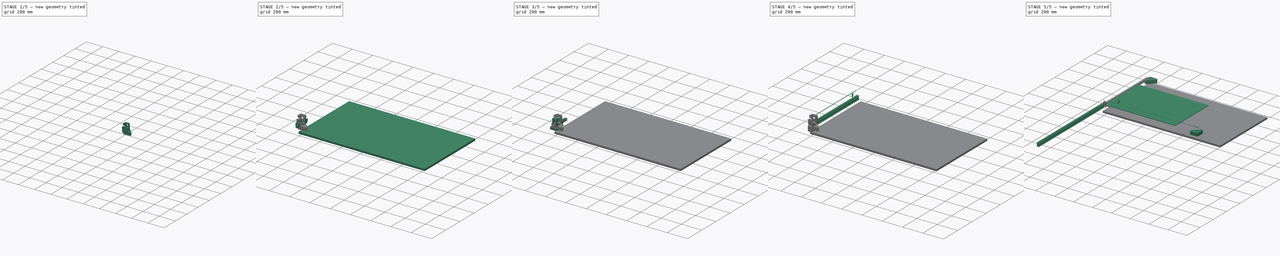
[diagram: build sequence overview — one tinted view per stage of 5, left to right]
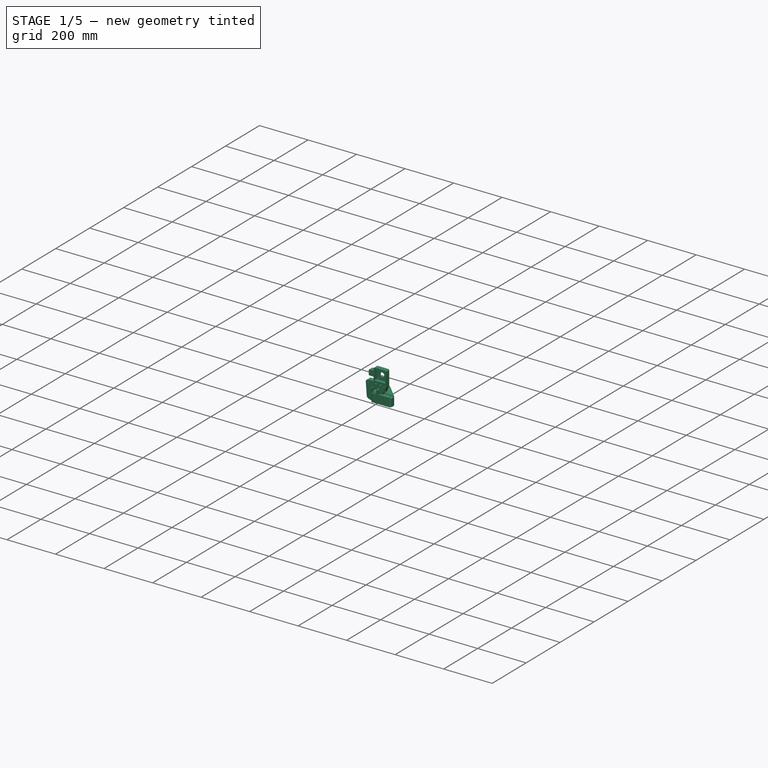
[diagram: stage 1 of 5 — iso view after this stage's code; geometry added in this stage tinted green]
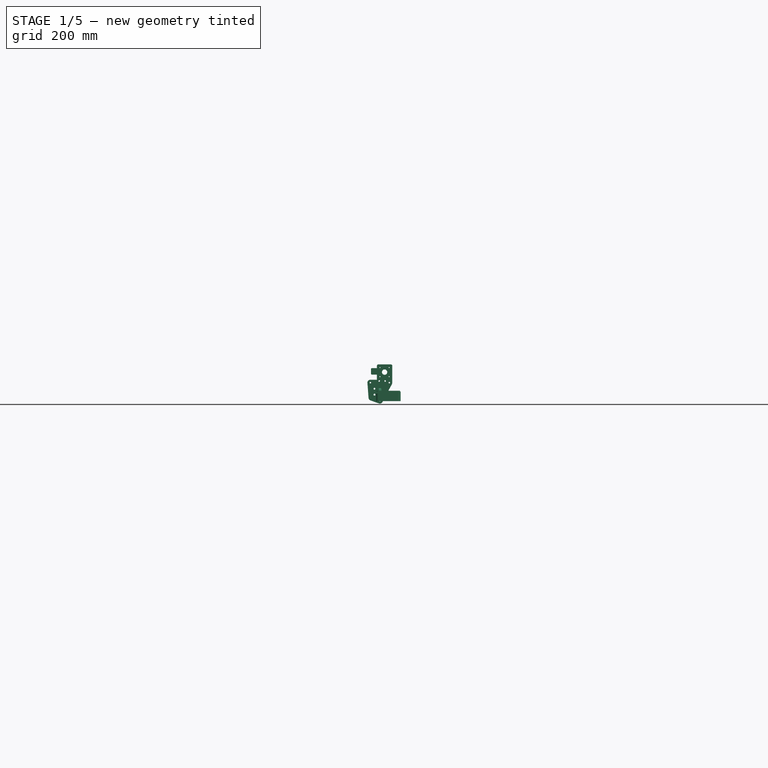
[diagram: stage 1 of 5 — front view after this stage's code; geometry added in this stage tinted green]
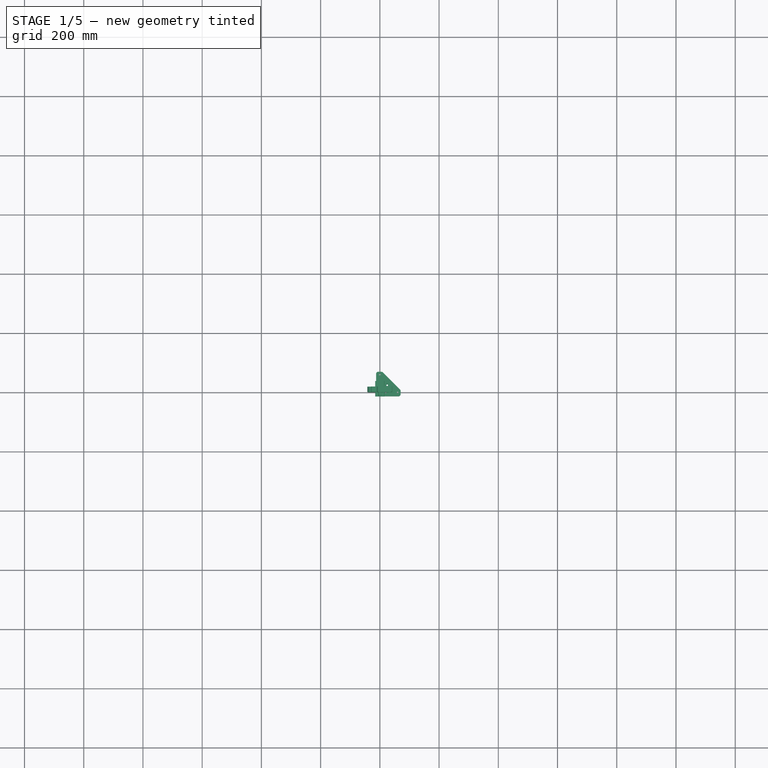
[diagram: stage 1 of 5 — top view after this stage's code; geometry added in this stage tinted green]
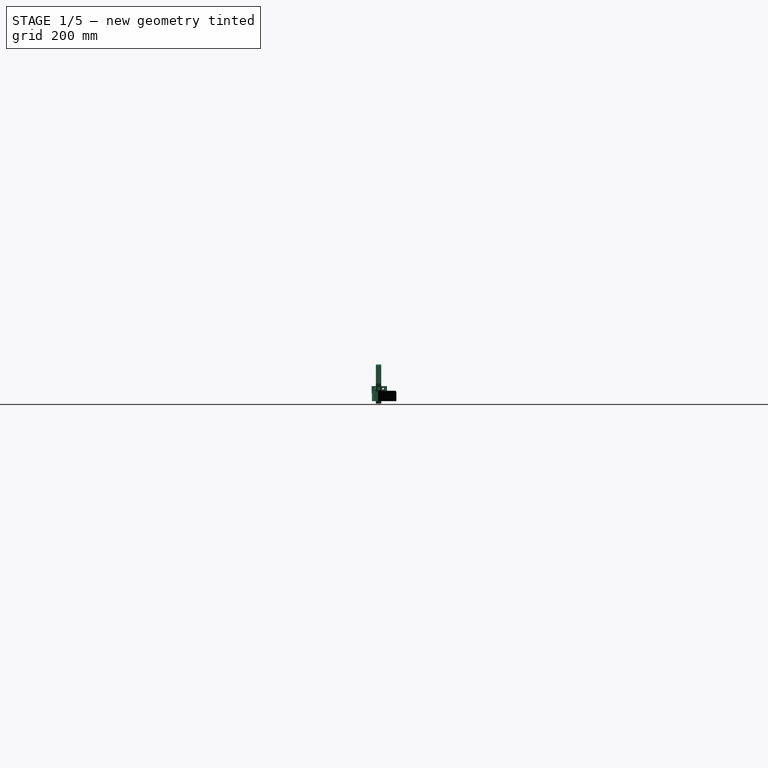
[diagram: stage 1 of 5 — right view after this stage's code; geometry added in this stage tinted green]
FCSTD DOCUMENT  (FreeCAD 0.20R25176 (Git))
Label: laser-cnc-wf
License: All rights reserved
LicenseURL: http://en.wikipedia.org/wiki/All_rights_reserved
objects: Sketcher::SketchObject×100, PartDesign::Pocket×50, App::Link×43, PartDesign::Pad×29, PartDesign::Body×28, App::Part×15, PartDesign::Revolution×13, PartDesign::Mirrored×4, Part::Extrusion×4, App::DocumentObjectGroup×4, Part::Box×3, Part::Mirroring×3, Spreadsheet::Sheet×2, PartDesign::AdditivePipe×2, PartDesign::CoordinateSystem×2, PartDesign::Plane×1, PartDesign::MultiTransform×1, PartDesign::Fillet×1, PartDesign::Groove×1, PartDesign::LinearPattern×1
note: 339 computed .brp shape members not serialized (recipe doc carries the construction recipe); baked Part::Feature solids carry a one-line shape summary decoded from their .brp

FEATURE [Sketcher::SketchObject] Sketch  label="TSlot2020Profile"
  FullyConstrained = true
  MapMode = 5
  Placement = pos=(0,0,0) rot=(1,0,0;1.5708rad)
  sketch-geometry (56):
    g0: LineSegment StartX=-10 StartY=10 StartZ=0 EndX=-3.05 EndY=10 EndZ=0
    g1: LineSegment StartX=10 StartY=10 StartZ=0 EndX=10 EndY=3.05 EndZ=0
    g2: LineSegment StartX=10 StartY=-10 StartZ=0 EndX=3.05 EndY=-10 EndZ=0
    g3: LineSegment StartX=-10 StartY=-10 StartZ=0 EndX=-10 EndY=-3.05 EndZ=0
    g4: LineSegment StartX=-3.925 StartY=2.93505 StartZ=0 EndX=-3.925 EndY=-2.93505 EndZ=0
    g5: LineSegment StartX=-10 StartY=3.05 StartZ=0 EndX=-10 EndY=10 EndZ=0
    g6: LineSegment StartX=3.925 StartY=2.93505 StartZ=0 EndX=3.925 EndY=-2.93505 EndZ=0
    g7: LineSegment StartX=2.93505 StartY=3.925 StartZ=0 EndX=-2.93505 EndY=3.925 EndZ=0
    g8: LineSegment StartX=-2.93505 StartY=-3.925 StartZ=0 EndX=2.93505 EndY=-3.925 EndZ=0
    g9: LineSegment StartX=3.05 StartY=10 StartZ=0 EndX=10 EndY=10 EndZ=0
    g10: LineSegment StartX=10 StartY=-3.05 StartZ=0 EndX=10 EndY=-10 EndZ=0
    g11: LineSegment StartX=-3.05 StartY=-10 StartZ=0 EndX=-10 EndY=-10 EndZ=0
    g12: LineSegment StartX=-3.05 StartY=10 StartZ=0 EndX=-3.05 EndY=-10 EndZ=0
    g13: LineSegment StartX=3.05 StartY=10 StartZ=0 EndX=3.05 EndY=-10 EndZ=0
    g14: LineSegment StartX=-10 StartY=3.05 StartZ=0 EndX=10 EndY=3.05 EndZ=0
    g15: LineSegment StartX=10 StartY=-3.05 StartZ=0 EndX=-10 EndY=-3.05 EndZ=0
    g16: LineSegment StartX=-3.05 StartY=10 StartZ=0 EndX=3.05 EndY=10 EndZ=0
    g17: LineSegment StartX=-10 StartY=3.05 StartZ=0 EndX=-10 EndY=-3.05 EndZ=0
    g18: LineSegment StartX=-10 StartY=3.05 StartZ=0 EndX=-8.15 EndY=3.05 EndZ=0
    g19: LineSegment StartX=-10 StartY=-3.05 StartZ=0 EndX=-8.15 EndY=-3.05 EndZ=0
    g20: LineSegment StartX=-3.05 StartY=10 StartZ=0 EndX=-3.05 EndY=8.15 EndZ=0
    g21: LineSegment StartX=3.05 StartY=10 StartZ=0 EndX=3.05 EndY=8.15 EndZ=0
    g22: LineSegment StartX=10 StartY=3.05 StartZ=0 EndX=8.15 EndY=3.05 EndZ=0
    g23: LineSegment StartX=10 StartY=-3.05 StartZ=0 EndX=8.15 EndY=-3.05 EndZ=0
    g24: LineSegment StartX=3.05 StartY=-10 StartZ=0 EndX=3.05 EndY=-8.15 EndZ=0
    g25: LineSegment StartX=-3.05 StartY=-10 StartZ=0 EndX=-3.05 EndY=-8.15 EndZ=0
    g26: LineSegment StartX=-8.15 StartY=8.15 StartZ=0 EndX=8.15 EndY=8.15 EndZ=0
    g27: LineSegment StartX=8.15 StartY=8.15 StartZ=0 EndX=8.15 EndY=-8.15 EndZ=0
    g28: LineSegment StartX=8.15 StartY=-8.15 StartZ=0 EndX=-8.15 EndY=-8.15 EndZ=0
    g29: LineSegment StartX=-8.15 StartY=-8.15 StartZ=0 EndX=-8.15 EndY=8.15 EndZ=0
    g30: LineSegment StartX=-8.15 StartY=3.05 StartZ=0 EndX=-8.15 EndY=5.53 EndZ=0
    g31: LineSegment StartX=-8.15 StartY=-3.05 StartZ=0 EndX=-8.15 EndY=-5.53 EndZ=0
    g32: LineSegment StartX=-3.05 StartY=8.15 StartZ=0 EndX=-5.53 EndY=8.15 EndZ=0
    g33: LineSegment StartX=3.05 StartY=8.15 StartZ=0 EndX=5.53 EndY=8.15 EndZ=0
    g34: LineSegment StartX=8.15 StartY=3.05 StartZ=0 EndX=8.15 EndY=5.53 EndZ=0
    g35: LineSegment StartX=8.15 StartY=-3.05 StartZ=0 EndX=8.15 EndY=-5.53 EndZ=0
    g36: LineSegment StartX=3.05 StartY=-8.15 StartZ=0 EndX=5.53 EndY=-8.15 EndZ=0
    g37: LineSegment StartX=-3.05 StartY=-8.15 StartZ=0 EndX=-5.53 EndY=-8.15 EndZ=0
    g38: LineSegment StartX=-6.51995 StartY=5.53 StartZ=0 EndX=-3.925 EndY=2.93505 EndZ=0
    g39: LineSegment StartX=-5.53 StartY=6.51995 StartZ=0 EndX=-2.93505 EndY=3.925 EndZ=0
    g40: LineSegment StartX=5.53 StartY=6.51995 StartZ=0 EndX=2.93505 EndY=3.925 EndZ=0
    g41: LineSegment StartX=3.925 StartY=2.93505 StartZ=0 EndX=6.51995 EndY=5.53 EndZ=0
    g42: LineSegment StartX=-6.51995 StartY=-5.53 StartZ=0 EndX=-3.925 EndY=-2.93505 EndZ=0
    g43: LineSegment StartX=-5.53 StartY=-6.51995 StartZ=0 EndX=-2.93505 EndY=-3.925 EndZ=0
    g44: LineSegment StartX=2.93505 StartY=-3.925 StartZ=0 EndX=5.53 EndY=-6.51995 EndZ=0
    g45: LineSegment StartX=3.925 StartY=-2.93505 StartZ=0 EndX=6.51995 EndY=-5.53 EndZ=0
    g46: LineSegment StartX=-8.15 StartY=5.53 StartZ=0 EndX=-6.51995 EndY=5.53 EndZ=0
    g47: LineSegment StartX=-5.53 StartY=8.15 StartZ=0 EndX=-5.53 EndY=6.51995 EndZ=0
    g48: LineSegment StartX=5.53 StartY=8.15 StartZ=0 EndX=5.53 EndY=6.51995 EndZ=0
    g49: LineSegment StartX=8.15 StartY=5.53 StartZ=0 EndX=6.51995 EndY=5.53 EndZ=0
    g50: LineSegment StartX=-8.15 StartY=-5.53 StartZ=0 EndX=-6.51995 EndY=-5.53 EndZ=0
    g51: LineSegment StartX=-5.53 StartY=-8.15 StartZ=0 EndX=-5.53 EndY=-6.51995 EndZ=0
    g52: LineSegment StartX=5.53 StartY=-8.15 StartZ=0 EndX=5.53 EndY=-6.51995 EndZ=0
    g53: LineSegment StartX=8.15 StartY=-5.53 StartZ=0 EndX=6.51995 EndY=-5.53 EndZ=0
    g54: LineSegment StartX=5.53 StartY=6.51995 StartZ=0 EndX=6.51995 EndY=5.53 EndZ=0
    g55: LineSegment StartX=-6.51995 StartY=5.53 StartZ=0 EndX=-5.53 EndY=6.51995 EndZ=0
  constraints (153):
    c: Coincident(g9,g1)
    c: Coincident(g10,g2)
    c: Coincident(g11,g3)
    c: Coincident(g5,g0)
    c: Horizontal(g2)
    c: Vertical(g1)
    c: Symmetric(g10,g0,g-1)
    c: DistanceX(g0,g9) = 20
    c: Vertical(g4)
    c: Tangent(g3,g5)
    c: Vertical(g6)
    c: Horizontal(g7)
    c: Horizontal(g8)
    c: Tangent(g0,g9)
    c: Tangent(g1,g10)
    c: Tangent(g2,g11)
    c: DistanceX(g0,g9) = 6.1
    c: Coincident(g12,g0)
    c: Coincident(g13,g2)
    c: Vertical(g13)
    c: Vertical(g12)
    c: Coincident(g14,g1)
    c: Horizontal(g14)
    c: Coincident(g15,g3)
    c: Horizontal(g15)
    c: Symmetric(g0,g9,g-2)
    c: Symmetric(g5,g3,g-1)
    c: Coincident(g16,g0)
    c: Coincident(g17,g3)
    c: Equal(g17,g16)
    c: Coincident(g18,g5)
    c: PointOnObject(g18,g14)
    c: Coincident(g19,g3)
    c: PointOnObject(g19,g15)
    c: Coincident(g20,g0)
    c: PointOnObject(g20,g12)
    c: Coincident(g21,g13)
    c: PointOnObject(g21,g13)
    c: Coincident(g22,g1)
    c: PointOnObject(g22,g14)
    c: Coincident(g23,g10)
    c: PointOnObject(g23,g15)
    c: Coincident(g24,g2)
    c: PointOnObject(g24,g13)
    c: Coincident(g25,g11)
    c: PointOnObject(g25,g12)
    c: Coincident(g26,g27)
    c: Coincident(g27,g28)
    c: Coincident(g28,g29)
    c: Coincident(g29,g26)
    c: Horizontal(g26)
    c: Horizontal(g28)
    c: Vertical(g27)
    c: Vertical(g29)
    c: Symmetric(g27,g26,g-1)
    c: Equal(g26,g29)
    c: PointOnObject(g20,g26)
    c: PointOnObject(g21,g26)
    c: DistanceY(g20,g20) = 1.85
    c: PointOnObject(g22,g27)
    c: PointOnObject(g23,g27)
    c: PointOnObject(g24,g28)
    c: PointOnObject(g25,g28)
    c: PointOnObject(g19,g29)
    c: PointOnObject(g18,g29)
    c: Coincident(g30,g18)
    c: PointOnObject(g30,g29)
    c: Coincident(g31,g19)
    c: PointOnObject(g31,g29)
    c: DistanceY(g31,g30) = 11.06
    c: Equal(g30,g31)
    c: Coincident(g32,g20)
    c: PointOnObject(g32,g26)
    c: Coincident(g33,g21)
    c: PointOnObject(g33,g26)
    c: Coincident(g34,g22)
    c: PointOnObject(g34,g27)
    c: Coincident(g35,g23)
    c: PointOnObject(g35,g27)
    c: Coincident(g36,g24)
    c: PointOnObject(g36,g28)
    c: Coincident(g37,g25)
    c: PointOnObject(g37,g28)
    c: Equal(g37,g36)
    c: Equal(g36,g35)
    c: Equal(g35,g34)
    c: Equal(g34,g33)
    c: Equal(g33,g32)
    c: Equal(g32,g30)
    c: Angle(g-1,g40) = 0.785398
    c: Parallel(g41,g40)
    c: Perpendicular(g40,g39)
    c: Parallel(g38,g39)
    c: PointOnObject(g45,g39)
    c: PointOnObject(g45,g39)
    c: PointOnObject(g44,g38)
    c: PointOnObject(g44,g38)
    c: PointOnObject(g42,g40)
    c: PointOnObject(g42,g40)
    c: PointOnObject(g43,g41)
    c: PointOnObject(g43,g41)
    c: Coincident(g46,g30)
    c: Coincident(g46,g38)
    c: Horizontal(g46)
    c: Coincident(g47,g32)
    c: Vertical(g47)
    c: Coincident(g39,g47)
    c: Coincident(g48,g33)
    c: Vertical(g48)
    c: Coincident(g49,g34)
    c: Horizontal(g49)
    c: Coincident(g41,g49)
    c: Coincident(g48,g40)
    c: Coincident(g50,g31)
    c: Horizontal(g50)
    c: Coincident(g51,g37)
    c: Coincident(g51,g43)
    c: Vertical(g51)
    c: Coincident(g52,g36)
    c: Vertical(g52)
    c: Coincident(g53,g35)
    c: Horizontal(g53)
    c: Coincident(g45,g53)
    c: Coincident(g44,g52)
    c: Coincident(g50,g42)
    c: Coincident(g54,g40)
    c: Coincident(g54,g41)
    c: Perpendicular(g40,g54)
    c: Distance(g54) = 1.4
    c: Coincident(g55,g38)
    c: Coincident(g55,g39)
    c: Perpendicular(g38,g55)
    c: Equal(g55,g54)
    c: Coincident(g41,g6)
    c: Coincident(g40,g7)
    c: Coincident(g7,g39)
    c: Coincident(g38,g4)
    c: Coincident(g4,g42)
    c: Coincident(g43,g8)
    c: Coincident(g8,g44)
    c: Coincident(g45,g6)
    c: Equal(g6,g7)
    c: Equal(g7,g4)
    c: Equal(g4,g8)
    c: DistanceY(g8,g7) = 7.85
    c: Equal(g46,g47)
    c: Horizontal(g16)
    c: Equal(g0,g5)
    c: Coincident(g21,g9)
    c: Coincident(g14,g5)
    c: Coincident(g15,g10)
    c: Coincident(g17,g5)
    c: Coincident(g12,g11)
FEATURE [Spreadsheet::Sheet] Spreadsheet
  cells = A1=Value; B1=Name; A2(XRailZClearance)==32mm; B2=Clearance Below X Rail Edge; A3(WorkClearanceY)==79mm; B3=Clearance Between X Rail Edge and Work Area Edge; A4(WorkAreaExtentY)==508mm; B4=Work Area Y Extent; C4=700 makes best use of extrusion, 508 is the size of the mdf I have; A5(WorkAreaExtentX)==800mm; B5=Work Area X Extent; A6(XRailBearingSpacing)==64mm; B6=X Rail Bearing Spacing; A7(VBearingOffset)==10.35mm; B7=V Slot Bearing Offset (the distance to offset the center of the bearing from the edge of the extrusion); A8(WorkClearanceX0)==110mm; B8=Clearance between Left Y frame inner edge and Work Area Edge; A9(WorkClearanceX1)==50mm; B9=Clearance between Right Y frame inner edge and Work Area Edge
FEATURE [Sketcher::SketchObject] Sketch002  label="BearingProfile"
  FullyConstrained = true
  MapMode = 5
  Placement = pos=(0,0,0) rot=(1,0,0;1.5708rad)
  Support = -> [XZ_Plane001]
  sketch-geometry (9):
    g0: LineSegment StartX=-5.085 StartY=9.91981 StartZ=0 EndX=-5.085 EndY=2.5 EndZ=0
    g1: LineSegment StartX=5.085 StartY=9.91981 StartZ=0 EndX=5.085 EndY=2.5 EndZ=0
    g2: LineSegment StartX=-5.085 StartY=2.5 StartZ=0 EndX=5.085 EndY=2.5 EndZ=0
    g3: LineSegment StartX=-2.98481 StartY=12.02 StartZ=0 EndX=2.98481 EndY=12.02 EndZ=0
    g4: LineSegment StartX=-5.085 StartY=9.91981 StartZ=0 EndX=-2.98481 EndY=12.02 EndZ=0
    g5: LineSegment StartX=2.98481 StartY=12.02 StartZ=0 EndX=5.085 EndY=9.91981 EndZ=0
    g6: GeomPoint X=-7.5024 Y=7.5024 Z=0
    g7: GeomPoint X=7.5024 Y=-7.5024 Z=0
    g8: LineSegment StartX=-7.5024 StartY=7.5024 StartZ=0 EndX=7.5024 EndY=-7.5024 EndZ=0
  constraints (23):
    c: Vertical(g0)
    c: Vertical(g1)
    c: Symmetric(g0,g1,g-2)
    c: DistanceX(g0,g1) = 10.17  'Width'
    c: DistanceY(g-1,g0) = 2.5
    c: Coincident(g2,g0)
    c: Coincident(g2,g1)
    c: Horizontal(g2)
    c: Horizontal(g3)
    c: DistanceY(g3) = 12.02
    c: Coincident(g4,g0)
    c: Coincident(g4,g3)
    c: Coincident(g5,g3)
    c: Coincident(g5,g1)
    c: Angle(g5,g-1) = 0.785398
    c: Perpendicular(g5,g4)
    c: DistanceY(g0) = 9.91981
    c: PointOnObject(g6,g4)
    c: Symmetric(g7,g6,g-1)
    c: Coincident(g8,g6)
    c: Coincident(g8,g7)
    c: Perpendicular(g4,g8)
    c: Distance(g8) = 21.22
FEATURE [PartDesign::Revolution] Revolution
  Angle = 360
  Axis = (1,0,0)
  Base = (0,0,0)
  Placement = pos=(0,0,0) rot=(1,0,0;1.5708rad)
  Profile = -> Sketch002
  ReferenceAxis = -> Sketch002 [H_Axis]
FEATURE [PartDesign::Body] Body  label="VSlotBearing"
  Group = -> [Sketch002,Revolution]
  Origin = -> Origin001
  Tip = -> Revolution
FEATURE [App::Link] Link  label="XRail0"
  LinkPlacement = pos=(0,0,0) rot=(0,0,1;1.5708rad)
  LinkedObject = -> Extrude
  Placement = pos=(0,0,0) rot=(0,0,1;1.5708rad)
FEATURE [App::Link] Link001  label="XRail1"
  LinkPlacement = pos=(0,686,0) rot=(0,0,1;1.5708rad)
  LinkedObject = -> Extrude
  Placement = pos=(0,686,0) rot=(0,0,1;1.5708rad)
  expr: .Placement.Rotation.Angle = 90
  expr: .Placement.Base.y = 20mm + Spreadsheet.WorkClearanceY * 2 + Spreadsheet.WorkAreaExtentY
FEATURE [App::Link] Link002  label="YRail0"
  LinkPlacement = pos=(0,1,0) rot=(0,0,1;0rad)
  LinkedObject = -> Extrude002
  Placement = pos=(0,1,0) rot=(0,0,1;0rad)
FEATURE [Sketcher::SketchObject] Sketch003  label="BlockProfile"
  AttachmentOffset = pos=(0,0,-1) rot=(0,0,1;0rad)
  FullyConstrained = true
  MapMode = 5
  Placement = pos=(0,1,2e-16) rot=(1,0,0;1.5708rad)
  Support = -> [XZ_Plane008]
  expr: Constraints[2] = Spreadsheet.XRailBearingSpacing
  expr: .Constraints.BottomBearingOffset = Spreadsheet.VBearingOffset + 20mm
  expr: .Constraints.TopBearingOffset = Spreadsheet.VBearingOffset + 20mm
  expr: Constraints[38] = <<StepperBodyShape>>.Constraints.Width
  sketch-geometry (35):
    g0: GeomPoint X=-32 Y=30.35 Z=0
    g1: GeomPoint X=32 Y=30.35 Z=0
    g2: GeomPoint X=0 Y=-30.35 Z=0
    g3: ArcOfCircle CenterX=-32 CenterY=30.35 CenterZ=0 NormalX=0 NormalY=0 NormalZ=1 AngleXU=0 Radius=10 StartAngle=1.5708 EndAngle=3.21662
    g4: ArcOfCircle CenterX=32 CenterY=30.35 CenterZ=0 NormalX=0 NormalY=0 NormalZ=1 AngleXU=0 Radius=10 StartAngle=5.79803 EndAngle=6.28319
    g5: ArcOfCircle CenterX=0 CenterY=-30.35 CenterZ=0 NormalX=0 NormalY=0 NormalZ=1 AngleXU=0 Radius=10 StartAngle=4.3669 EndAngle=5.79803
    g6: LineSegment StartX=40.846 StartY=25.6865 StartZ=0 EndX=8.84602 EndY=-35.0135 EndZ=0
    g7: LineSegment StartX=-5 StartY=92 StartZ=0 EndX=37 EndY=92 EndZ=0
    g8: LineSegment StartX=42 StartY=87 StartZ=0 EndX=42 EndY=40.35 EndZ=0
    g9: LineSegment StartX=-32 StartY=40.35 StartZ=0 EndX=-10 EndY=40.35 EndZ=0
    g10: ArcOfCircle CenterX=-5 CenterY=87 CenterZ=0 NormalX=0 NormalY=0 NormalZ=1 AngleXU=0 Radius=5 StartAngle=1.5708 EndAngle=3.14159
    g11: ArcOfCircle CenterX=37 CenterY=87 CenterZ=0 NormalX=0 NormalY=0 NormalZ=1 AngleXU=0 Radius=5 StartAngle=0 EndAngle=1.5708
    g12: Circle CenterX=16 CenterY=66 CenterZ=0 NormalX=0 NormalY=0 NormalZ=1 AngleXU=0 Radius=9
    g13: Circle CenterX=-18 CenterY=10 CenterZ=0 NormalX=0 NormalY=0 NormalZ=1 AngleXU=0 Radius=3.125
    g14: Circle CenterX=-18 CenterY=-10 CenterZ=0 NormalX=0 NormalY=0 NormalZ=1 AngleXU=0 Radius=3.125
    g15: LineSegment StartX=16 StartY=87 StartZ=0 EndX=16 EndY=45 EndZ=0
    g16: LineSegment StartX=42 StartY=30.35 StartZ=0 EndX=42 EndY=40.35 EndZ=0
    g17: LineSegment StartX=-28.2 StartY=20.2 StartZ=0 EndX=-7.8 EndY=20.2 EndZ=0
    g18: LineSegment StartX=-7.8 StartY=20.2 StartZ=0 EndX=-7.8 EndY=-20.2 EndZ=0
    g19: LineSegment StartX=-7.8 StartY=-20.2 StartZ=0 EndX=-28.2 EndY=-20.2 EndZ=0
    g20: LineSegment StartX=-28.2 StartY=-20.2 StartZ=0 EndX=-28.2 EndY=20.2 EndZ=0
    g21: LineSegment StartX=-41.9719 StartY=29.6004 StartZ=0 EndX=-38.1719 EndY=-20.9496 EndZ=0
    g22: LineSegment StartX=-31.5866 StartY=-29.6091 StartZ=0 EndX=-3.3866 EndY=-39.7591 EndZ=0
    g23: ArcOfCircle CenterX=-28.2 CenterY=-20.2 CenterZ=0 NormalX=0 NormalY=0 NormalZ=1 AngleXU=0 Radius=10 StartAngle=3.21662 EndAngle=4.3669
    g24: GeomPoint X=-18 Y=-1e-16 Z=0
    g25: LineSegment StartX=-10 StartY=79.35 StartZ=0 EndX=-10 EndY=87 EndZ=0
    g26: LineSegment StartX=-10 StartY=40.35 StartZ=0 EndX=-10 EndY=57.35 EndZ=0
    g27: LineSegment StartX=-10 StartY=57.35 StartZ=0 EndX=-10 EndY=79.35 EndZ=0
    g28: LineSegment StartX=-10 StartY=79.35 StartZ=0 EndX=-27 EndY=79.35 EndZ=0
    g29: LineSegment StartX=-10 StartY=57.35 StartZ=0 EndX=-27 EndY=57.35 EndZ=0
    g30: LineSegment StartX=-30 StartY=76.35 StartZ=0 EndX=-30 EndY=60.35 EndZ=0
    g31: ArcOfCircle CenterX=-27 CenterY=76.35 CenterZ=0 NormalX=0 NormalY=0 NormalZ=1 AngleXU=0 Radius=3 StartAngle=1.5708 EndAngle=3.14159
    g32: ArcOfCircle CenterX=-27 CenterY=60.35 CenterZ=0 NormalX=0 NormalY=0 NormalZ=1 AngleXU=0 Radius=3 StartAngle=3.14159 EndAngle=4.71239
    g33: GeomPoint X=-30 Y=79.35 Z=0
    g34: GeomPoint X=-20 Y=68.35 Z=0
  constraints (81):
    c: PointOnObject(g2,g-2)
    c: Symmetric(g0,g1,g-2)
    c: DistanceX(g0,g1) = 64
    c: DistanceY(g0) = 30.35  'TopBearingOffset'
    c: DistanceY(g2,g-1) = 30.35  'BottomBearingOffset'
    c: Coincident(g3,g0)
    c: Coincident(g4,g1)
    c: Coincident(g5,g2)
    c: Equal(g5,g4)
    c: Equal(g4,g3)
    c: Radius(g3) = 10
    c: Tangent(g21,g3) = -1.5708
    c: Tangent(g6,g4) = 1.5708
    c: Tangent(g6,g5) = 1.5708
    c: Tangent(g22,g5) = -1.5708
    c: Vertical(g8)
    c: Horizontal(g9)
    c: Coincident(g9,g26)
    c: Tangent(g9,g3) = 1.5708
    c: DistanceX(g26,g8) = 52
    c: Tangent(g7,g10) = 1.5708
    c: Tangent(g7,g11) = 1.5708
    c: Tangent(g8,g11) = 1.5708
    c: Equal(g11,g10)
    c: Horizontal(g7)
    c: Radius(g10) = 5
    c: Radius(g12) = 9
    c: DistanceY(g12,g7) = 26
    c: DistanceY(g12) = 66  'StepperAxleHeight'
    c: Diameter(g14) = 6.25
    c: Equal(g14,g13)
    c: Symmetric(g13,g14,g-1)
    c: DistanceY(g14,g13) = 20
    c: Vertical(g15)
    c: Symmetric(g26,g8,g15)
    c: Tangent(g16,g4) = -1.5708
    c: Coincident(g8,g16)
    c: Vertical(g16)
    c: DistanceY(g15,g15) = 42
    c: Symmetric(g15,g15,g12)
    c: DistanceX(g-1,g15) = 16  'StepperAxleOffset'
    c: Coincident(g17,g18)
    c: Coincident(g18,g19)
    c: Coincident(g19,g20)
    c: Coincident(g20,g17)
    c: Horizontal(g17)
    c: Horizontal(g19)
    c: Vertical(g18)
    c: Vertical(g20)
    c: DistanceY(g20,g20) = 40.4
    c: DistanceX(g17,g17) = 20.4
    c: Tangent(g21,g23) = -1.5708
    c: Tangent(g22,g23) = -1.5708
    c: Equal(g3,g23)
    c: Coincident(g23,g19)
    c: Symmetric(g13,g14,g24)
    c: Symmetric(g18,g17,g24)
    c: DistanceX(g14,g5) = 18  'YRailOffset'
    c: Tangent(g10,g25) = 1.5708
    c: Coincident(g27,g25)
    c: Vertical(g25)
    c: Coincident(g26,g27)
    c: Vertical(g26)
    c: Vertical(g27)
    c: Coincident(g28,g25)
    c: Horizontal(g28)
    c: Coincident(g29,g26)
    c: Horizontal(g29)
    c: Vertical(g30)
    c: Tangent(g30,g31) = -1.5708
    c: Tangent(g28,g31) = -1.5708
    c: Tangent(g30,g32) = -1.5708
    c: Tangent(g29,g32) = 1.5708
    c: Radius(g31) = 3
    c: DistanceY(g26,g25) = 22
    c: DistanceX(g30,g26) = 20
    c: PointOnObject(g33,g28)
    c: PointOnObject(g33,g30)
    c: Symmetric(g33,g26,g34)
    c: DistanceY(g34) = 68.35
    c: Equal(g32,g31)
FEATURE [PartDesign::Pad] Pad  label="XBearingBlockPad"
  Direction = (0,-1,-2e-16)
  Length = 18
  Length2 = 100
  Placement = pos=(0,0,0) rot=(1,0,0;1.5708rad)
  Profile = -> Sketch003
  Reversed = true
  Type = 0
FEATURE [Sketcher::SketchObject] Sketch004  label="BearingSpacerProfile"
  FullyConstrained = true
  MapMode = 5
  Placement = pos=(0,0,0) rot=(1,0,0;1.5708rad)
  Support = -> [XZ_Plane008]
  expr: Constraints[4] = Spreadsheet.XRailBearingSpacing
  expr: Constraints[5] = Spreadsheet.VBearingOffset + 20mm
  expr: Constraints[6] = Spreadsheet.VBearingOffset + 20mm
  sketch-geometry (3):
    g0: Circle CenterX=-32 CenterY=30.35 CenterZ=0 NormalX=0 NormalY=0 NormalZ=1 AngleXU=0 Radius=4.35
    g1: Circle CenterX=32 CenterY=30.35 CenterZ=0 NormalX=0 NormalY=0 NormalZ=1 AngleXU=0 Radius=4.35
    g2: Circle CenterX=0 CenterY=-30.35 CenterZ=0 NormalX=0 NormalY=0 NormalZ=1 AngleXU=0 Radius=4.35
  constraints (8):
    c: Radius(g0) = 4.35
    c: Equal(g0,g2)
    c: Equal(g2,g1)
    c: Symmetric(g0,g1,g-2)
    c: DistanceX(g0,g1) = 64
    c: DistanceY(g-1,g0) = 30.35
    c: DistanceY(g2,g-1) = 30.35
    c: PointOnObject(g2,g-2)
FEATURE [Sketcher::SketchObject] Sketch005  label="BearingBoltHoleProfile"
  ExternalGeometry = -> [Sketch004]
  FullyConstrained = true
  MapMode = 5
  Placement = pos=(0,0,0) rot=(1,0,0;1.5708rad)
  Support = -> [XZ_Plane008]
  sketch-geometry (3):
    g0: Circle CenterX=-32 CenterY=30.35 CenterZ=0 NormalX=0 NormalY=0 NormalZ=1 AngleXU=0 Radius=2.5
    g1: Circle CenterX=32 CenterY=30.35 CenterZ=0 NormalX=0 NormalY=0 NormalZ=1 AngleXU=0 Radius=2.5
    g2: Circle CenterX=0 CenterY=-30.35 CenterZ=0 NormalX=0 NormalY=0 NormalZ=1 AngleXU=0 Radius=2.5
  constraints (6):
    c: Equal(g0,g1)
    c: Equal(g1,g2)
    c: Radius(g0) = 2.5
    c: Coincident(g0,g-3)
    c: Coincident(g1,g-4)
    c: Coincident(g2,g-5)
FEATURE [PartDesign::Pocket] Pocket  label="BearingBoltPocket"
  BaseFeature = -> Pad
  Length = 5
  Length2 = 100
  Midplane = true
  Placement = pos=(0,0,0) rot=(1,0,0;1.5708rad)
  Profile = -> Sketch005
  Type = 1
FEATURE [Sketcher::SketchObject] Sketch013  label="BraceProfile001"
  FullyConstrained = true
  MapMode = 5
  Support = -> [XY_Plane012]
  sketch-geometry (25):
    g0: LineSegment StartX=70 StartY=-5.5 StartZ=0 EndX=70 EndY=5.5 EndZ=0
    g1: LineSegment StartX=67.9497 StartY=10.4497 StartZ=0 EndX=10.4497 EndY=67.9497 EndZ=0
    g2: LineSegment StartX=5.5 StartY=70 StartZ=0 EndX=-5.5 EndY=70 EndZ=0
    g3: Circle CenterX=20 CenterY=0 CenterZ=0 NormalX=0 NormalY=0 NormalZ=1 AngleXU=0 Radius=2.62
    g4: Circle CenterX=60 CenterY=0 CenterZ=0 NormalX=0 NormalY=0 NormalZ=1 AngleXU=0 Radius=2.62
    g5: Circle CenterX=0 CenterY=0 CenterZ=0 NormalX=0 NormalY=0 NormalZ=1 AngleXU=0 Radius=2.62
    g6: Circle CenterX=0 CenterY=60 CenterZ=0 NormalX=0 NormalY=0 NormalZ=1 AngleXU=0 Radius=2.62
    g7: LineSegment StartX=10 StartY=100 StartZ=0 EndX=10 EndY=-10 EndZ=0
    g8: LineSegment StartX=10 StartY=-10 StartZ=0 EndX=-10 EndY=-10 EndZ=0
    g9: LineSegment StartX=-10 StartY=-10 StartZ=0 EndX=-10 EndY=100 EndZ=0
    g10: LineSegment StartX=10 StartY=10 StartZ=0 EndX=160 EndY=10 EndZ=0
    g11: LineSegment StartX=160 StartY=-10 StartZ=0 EndX=10 EndY=-10 EndZ=0
    g12: LineSegment StartX=10 StartY=-10 StartZ=0 EndX=10 EndY=10 EndZ=0
    g13: ArcOfCircle CenterX=-5.5 CenterY=-5.5 CenterZ=0 NormalX=0 NormalY=0 NormalZ=1 AngleXU=0 Radius=7 StartAngle=3.14159 EndAngle=4.71239
    g14: ArcOfCircle CenterX=-5.5 CenterY=63 CenterZ=0 NormalX=0 NormalY=0 NormalZ=1 AngleXU=0 Radius=7 StartAngle=1.5708 EndAngle=3.14159
    g15: ArcOfCircle CenterX=5.5 CenterY=63 CenterZ=0 NormalX=0 NormalY=0 NormalZ=1 AngleXU=0 Radius=7 StartAngle=0.785398 EndAngle=1.5708
    g16: ArcOfCircle CenterX=63 CenterY=5.5 CenterZ=0 NormalX=0 NormalY=0 NormalZ=1 AngleXU=0 Radius=7 StartAngle=0 EndAngle=0.785398
    g17: ArcOfCircle CenterX=63 CenterY=-5.5 CenterZ=0 NormalX=0 NormalY=0 NormalZ=1 AngleXU=0 Radius=7 StartAngle=4.71239 EndAngle=6.28319
    g18: LineSegment StartX=-12.5 StartY=-5.5 StartZ=0 EndX=-12.5 EndY=63 EndZ=0
    g19: LineSegment StartX=-5.5 StartY=-12.5 StartZ=0 EndX=63 EndY=-12.5 EndZ=0
    g20: Circle CenterX=0 CenterY=20 CenterZ=0 NormalX=0 NormalY=0 NormalZ=1 AngleXU=0 Radius=2.62
    g21: LineSegment StartX=0 StartY=0 StartZ=0 EndX=20 EndY=0 EndZ=0
    g22: LineSegment StartX=0 StartY=0 StartZ=0 EndX=0 EndY=20 EndZ=0
    g23: Circle CenterX=24.7487 CenterY=24.7487 CenterZ=0 NormalX=0 NormalY=0 NormalZ=1 AngleXU=0 Radius=2.65
    g24: LineSegment StartX=0 StartY=0 StartZ=0 EndX=24.7487 EndY=24.7487 EndZ=0
  constraints (65):
    c: Vertical(g0)
    c: Horizontal(g2)
    c: PointOnObject(g3,g-1)
    c: PointOnObject(g4,g-1)
    c: PointOnObject(g5,g-2)
    c: PointOnObject(g6,g-2)
    c: Equal(g6,g5)
    c: Equal(g5,g3)
    c: Equal(g3,g4)
    c: Distance(g3,g4) = 40
    c: Distance(g5,g6) = 60
    c: Coincident(g7,g8)
    c: Coincident(g8,g9)
    c: Vertical(g7)
    c: Vertical(g9)
    c: DistanceY(g8,g-1) = 10
    c: DistanceX(g8,g8) = 20
    c: Symmetric(g8,g7,g-2)
    c: DistanceY(g9,g9) = 110
    c: Equal(g7,g9)
    c: Coincident(g11,g12)
    c: Coincident(g12,g10)
    c: Horizontal(g10)
    c: Horizontal(g11)
    c: Vertical(g12)
    c: PointOnObject(g11,g8)
    c: DistanceX(g11,g11) = 150
    c: Equal(g11,g10)
    c: Symmetric(g10,g7,g-1)
    c: DistanceX(g-1,g3) = 20
    c: DistanceY(g-1,g5) = 0
    c: Tangent(g2,g14) = -1.5708
    c: Tangent(g2,g15) = -1.5708
    c: Tangent(g1,g15) = -1.5708
    c: Tangent(g1,g16) = -1.5708
    c: Tangent(g0,g16) = -1.5708
    c: Tangent(g0,g17) = -1.5708
    c: Equal(g16,g13)
    c: Equal(g13,g14)
    c: Radius(g14) = 7
    c: DistanceY(g6,g2) = 10
    c: DistanceX(g4,g0) = 10
    c: Symmetric(g15,g14,g-2)
    c: Symmetric(g16,g17,g-1)
    c: Diameter(g5) = 5.24
    c: Vertical(g18)
    c: DistanceX(g13,g8) = 2.5
    c: Tangent(g18,g13) = 1.5708
    c: Tangent(g18,g14) = 1.5708
    c: Horizontal(g19)
    c: Tangent(g19,g17) = -1.5708
    c: Tangent(g19,g13) = -1.5708
    c: DistanceY(g13,g8) = 2.5
    c: PointOnObject(g20,g-2)
    c: Equal(g20,g5)
    c: Coincident(g21,g5)
    c: Coincident(g21,g3)
    c: Coincident(g22,g5)
    c: Coincident(g22,g20)
    c: Equal(g22,g21)
    c: Diameter(g23) = 5.3
    c: Coincident(g24,g5)
    c: Coincident(g24,g23)
    c: PointOnObject(g10,g24)
    c: Distance(g24) = 35
FEATURE [PartDesign::Pad] Pad006
  Direction = (0,0,1)
  Length = 32
  Length2 = 3
  Profile = -> Sketch013
  Reversed = true
  Type = 4
  expr: Length = Spreadsheet.XRailZClearance
FEATURE [App::Link] Link010  label="Foot0"
  LinkPlacement = pos=(10,0,0) rot=(0,0,1;0rad)
  LinkedObject = -> Body007
  Placement = pos=(10,0,0) rot=(0,0,1;0rad)
FEATURE [Sketcher::SketchObject] Sketch014  label="CounterSinkHolesBottom"
  AttachmentOffset = pos=(0,0,-32) rot=(0,0,1;0rad)
  ExternalGeometry = -> [Sketch013]
  FullyConstrained = true
  MapMode = 5
  Placement = pos=(0,0,-32) rot=(0,0,1;0rad)
  Support = -> [XY_Plane012]
  expr: .AttachmentOffset.Base.z = -Spreadsheet.XRailZClearance
  sketch-geometry (5):
    g0: Circle CenterX=0 CenterY=60 CenterZ=0 NormalX=0 NormalY=0 NormalZ=1 AngleXU=0 Radius=4.75
    g1: Circle CenterX=0 CenterY=0 CenterZ=0 NormalX=0 NormalY=0 NormalZ=1 AngleXU=0 Radius=4.75
    g2: Circle CenterX=20 CenterY=0 CenterZ=0 NormalX=0 NormalY=0 NormalZ=1 AngleXU=0 Radius=4.75
    g3: Circle CenterX=60 CenterY=0 CenterZ=0 NormalX=0 NormalY=0 NormalZ=1 AngleXU=0 Radius=4.75
    g4: Circle CenterX=0 CenterY=20 CenterZ=0 NormalX=0 NormalY=0 NormalZ=1 AngleXU=0 Radius=4.75
  constraints (10):
    c: Coincident(g0,g-4)
    c: Coincident(g1,g-3)
    c: Coincident(g2,g-5)
    c: Coincident(g3,g-6)
    c: Equal(g3,g2)
    c: Equal(g2,g1)
    c: Equal(g1,g0)
    c: Diameter(g0) = 9.5
    c: Coincident(g4,g-7)
    c: Equal(g4,g0)
FEATURE [PartDesign::Pocket] Pocket004
  BaseFeature = -> Pad006
  Length = 17
  Length2 = 100
  Profile = -> Sketch014
  Reversed = true
  Type = 0
FEATURE [PartDesign::Body] Body008  label="BoltM5_20"
  Group = -> [Sketch015,Revolution001]
  Origin = -> Origin014
  Tip = -> Revolution001
FEATURE [Sketcher::SketchObject] Sketch016  label="BraceProfile002"
  FullyConstrained = true
  MapMode = 5
  Support = -> [XY_Plane012]
  sketch-geometry (6):
    g0: LineSegment StartX=10 StartY=100 StartZ=0 EndX=10 EndY=10 EndZ=0
    g1: LineSegment StartX=-10 StartY=-10 StartZ=0 EndX=-10 EndY=100 EndZ=0
    g2: LineSegment StartX=10 StartY=10 StartZ=0 EndX=140 EndY=10 EndZ=0
    g3: LineSegment StartX=-10 StartY=100 StartZ=0 EndX=10 EndY=100 EndZ=0
    g4: LineSegment StartX=140 StartY=10 StartZ=0 EndX=140 EndY=-10 EndZ=0
    g5: LineSegment StartX=-10 StartY=-10 StartZ=0 EndX=140 EndY=-10 EndZ=0
  constraints (17):
    c: Vertical(g0)
    c: Vertical(g1)
    c: DistanceY(g1,g1) = 110
    c: Horizontal(g2)
    c: Horizontal(g3)
    c: Vertical(g4)
    c: Coincident(g5,g1)
    c: Coincident(g5,g4)
    c: Horizontal(g5)
    c: DistanceX(g3,g3) = 20
    c: Coincident(g0,g3)
    c: Coincident(g0,g2)
    c: DistanceY(g4,g4) = 20
    c: Coincident(g2,g4)
    c: Coincident(g3,g1)
    c: Symmetric(g1,g0,g-1)
    c: DistanceX(g5,g5) = 150
FEATURE [PartDesign::Pocket] Pocket005
  BaseFeature = -> Pocket004
  Length = 5
  Length2 = 100
  Profile = -> Sketch016
  Reversed = true
  Type = 1
FEATURE [App::Link] Link038  label="ZRail001"
  LinkPlacement = pos=(0,-37,22) rot=(0,0,1;0rad)
  LinkedObject = -> Extrude004
  Placement = pos=(0,-37,22) rot=(0,0,1;0rad)
FEATURE [App::Link] Link039  label="GT2Pulley5mm002"
  LinkPlacement = pos=(0,0,15) rot=(0,0,1;0rad)
  LinkedObject = -> Body010
  Placement = pos=(0,0,15) rot=(0,0,1;0rad)
FEATURE [App::Part] Part012  label="YStepper"
  Group = -> [Link032,Link039]
  Origin = -> Origin036
  Placement = pos=(0,40,-17) rot=(0,0,1;0rad)
  expr: .Placement.Base.y = Sketch065.Constraints.StepperAxleHeight
FEATURE [PartDesign::CoordinateSystem] Local_CS  label="StepperCoords"
  AttacherType = Attacher::AttachEngine3D
  AttachmentOffset = pos=(16,66,-18) rot=(0,1,0;3.14159rad)
  MapMode = 2
  Placement = pos=(16,19,66) rot=(0,0.707107,0.707107;3.14159rad)
  Support = -> [Sketch003]
  expr: .AttachmentOffset.Base.x = Sketch003.Constraints.StepperAxleOffset
  expr: .AttachmentOffset.Base.y = Sketch003.Constraints.StepperAxleHeight
  expr: .AttachmentOffset.Base.z = -<<XBearingBlockPad>>.Length
FEATURE [Sketcher::SketchObject] Sketch024  label="StepperHole"
  AttachmentOffset = pos=(0,0,-5) rot=(0,0,1;0rad)
  FullyConstrained = true
  MapMode = 5
  Placement = pos=(16,14,66) rot=(0,0.707107,0.707107;3.14159rad)
  Support = -> [Local_CS]
  expr: Constraints[14] = <<StepperBodyShape>>.Constraints.Width + 2mm
  sketch-geometry (8):
    g0: LineSegment StartX=-20 StartY=22 StartZ=0 EndX=20 EndY=22 EndZ=0
    g1: LineSegment StartX=22 StartY=20 StartZ=0 EndX=22 EndY=-20 EndZ=0
    g2: LineSegment StartX=20 StartY=-22 StartZ=0 EndX=-20 EndY=-22 EndZ=0
    g3: LineSegment StartX=-22 StartY=-20 StartZ=0 EndX=-22 EndY=20 EndZ=0
    g4: ArcOfCircle CenterX=20 CenterY=20 CenterZ=0 NormalX=0 NormalY=0 NormalZ=1 AngleXU=0 Radius=2 StartAngle=2e-16 EndAngle=1.5708
    g5: ArcOfCircle CenterX=20 CenterY=-20 CenterZ=0 NormalX=0 NormalY=0 NormalZ=1 AngleXU=0 Radius=2 StartAngle=4.71239 EndAngle=6.28319
    g6: ArcOfCircle CenterX=-20 CenterY=-20 CenterZ=0 NormalX=0 NormalY=0 NormalZ=1 AngleXU=0 Radius=2 StartAngle=3.14159 EndAngle=4.71239
    g7: ArcOfCircle CenterX=-20 CenterY=20 CenterZ=0 NormalX=0 NormalY=0 NormalZ=1 AngleXU=0 Radius=2 StartAngle=1.5708 EndAngle=3.14159
  constraints (19):
    c: Horizontal(g0)
    c: Horizontal(g2)
    c: Vertical(g1)
    c: Vertical(g3)
    c: Equal(g0,g3)
    c: Tangent(g0,g4) = 1.5708
    c: Tangent(g1,g4) = 1.5708
    c: Radius(g4) = 2
    c: Tangent(g2,g5) = 1.5708
    c: Tangent(g1,g5) = 1.5708
    c: Tangent(g2,g6) = 1.5708
    c: Tangent(g3,g6) = 1.5708
    c: Tangent(g3,g7) = 1.5708
    c: Tangent(g0,g7) = 1.5708
    c: DistanceY(g2,g0) = 44
    c: Equal(g4,g5)
    c: Equal(g5,g6)
    c: Equal(g6,g7)
    c: Symmetric(g7,g5,g-1)
FEATURE [PartDesign::Pocket] Pocket007  label="StepperPocket"
  BaseFeature = -> Pocket
  Length = 13
  Length2 = 100
  Placement = pos=(0,0,0) rot=(1,0,0;1.5708rad)
  Profile = -> Sketch024
  Type = 0
FEATURE [Sketcher::SketchObject] Sketch025  label="StepperBoltHoles"
  FullyConstrained = true
  MapMode = 5
  Placement = pos=(16,19,66) rot=(0,0.707107,0.707107;3.14159rad)
  Support = -> [Local_CS]
  sketch-geometry (8):
    g0: Circle CenterX=-15.5 CenterY=15.5 CenterZ=0 NormalX=0 NormalY=0 NormalZ=1 AngleXU=0 Radius=1.6
    g1: Circle CenterX=15.5 CenterY=15.5 CenterZ=0 NormalX=0 NormalY=0 NormalZ=1 AngleXU=0 Radius=1.6
    g2: Circle CenterX=-15.5 CenterY=-15.5 CenterZ=0 NormalX=0 NormalY=0 NormalZ=1 AngleXU=0 Radius=1.6
    g3: Circle CenterX=15.5 CenterY=-15.5 CenterZ=0 NormalX=0 NormalY=0 NormalZ=1 AngleXU=0 Radius=1.6
    g4: LineSegment StartX=-15.5 StartY=15.5 StartZ=0 EndX=15.5 EndY=15.5 EndZ=0
    g5: LineSegment StartX=15.5 StartY=15.5 StartZ=0 EndX=15.5 EndY=-15.5 EndZ=0
    g6: LineSegment StartX=15.5 StartY=-15.5 StartZ=0 EndX=-15.5 EndY=-15.5 EndZ=0
    g7: LineSegment StartX=-15.5 StartY=-15.5 StartZ=0 EndX=-15.5 EndY=15.5 EndZ=0
  constraints (19):
    c: Coincident(g4,g5)
    c: Coincident(g5,g6)
    c: Coincident(g6,g7)
    c: Coincident(g7,g4)
    c: Horizontal(g4)
    c: Horizontal(g6)
    c: Vertical(g5)
    c: Vertical(g7)
    c: Coincident(g4,g0)
    c: Coincident(g5,g3)
    c: Coincident(g4,g1)
    c: Coincident(g2,g6)
    c: Symmetric(g0,g3,g-1)
    c: Distance(g4) = 31
    c: Diameter(g0) = 3.2
    c: Equal(g3,g2)
    c: Equal(g2,g1)
    c: Equal(g1,g0)
    c: Equal(g7,g4)
FEATURE [PartDesign::Pocket] Pocket008  label="StepperBoltPocket"
  BaseFeature = -> Pocket007
  Length = 5
  Length2 = 100
  Midplane = true
  Placement = pos=(0,0,0) rot=(1,0,0;1.5708rad)
  Profile = -> Sketch025
  Type = 1
FEATURE [Sketcher::SketchObject] Sketch026  label="StepperCountersinkHoles"
  FullyConstrained = true
  MapMode = 5
  Placement = pos=(16,19,66) rot=(0,0.707107,0.707107;3.14159rad)
  Support = -> [Local_CS]
  sketch-geometry (8):
    g0: Circle CenterX=-15.5 CenterY=15.5 CenterZ=0 NormalX=0 NormalY=0 NormalZ=1 AngleXU=0 Radius=3.65
    g1: Circle CenterX=15.5 CenterY=15.5 CenterZ=0 NormalX=0 NormalY=0 NormalZ=1 AngleXU=0 Radius=3.65
    g2: Circle CenterX=-15.5 CenterY=-15.5 CenterZ=0 NormalX=0 NormalY=0 NormalZ=1 AngleXU=0 Radius=3.65
    g3: Circle CenterX=15.5 CenterY=-15.5 CenterZ=0 NormalX=0 NormalY=0 NormalZ=1 AngleXU=0 Radius=3.65
    g4: LineSegment StartX=-15.5 StartY=15.5 StartZ=0 EndX=15.5 EndY=15.5 EndZ=0
    g5: LineSegment StartX=15.5 StartY=15.5 StartZ=0 EndX=15.5 EndY=-15.5 EndZ=0
    g6: LineSegment StartX=15.5 StartY=-15.5 StartZ=0 EndX=-15.5 EndY=-15.5 EndZ=0
    g7: LineSegment StartX=-15.5 StartY=-15.5 StartZ=0 EndX=-15.5 EndY=15.5 EndZ=0
  constraints (19):
    c: Coincident(g4,g5)
    c: Coincident(g5,g6)
    c: Coincident(g6,g7)
    c: Coincident(g7,g4)
    c: Horizontal(g4)
    c: Horizontal(g6)
    c: Vertical(g5)
    c: Vertical(g7)
    c: Coincident(g4,g0)
    c: Coincident(g5,g3)
    c: Coincident(g4,g1)
    c: Coincident(g2,g6)
    c: Symmetric(g0,g3,g-1)
    c: Distance(g4) = 31
    c: Diameter(g0) = 7.3
    c: Equal(g3,g2)
    c: Equal(g2,g1)
    c: Equal(g1,g0)
    c: Equal(g7,g4)
FEATURE [PartDesign::Pocket] Pocket009  label="StepperCountersinkPocket"
  BaseFeature = -> Pocket008
  Length = 3.4
  Length2 = 100
  Placement = pos=(0,0,0) rot=(1,0,0;1.5708rad)
  Profile = -> Sketch026
  Type = 0
FEATURE [PartDesign::CoordinateSystem] Local_CS001  label="IdlerCoords"
  AttacherType = Attacher::AttachEngine3D
  AttachmentOffset = pos=(8,-30,0) rot=(0,0,1;0rad)
  MapMode = 2
  Placement = pos=(8,19,36) rot=(0,0.707107,0.707107;3.14159rad)
  Support = -> [Local_CS]
FEATURE [Sketcher::SketchObject] Sketch033  label="IdlerNutHoles"
  AttachmentOffset = pos=(0,0,-10.75) rot=(0,0,1;0rad)
  FullyConstrained = true
  MapMode = 5
  Placement = pos=(8,8.25,36) rot=(0,0.707107,0.707107;3.14159rad)
  Support = -> [Local_CS001]
  expr: .AttachmentOffset.Base.z = -(25mm - 14.25mm)
  expr: Constraints[22] = <<IdlerBoltHoles>>.Constraints.Spacing
  sketch-geometry (10):
    g0: LineSegment StartX=-14.05 StartY=4.05 StartZ=0 EndX=-5.95 EndY=4.05 EndZ=0
    g1: LineSegment StartX=-5.95 StartY=4.05 StartZ=0 EndX=-5.95 EndY=-4.05 EndZ=0
    g2: LineSegment StartX=-5.95 StartY=-4.05 StartZ=0 EndX=-14.05 EndY=-4.05 EndZ=0
    g3: LineSegment StartX=-14.05 StartY=-4.05 StartZ=0 EndX=-14.05 EndY=4.05 EndZ=0
    g4: LineSegment StartX=5.95 StartY=4.05 StartZ=0 EndX=14.05 EndY=4.05 EndZ=0
    g5: LineSegment StartX=14.05 StartY=4.05 StartZ=0 EndX=14.05 EndY=-4.05 EndZ=0
    g6: LineSegment StartX=14.05 StartY=-4.05 StartZ=0 EndX=5.95 EndY=-4.05 EndZ=0
    g7: LineSegment StartX=5.95 StartY=-4.05 StartZ=0 EndX=5.95 EndY=4.05 EndZ=0
    g8: GeomPoint X=-10 Y=0 Z=0
    g9: GeomPoint X=10 Y=0 Z=0
  constraints (25):
    c: Coincident(g0,g1)
    c: Coincident(g1,g2)
    c: Coincident(g2,g3)
    c: Coincident(g3,g0)
    c: Horizontal(g0)
    c: Horizontal(g2)
    c: Vertical(g1)
    c: Vertical(g3)
    c: Coincident(g4,g5)
    c: Coincident(g5,g6)
    c: Coincident(g6,g7)
    c: Coincident(g7,g4)
    c: Horizontal(g4)
    c: Horizontal(g6)
    c: Vertical(g5)
    c: Vertical(g7)
    c: Equal(g4,g7)
    c: Equal(g7,g0)
    c: Equal(g0,g3)
    c: Symmetric(g4,g5,g9)
    c: Symmetric(g0,g1,g8)
    c: DistanceX(g0,g0) = 8.1
    c: DistanceX(g8,g9) = 20
    c: Symmetric(g8,g9,g-2)
    c: PointOnObject(g8,g-1)
FEATURE [Sketcher::SketchObject] Sketch075  label="IdlerBoltHoles"
  FullyConstrained = true
  MapMode = 5
  Placement = pos=(8,19,36) rot=(0,0.707107,0.707107;3.14159rad)
  Support = -> [Local_CS001]
  sketch-geometry (2):
    g0: Circle CenterX=-10 CenterY=0 CenterZ=0 NormalX=0 NormalY=0 NormalZ=1 AngleXU=0 Radius=2.5
    g1: Circle CenterX=10 CenterY=0 CenterZ=0 NormalX=0 NormalY=0 NormalZ=1 AngleXU=0 Radius=2.5
  constraints (5):
    c: Symmetric(g0,g1,g-2)
    c: DistanceX(g0,g1) = 20  'Spacing'
    c: Equal(g0,g1)
    c: Diameter(g0) = 5
    c: PointOnObject(g0,g-1)
FEATURE [PartDesign::Pocket] Pocket038  label="IdlerBoltsPocket"
  BaseFeature = -> Pocket009
  Length = 5
  Length2 = 100
  Placement = pos=(0,0,0) rot=(1,0,0;1.5708rad)
  Profile = -> Sketch075
  Type = 1
FEATURE [PartDesign::Pocket] Pocket011  label="IdlerNutsPocket"
  BaseFeature = -> Pocket038
  Length = 5
  Length2 = 100
  Placement = pos=(0,0,0) rot=(1,0,0;1.5708rad)
  Profile = -> Sketch033
  Type = 1
FEATURE [PartDesign::Pocket] Pocket010  label="BearingNutPocket"
  BaseFeature = -> Pocket011
  Length = 9.5
  Length2 = 100
  Placement = pos=(0,0,0) rot=(1,0,0;1.5708rad)
  Profile = -> Sketch030
  Type = 0
FEATURE [PartDesign::Pocket] Pocket012  label="YRailPocket"
  BaseFeature = -> Pocket010
  Length = 16
  Length2 = 100
  Placement = pos=(0,0,0) rot=(1,0,0;1.5708rad)
  Profile = -> Sketch034
  Type = 0
FEATURE [PartDesign::Pocket] Pocket013  label="YRailBoltsPocket"
  BaseFeature = -> Pocket012
  Length = 5
  Length2 = 100
  Midplane = true
  Placement = pos=(0,0,0) rot=(1,0,0;1.5708rad)
  Profile = -> Sketch035
  Type = 1
FEATURE [PartDesign::Pocket] Pocket014  label="YRailCounterSink0Pocket"
  BaseFeature = -> Pocket013
  Length = 5
  Length2 = 100
  Placement = pos=(0,0,0) rot=(1,0,0;1.5708rad)
  Profile = -> Sketch036
  Reversed = true
  Type = 1
FEATURE [PartDesign::Body] Body028  label="TopZRailAttach"
  Group = -> [Sketch090,Pad030,Sketch094,Pocket048,Sketch095,Pocket049,Fillet]
  Origin = -> Origin042
  Tip = -> Fillet
FEATURE [App::DocumentObjectGroup] Group001  label="YVBearings"
  Group = -> [Link033,Link034,Link035,Link036]
FEATURE [Sketcher::SketchObject] Sketch097
  FullyConstrained = true
  MapMode = 5
  Support = -> [XY_Plane043]
  sketch-geometry (4):
    g0: Circle CenterX=-8 CenterY=32 CenterZ=0 NormalX=0 NormalY=0 NormalZ=1 AngleXU=0 Radius=1.6
    g1: Circle CenterX=8 CenterY=32 CenterZ=0 NormalX=0 NormalY=0 NormalZ=1 AngleXU=0 Radius=1.6
    g2: Circle CenterX=-8 CenterY=-8 CenterZ=0 NormalX=0 NormalY=0 NormalZ=1 AngleXU=0 Radius=1.6
    g3: Circle CenterX=8 CenterY=-8 CenterZ=0 NormalX=0 NormalY=0 NormalZ=1 AngleXU=0 Radius=1.6
  constraints (10):
    c: Diameter(g0) = 3.2
    c: Equal(g0,g1)
    c: Equal(g1,g3)
    c: Equal(g3,g2)
    c: Symmetric(g1,g0,g-2)
    c: Symmetric(g3,g2,g-2)
    c: Vertical(g1,g3)
    c: DistanceX(g1) = 8
    c: DistanceY(g1) = 32
    c: DistanceY(g3,g-1) = 8
FEATURE [Sketcher::SketchObject] Sketch099
  FullyConstrained = true
  MapMode = 5
  Placement = pos=(0,0,0) rot=(1,0,0;1.5708rad)
  Support = -> [XZ_Plane043]
  sketch-geometry (14):
    g0: LineSegment StartX=-13.5 StartY=19 StartZ=0 EndX=-10.5 EndY=19 EndZ=0
    g1: LineSegment StartX=15.5 StartY=17 StartZ=0 EndX=15.5 EndY=-6.2 EndZ=0
    g2: LineSegment StartX=15.5 StartY=-6.2 StartZ=0 EndX=5 EndY=-6.2 EndZ=0
    g3: LineSegment StartX=-15.5 StartY=-6.2 StartZ=0 EndX=-15.5 EndY=17 EndZ=0
    g4: LineSegment StartX=10.5 StartY=19 StartZ=0 EndX=10.5 EndY=0 EndZ=0
    g5: LineSegment StartX=10.5 StartY=0 StartZ=0 EndX=-10.5 EndY=0 EndZ=0
    g6: LineSegment StartX=-10.5 StartY=0 StartZ=0 EndX=-10.5 EndY=19 EndZ=0
    g7: LineSegment StartX=10.5 StartY=19 StartZ=0 EndX=13.5 EndY=19 EndZ=0
    g8: ArcOfCircle CenterX=-13.5 CenterY=17 CenterZ=0 NormalX=0 NormalY=0 NormalZ=1 AngleXU=0 Radius=2 StartAngle=1.5708 EndAngle=3.14159
    g9: ArcOfCircle CenterX=13.5 CenterY=17 CenterZ=0 NormalX=0 NormalY=0 NormalZ=1 AngleXU=0 Radius=2 StartAngle=0 EndAngle=1.5708
    g10: LineSegment StartX=-5 StartY=-4.2 StartZ=0 EndX=5 EndY=-4.2 EndZ=0
    g11: LineSegment StartX=5 StartY=-4.2 StartZ=0 EndX=5 EndY=-6.2 EndZ=0
    g12: LineSegment StartX=-5 StartY=-6.2 StartZ=0 EndX=-5 EndY=-4.2 EndZ=0
    g13: LineSegment StartX=-5 StartY=-6.2 StartZ=0 EndX=-15.5 EndY=-6.2 EndZ=0
  constraints (37):
    c: Coincident(g1,g2)
    c: Coincident(g13,g3)
    c: Horizontal(g0)
    c: Vertical(g1)
    c: Coincident(g4,g5)
    c: Coincident(g5,g6)
    c: Horizontal(g5)
    c: Vertical(g4)
    c: Vertical(g6)
    c: PointOnObject(g4,g-1)
    c: Coincident(g6,g0)
    c: Coincident(g4,g7)
    c: DistanceY(g13,g-1) = 6.2
    c: Symmetric(g13,g1,g-2)
    c: Horizontal(g7)
    c: Equal(g7,g0)
    c: DistanceX(g0,g4) = 21
    c: Tangent(g3,g8) = 1.5708
    c: Tangent(g0,g8) = 1.5708
    c: DistanceX(g3,g0) = 5
    c: DistanceY(g5,g0) = 19
    c: Radius(g8) = 2
    c: Tangent(g7,g9) = 1.5708
    c: Tangent(g1,g9) = 1.5708
    c: Equal(g9,g8)
    c: Symmetric(g1,g3,g-2)
    c: Coincident(g10,g11)
    c: Coincident(g12,g10)
    c: Vertical(g11)
    c: Vertical(g12)
    c: Symmetric(g10,g10,g-2)
    c: Coincident(g13,g12)
    c: Coincident(g11,g2)
    c: DistanceY(g12,g12) = 2
    c: PointOnObject(g1,g13)
    c: DistanceX(g10,g10) = 10
    c: Horizontal(g2)
FEATURE [PartDesign::Pad] Pad031
  Direction = (0,-1,2e-16)
  Length = 13.5
  Length2 = 38.5
  Placement = pos=(0,0,0) rot=(1,0,0;1.5708rad)
  Profile = -> Sketch099
  Type = 4
FEATURE [PartDesign::Pocket] Pocket050
  BaseFeature = -> Pad031
  Length = 5
  Length2 = 100
  Midplane = true
  Placement = pos=(0,0,0) rot=(1,0,0;1.5708rad)
  Profile = -> Sketch097
  Type = 1
FEATURE [Sketcher::SketchObject] Sketch100
  AttachmentOffset = pos=(0,0,3) rot=(0,0,1;0rad)
  FullyConstrained = true
  MapMode = 5
  Placement = pos=(0,0,-3) rot=(0,1,0;3.14159rad)
  Support = -> [XY_Plane043]
  sketch-geometry (4):
    g0: Circle CenterX=-8 CenterY=32 CenterZ=0 NormalX=0 NormalY=0 NormalZ=1 AngleXU=0 Radius=3.25
    g1: Circle CenterX=8 CenterY=32 CenterZ=0 NormalX=0 NormalY=0 NormalZ=1 AngleXU=0 Radius=3.25
    g2: Circle CenterX=-8 CenterY=-8 CenterZ=0 NormalX=0 NormalY=0 NormalZ=1 AngleXU=0 Radius=3.25
    g3: Circle CenterX=8 CenterY=-8 CenterZ=0 NormalX=0 NormalY=0 NormalZ=1 AngleXU=0 Radius=3.25
  constraints (10):
    c: Diameter(g0) = 6.5
    c: Equal(g0,g1)
    c: Equal(g1,g3)
    c: Equal(g3,g2)
    c: Symmetric(g1,g0,g-2)
    c: Symmetric(g3,g2,g-2)
    c: Vertical(g1,g3)
    c: DistanceX(g1) = 8
    c: DistanceY(g1) = 32
    c: DistanceY(g3,g-1) = 8
FEATURE [PartDesign::Pocket] Pocket051
  BaseFeature = -> Pocket050
  Length = 10
  Length2 = 100
  Placement = pos=(0,0,0) rot=(1,0,0;1.5708rad)
  Profile = -> Sketch100
  Type = 0
FEATURE [PartDesign::Body] Body031  label="VBearingBushing"
  Group = -> [Sketch108,Revolution013]
  Origin = -> Origin046
  Tip = -> Revolution013
FEATURE [PartDesign::Revolution] Revolution014
  Angle = 360
  Axis = (0,1,0)
  Base = (0,10,0)
  Profile = -> Sketch107
  ReferenceAxis = -> Sketch107 [V_Axis]
  Reversed = true
FEATURE [PartDesign::Body] Body032  label="Spacer"
  Group = -> [Sketch107,Revolution014]
  Origin = -> Origin048
  Placement = pos=(32,0,30.35) rot=(0,0,1;0rad)
  Tip = -> Revolution014
  expr: .Placement.Base.z = 30.35
FEATURE [App::Link] Link048  label="Spacer001"
  LinkPlacement = pos=(-32,0,30.35) rot=(0,0,1;0rad)
  LinkedObject = -> Body032
  Placement = pos=(-32,0,30.35) rot=(0,0,1;0rad)
  expr: .Placement.Base.z = 30.35
FEATURE [App::Link] Link049  label="Spacer002"
  LinkPlacement = pos=(0,0,-30.35) rot=(0,0,1;0rad)
  LinkedObject = -> Body032
  Placement = pos=(0,0,-30.35) rot=(0,0,1;0rad)
  expr: .Placement.Base.z = -30.35
FEATURE [App::DocumentObjectGroup] Group002  label="Spacers"
  Group = -> [Body032,Link048,Link049]
FEATURE [App::Part] Part015  label="XBlock0"
  Group = -> [Link046,Group002,Body032,Link048,Link049]
  Origin = -> Origin047
FEATURE [App::DocumentObjectGroup] Group003  label="Bearings"
  Group = -> [Link013,Link014,Link015]
FEATURE [App::Part] Part003  label="XBlockAssy"
  Group = -> [Link024,Link027,Link028,Part006,Part008,Link045,Part015,Group003,Link013,Link014,Link015]
  Origin = -> Origin007
  Placement = pos=(0,-10,0) rot=(0,0,1;0rad)
FEATURE [Sketcher::SketchObject] Sketch109  label="BraceProfile003"
  ExternalGeometry = -> [Sketch013]
  FullyConstrained = true
  MapMode = 5
  Support = -> [XY_Plane012]
  sketch-geometry (1):
    g0: Circle CenterX=24.7487 CenterY=24.7487 CenterZ=0 NormalX=0 NormalY=0 NormalZ=1 AngleXU=0 Radius=4.75
  constraints (2):
    c: Coincident(g0,g-3)
    c: Diameter(g0) = 9.5
FEATURE [PartDesign::Pocket] Pocket055
  BaseFeature = -> Pocket005
  Length = 22
  Length2 = 100
  Profile = -> Sketch109
  Type = 4
FEATURE [PartDesign::Body] Body007  label="Foot"
  Group = -> [Sketch013,Pad006,Sketch014,Pocket004,Sketch016,Pocket005,Sketch109,Pocket055]
  Origin = -> Origin012
  Tip = -> Pocket055
FEATURE [App::DocumentObjectGroup] Group  label="Masters"
  Group = -> [Extrude,Extrude002,Extrude003,Body,Body005,Body008,Body009,Body010,Body011,Body013,Body014,Body015,Body007,Body021,Body023,Extrude004,Body024,Body025,Body020,Body004,Body031]
FEATURE [Sketcher::SketchObject] Sketch110
  AttachmentOffset = pos=(0,10,0) rot=(0,0,1;0rad)
  FullyConstrained = true
  MapMode = 5
  Placement = pos=(0,-2.2e-15,10) rot=(0,0.707107,0.707107;3.14159rad)
  Support = -> [XZ_Plane043]
  sketch-geometry (8):
    g0: LineSegment StartX=-13 StartY=2.65 StartZ=0 EndX=13 EndY=2.65 EndZ=0
    g1: LineSegment StartX=-13 StartY=2.65 StartZ=0 EndX=-13 EndY=5.25 EndZ=0
    g2: LineSegment StartX=-13 StartY=5.25 StartZ=0 EndX=-23 EndY=5.25 EndZ=0
    g3: LineSegment StartX=13 StartY=2.65 StartZ=0 EndX=13 EndY=5.25 EndZ=0
    g4: LineSegment StartX=13 StartY=5.25 StartZ=0 EndX=23 EndY=5.25 EndZ=0
    g5: LineSegment StartX=-23 StartY=5.25 StartZ=0 EndX=-23 EndY=0 EndZ=0
    g6: LineSegment StartX=-23 StartY=0 StartZ=0 EndX=23 EndY=0 EndZ=0
    g7: LineSegment StartX=23 StartY=0 StartZ=0 EndX=23 EndY=5.25 EndZ=0
  constraints (22):
    c: DistanceY(g-1,g0) = 2.65
    c: Coincident(g1,g0)
    c: Vertical(g1)
    c: Coincident(g2,g1)
    c: Horizontal(g2)
    c: Symmetric(g0,g0,g-2)
    c: Coincident(g0,g3)
    c: Vertical(g3)
    c: Coincident(g3,g4)
    c: Horizontal(g4)
    c: Symmetric(g4,g2,g-2)
    c: Coincident(g2,g5)
    c: PointOnObject(g5,g-1)
    c: Vertical(g5)
    c: Coincident(g5,g6)
    c: PointOnObject(g6,g-1)
    c: Coincident(g6,g7)
    c: Coincident(g7,g4)
    c: Vertical(g7)
    c: DistanceY(g-1,g3) = 5.25
    c: DistanceX(g1,g-1) = 13
    c: DistanceX(g2,g2) = 10
FEATURE [PartDesign::Groove] Groove
  Angle = 360
  Axis = (-1,0,0)
  Base = (0,-2.2e-15,10)
  BaseFeature = -> Pocket051
  Placement = pos=(0,0,0) rot=(1,0,0;1.5708rad)
  Profile = -> Sketch110
  ReferenceAxis = -> Sketch110 [H_Axis]
  Reversed = true
FEATURE [PartDesign::LinearPattern] LinearPattern
  BaseFeature = -> Groove
  Direction = -> Y_Axis043
  Length = 25
  Occurrences = 2
  Originals = -> [Groove]
  Overlap = 0
  Placement = pos=(0,0,0) rot=(1,0,0;1.5708rad)
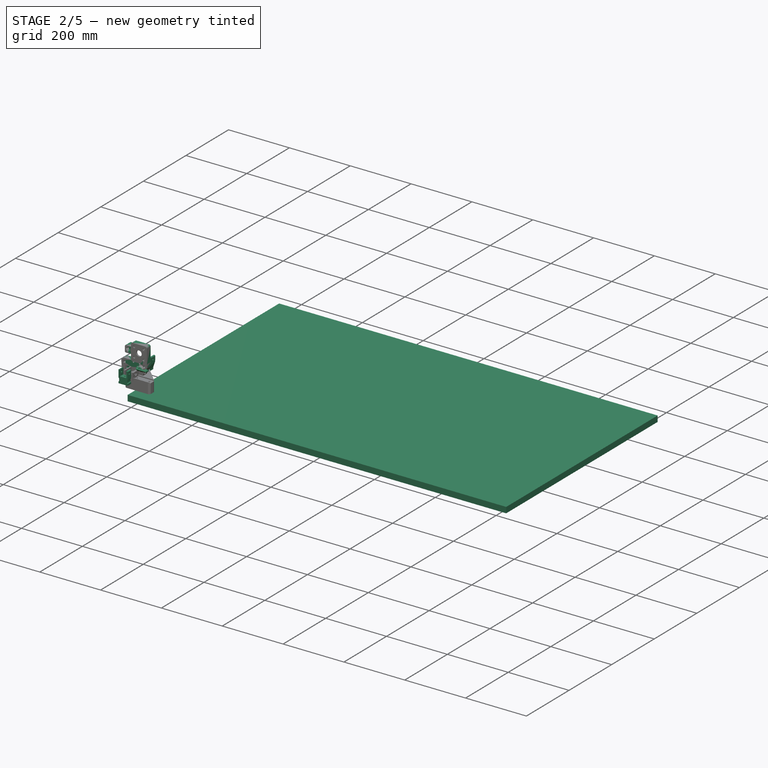
[diagram: stage 2 of 5 — iso view after this stage's code; geometry added in this stage tinted green]
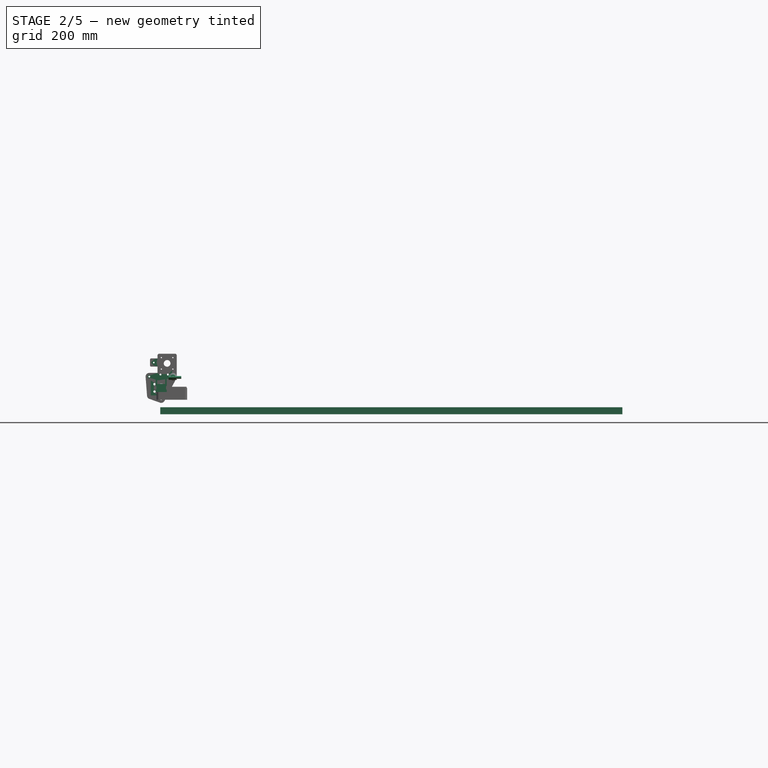
[diagram: stage 2 of 5 — front view after this stage's code; geometry added in this stage tinted green]
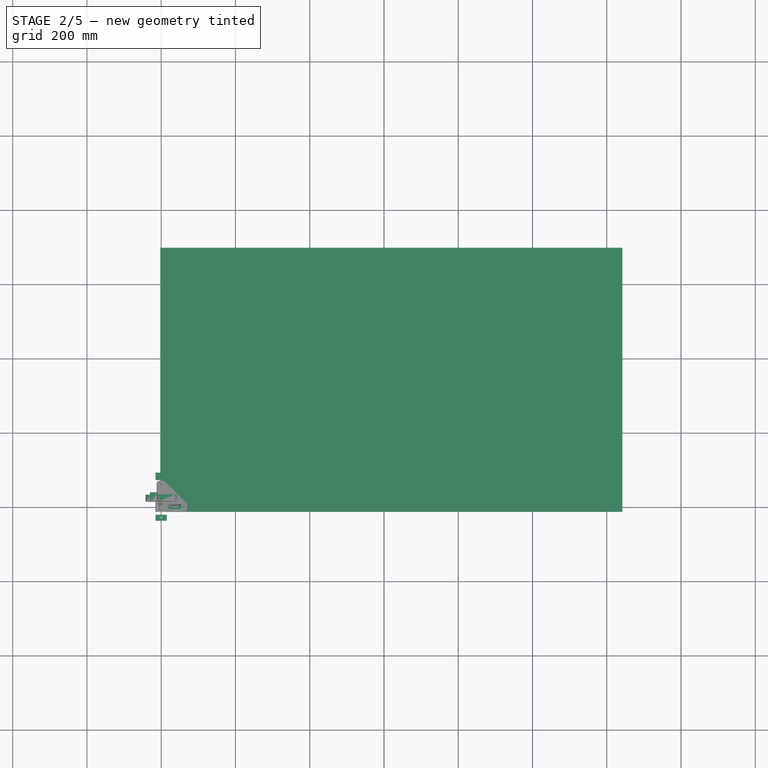
[diagram: stage 2 of 5 — top view after this stage's code; geometry added in this stage tinted green]
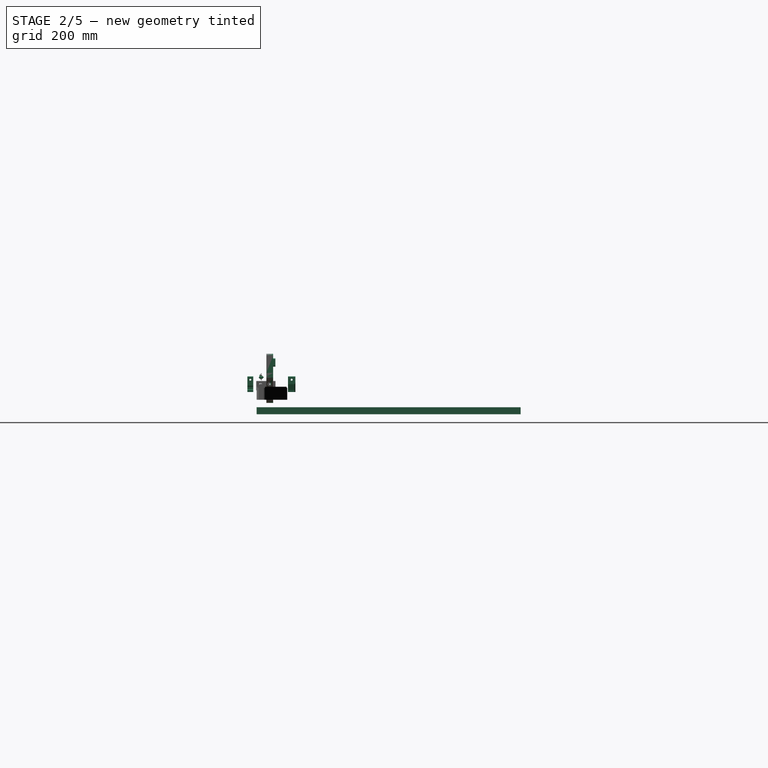
[diagram: stage 2 of 5 — right view after this stage's code; geometry added in this stage tinted green]
FEATURE [PartDesign::Body] Body010  label="GT2Pulley5mm"
  Group = -> [Sketch023,Revolution002]
  Origin = -> Origin016
  Tip = -> Revolution002
FEATURE [App::Link] Link020  label="GT2Pulley5mm001"
  LinkPlacement = pos=(0,-8.78882e-05,21) rot=(0,0,1;0rad)
  LinkedObject = -> Body010
  Placement = pos=(0,-8.78882e-05,21) rot=(0,0,1;0rad)
FEATURE [App::Part] Part006  label="StepperAssy"
  Group = -> [Link019,Link020]
  Origin = -> Origin017
  Placement = pos=(16,18,66) rot=(1,0,0;4.71239rad)
FEATURE [PartDesign::Plane] DatumPlane  label="XBearingBlockSurface"
  AttachmentOffset = pos=(0,0,19) rot=(0,0,1;0rad)
  Length = 105.087
  MapMode = 5
  Placement = pos=(0,19,4.2e-15) rot=(0,0.707107,0.707107;3.14159rad)
  ResizeMode = 0
  Support = -> [XZ_Plane008]
  Width = 153.433
  expr: .AttachmentOffset.Base.z = -<<BlockProfile>>.AttachmentOffset.Base.z + <<XBearingBlockPad>>.Length
FEATURE [Sketcher::SketchObject] Sketch027  label="GT2Idler5mmProfile"
  FullyConstrained = true
  MapMode = 5
  Placement = pos=(0,0,0) rot=(1,0,0;1.5708rad)
  Support = -> [XZ_Plane018]
  sketch-geometry (9):
    g0: LineSegment StartX=8.95 StartY=-3.25 StartZ=0 EndX=8.95 EndY=-4.25 EndZ=0
    g1: LineSegment StartX=8.95 StartY=-4.25 StartZ=0 EndX=2.5 EndY=-4.25 EndZ=0
    g2: LineSegment StartX=2.5 StartY=-4.25 StartZ=0 EndX=2.5 EndY=4.25 EndZ=0
    g3: LineSegment StartX=2.5 StartY=4.25 StartZ=0 EndX=8.95 EndY=4.25 EndZ=0
    g4: LineSegment StartX=8.95 StartY=4.25 StartZ=0 EndX=8.95 EndY=3.25 EndZ=0
    g5: LineSegment StartX=8.95 StartY=3.25 StartZ=0 EndX=6 EndY=3.25 EndZ=0
    g6: LineSegment StartX=8.95 StartY=-3.25 StartZ=0 EndX=6 EndY=-3.25 EndZ=0
    g7: LineSegment StartX=6 StartY=-3.25 StartZ=0 EndX=6 EndY=3.25 EndZ=0
    g8: GeomPoint X=6 Y=0 Z=0
  constraints (26):
    c: Vertical(g0)
    c: Coincident(g0,g1)
    c: Horizontal(g1)
    c: Coincident(g1,g2)
    c: Vertical(g2)
    c: Coincident(g2,g3)
    c: Horizontal(g3)
    c: Coincident(g3,g4)
    c: Coincident(g4,g5)
    c: Horizontal(g5)
    c: PointOnObject(g3,g0)
    c: DistanceX(g5) = 6  'Radius'
    c: DistanceX(g0) = 8.95  'RimRadius'
    c: Vertical(g4)
    c: DistanceY(g4,g4) = 1
    c: DistanceY(g0,g0) = 1
    c: DistanceX(g1) = 2.5
    c: Coincident(g6,g0)
    c: Horizontal(g6)
    c: Coincident(g7,g6)
    c: Coincident(g7,g5)
    c: Vertical(g7)
    c: Symmetric(g5,g6,g8)
    c: DistanceY(g7,g7) = 6.5
    c: PointOnObject(g8,g-1)
    c: DistanceY(g2,g2) = 8.5  'Height'
FEATURE [PartDesign::Revolution] Revolution003
  Angle = 360
  Axis = (0,-2e-16,1)
  Base = (0,0,0)
  Placement = pos=(0,0,0) rot=(1,0,0;1.5708rad)
  Profile = -> Sketch027
  ReferenceAxis = -> Sketch027 [V_Axis]
  Reversed = true
FEATURE [PartDesign::Body] Body019  label="XBeltAdjustBase"
  Group = -> [Sketch047,Pad015,Sketch051,Pocket023,Sketch052,Pocket024,Sketch053,Pocket025,Sketch055,Pocket026,Sketch066,Pocket031]
  Origin = -> Origin028
  Tip = -> Pocket031
FEATURE [Sketcher::SketchObject] Sketch054
  AttachmentOffset = pos=(0,28.35,-20) rot=(0,0,1;0rad)
  FullyConstrained = true
  MapMode = 5
  Placement = pos=(20,1.9e-15,28.35) rot=(-0.57735,0.57735,0.57735;4.18879rad)
  Support = -> [YZ_Plane030]
  expr: .AttachmentOffset.Base.y = 28.35
  sketch-geometry (8):
    g0: LineSegment StartX=-0.353553 StartY=6.71751 StartZ=0 EndX=-6.71751 EndY=0.353553 EndZ=0
    g1: LineSegment StartX=-0.353553 StartY=-6.71751 StartZ=0 EndX=-6.71751 EndY=-0.353553 EndZ=0
    g2: LineSegment StartX=0.353553 StartY=6.71751 StartZ=0 EndX=6.71751 EndY=0.353553 EndZ=0
    g3: LineSegment StartX=6.71751 StartY=-0.353553 StartZ=0 EndX=0.353553 EndY=-6.71751 EndZ=0
    g4: ArcOfCircle CenterX=1.3e-15 CenterY=6.36396 CenterZ=0 NormalX=0 NormalY=0 NormalZ=1 AngleXU=0 Radius=0.5 StartAngle=0.785398 EndAngle=2.35619
    g5: ArcOfCircle CenterX=6.36396 CenterY=0 CenterZ=0 NormalX=0 NormalY=0 NormalZ=1 AngleXU=0 Radius=0.5 StartAngle=5.49779 EndAngle=7.06858
    g6: ArcOfCircle CenterX=-1.3e-15 CenterY=-6.36396 CenterZ=0 NormalX=0 NormalY=0 NormalZ=1 AngleXU=0 Radius=0.5 StartAngle=3.92699 EndAngle=5.49779
    g7: ArcOfCircle CenterX=-6.36396 CenterY=1e-16 CenterZ=0 NormalX=0 NormalY=0 NormalZ=1 AngleXU=0 Radius=0.5 StartAngle=2.35619 EndAngle=3.92699
  constraints (19):
    c: Parallel(g2,g1)
    c: Parallel(g0,g3)
    c: Perpendicular(g3,g2)
    c: Tangent(g0,g4) = -1.5708
    c: Tangent(g2,g4) = 1.5708
    c: Tangent(g2,g5) = 1.5708
    c: Tangent(g3,g5) = 1.5708
    c: Tangent(g3,g6) = 1.5708
    c: Tangent(g1,g6) = 1.5708
    c: Tangent(g1,g7) = 1.5708
    c: Tangent(g0,g7) = -1.5708
    c: Equal(g4,g5)
    c: Equal(g5,g6)
    c: Equal(g6,g7)
    c: Distance(g0,g3) = 10
    c: Equal(g0,g2)
    c: Radius(g4) = 0.5
    c: Symmetric(g4,g6,g-1)
    c: PointOnObject(g5,g-1)
FEATURE [Sketcher::SketchObject] Sketch056
  AttachmentOffset = pos=(47,28.35,0) rot=(0,0,1;0rad)
  FullyConstrained = false
  MapMode = 5
  Placement = pos=(47,-6.3e-15,28.35) rot=(1,0,0;1.5708rad)
  Support = -> [XZ_Plane030]
  expr: .AttachmentOffset.Base.y = 28.35
  sketch-geometry (7):
    g0: ArcOfCircle CenterX=0 CenterY=0 CenterZ=0 NormalX=0 NormalY=0 NormalZ=1 AngleXU=0 Radius=3.25413 StartAngle=1.30814 EndAngle=4.97505
    g1: LineSegment StartX=0.844932 StartY=-3.14252 StartZ=0 EndX=12.5328 EndY=-9e-16 EndZ=0
    g2: LineSegment StartX=0.844932 StartY=3.14252 StartZ=0 EndX=12.5328 EndY=-9e-16 EndZ=0
    g3: LineSegment StartX=20.145 StartY=2 StartZ=0 EndX=1.85962 EndY=6.91642 EndZ=0
    g4: LineSegment StartX=20.145 StartY=-2 StartZ=0 EndX=1.85962 EndY=-6.91642 EndZ=0
    g5: ArcOfCircle CenterX=0 CenterY=0 CenterZ=0 NormalX=0 NormalY=0 NormalZ=1 AngleXU=0 Radius=7.16205 StartAngle=1.30814 EndAngle=4.97505
    g6: LineSegment StartX=20.145 StartY=2 StartZ=0 EndX=20.145 EndY=-2 EndZ=0
  constraints (14):
    c: Coincident(g0,g-1)
    c: Coincident(g2,g1)
    c: PointOnObject(g1,g-1)
    c: Tangent(g2,g0) = 1.5708
    c: Tangent(g1,g0) = -1.5708
    c: Coincident(g5,g0)
    c: Coincident(g6,g3)
    c: Coincident(g6,g4)
    c: Vertical(g6)
    c: Parallel(g3,g2)
    c: Parallel(g1,g4)
    c: DistanceY(g6,g6) = 4
    c: Tangent(g5,g4) = 1.5708
    c: Tangent(g5,g3) = -1.5708
FEATURE [Sketcher::SketchObject] Sketch057
  AttachmentOffset = pos=(0,28.35,-20) rot=(0,0,1;0rad)
  FullyConstrained = true
  MapMode = 5
  Placement = pos=(20,1.9e-15,28.35) rot=(-0.57735,0.57735,0.57735;4.18879rad)
  Support = -> [YZ_Plane030]
  expr: .AttachmentOffset.Base.y = 28.35
  sketch-geometry (1):
    g0: Circle CenterX=0 CenterY=0 CenterZ=0 NormalX=0 NormalY=0 NormalZ=1 AngleXU=0 Radius=2.15
  constraints (2):
    c: Coincident(g0,g-1)
    c: Diameter(g0) = 4.3
FEATURE [PartDesign::Pad] Pad023
  Direction = (-1,2e-16,-3e-16)
  Length = 34
  Length2 = 100
  Placement = pos=(0,0,0) rot=(0.57735,0.57735,0.57735;2.0944rad)
  Profile = -> Sketch054
  Reversed = true
  Type = 0
FEATURE [Sketcher::SketchObject] Sketch067
  AttachmentOffset = pos=(47,28.35,0) rot=(0,0,1;0rad)
  FullyConstrained = false
  MapMode = 5
  Placement = pos=(47,-6.3e-15,28.35) rot=(1,0,0;1.5708rad)
  Support = -> [XZ_Plane030]
  expr: .AttachmentOffset.Base.y = 28.35
  sketch-geometry (8):
    g0: LineSegment StartX=-10.8854 StartY=12.5794 StartZ=0 EndX=24.1708 EndY=12.5794 EndZ=0
    g1: LineSegment StartX=24.1708 StartY=12.5794 StartZ=0 EndX=24.1708 EndY=4.19188 EndZ=0
    g2: LineSegment StartX=24.1708 StartY=4.19188 StartZ=0 EndX=-3.02777 EndY=4.19188 EndZ=0
    g3: LineSegment StartX=-3.02777 StartY=4.19188 StartZ=0 EndX=-10.8854 EndY=12.5794 EndZ=0
    g4: LineSegment StartX=24.1708 StartY=-4.19188 StartZ=0 EndX=-3.02777 EndY=-4.19188 EndZ=0
    g5: LineSegment StartX=-3.02777 StartY=-4.19188 StartZ=0 EndX=-11.5804 EndY=-12.5794 EndZ=0
    g6: LineSegment StartX=-11.5804 StartY=-12.5794 StartZ=0 EndX=24.1708 EndY=-12.5794 EndZ=0
    g7: LineSegment StartX=24.1708 StartY=-12.5794 StartZ=0 EndX=24.1708 EndY=-4.19188 EndZ=0
  constraints (15):
    c: Coincident(g0,g1)
    c: Coincident(g1,g2)
    c: Coincident(g2,g3)
    c: Coincident(g3,g0)
    c: Horizontal(g0)
    c: Vertical(g1)
    c: Coincident(g4,g5)
    c: Coincident(g5,g6)
    c: Coincident(g6,g7)
    c: Coincident(g7,g4)
    c: Horizontal(g4)
    c: Horizontal(g6)
    c: Vertical(g2,g4)
    c: Symmetric(g1,g4,g-1)
    c: Symmetric(g0,g6,g-1)
FEATURE [PartDesign::Pocket] Pocket032
  BaseFeature = -> Pad023
  Length = 5
  Length2 = 100
  Midplane = true
  Placement = pos=(0,0,0) rot=(0.57735,0.57735,0.57735;2.0944rad)
  Profile = -> Sketch067
  Type = 1
FEATURE [PartDesign::Pocket] Pocket033
  BaseFeature = -> Pocket032
  Length = 7
  Length2 = 100
  Midplane = true
  Placement = pos=(0,0,0) rot=(0.57735,0.57735,0.57735;2.0944rad)
  Profile = -> Sketch056
  Type = 0
FEATURE [PartDesign::Pocket] Pocket034
  BaseFeature = -> Pocket033
  Length = 21
  Length2 = 100
  Placement = pos=(0,0,0) rot=(0.57735,0.57735,0.57735;2.0944rad)
  Profile = -> Sketch057
  Type = 0
FEATURE [Sketcher::SketchObject] Sketch068
  AttachmentOffset = pos=(0,28.35,-23) rot=(0,0,1;0.785398rad)
  FullyConstrained = true
  MapMode = 5
  Placement = pos=(23,1.2e-15,28.35) rot=(-0.357407,0.862856,0.357407;4.56541rad)
  Support = -> [YZ_Plane030]
  expr: .AttachmentOffset.Base.y = 28.35
  sketch-geometry (7):
    g0: LineSegment StartX=-3.65 StartY=-3.65 StartZ=0 EndX=3.65 EndY=-3.65 EndZ=0
    g1: LineSegment StartX=3.65 StartY=-3.65 StartZ=0 EndX=3.65 EndY=3.65 EndZ=0
    g2: LineSegment StartX=3.65 StartY=3.65 StartZ=0 EndX=-3.65 EndY=3.65 EndZ=0
    g3: LineSegment StartX=-3.65 StartY=3.65 StartZ=0 EndX=-3.65 EndY=-3.65 EndZ=0
    g4: LineSegment StartX=-3.65 StartY=3.65 StartZ=0 EndX=-4.4 EndY=8.65 EndZ=0
    g5: LineSegment StartX=-4.4 StartY=8.65 StartZ=0 EndX=4.4 EndY=8.65 EndZ=0
    g6: LineSegment StartX=4.4 StartY=8.65 StartZ=0 EndX=3.65 EndY=3.65 EndZ=0
  constraints (18):
    c: Coincident(g0,g1)
    c: Coincident(g1,g2)
    c: Coincident(g2,g3)
    c: Coincident(g3,g0)
    c: Horizontal(g0)
    c: Horizontal(g2)
    c: Vertical(g1)
    c: Vertical(g3)
    c: DistanceX(g2,g2) = 7.3
    c: Equal(g2,g3)
    c: Symmetric(g2,g0,g-1)
    c: Coincident(g4,g3)
    c: Coincident(g5,g4)
    c: Coincident(g6,g5)
    c: Coincident(g6,g1)
    c: Symmetric(g4,g5,g-2)
    c: DistanceX(g5,g5) = 8.8
    c: DistanceY(g3,g4) = 5
FEATURE [PartDesign::Pocket] Pocket035
  BaseFeature = -> Pocket034
  Length = 3.5
  Length2 = 100
  Placement = pos=(0,0,0) rot=(0.57735,0.57735,0.57735;2.0944rad)
  Profile = -> Sketch068
  Type = 0
FEATURE [Sketcher::SketchObject] Sketch069
  AttachmentOffset = pos=(0,28.35,-20) rot=(0,0,1;0rad)
  FullyConstrained = true
  MapMode = 5
  Placement = pos=(20,1.9e-15,28.35) rot=(-0.57735,0.57735,0.57735;4.18879rad)
  Support = -> [YZ_Plane030]
  expr: .AttachmentOffset.Base.y = 28.35
  sketch-geometry (1):
    g0: Circle CenterX=0 CenterY=0 CenterZ=0 NormalX=0 NormalY=0 NormalZ=1 AngleXU=0 Radius=3.15
  constraints (2):
    c: Coincident(g0,g-1)
    c: Diameter(g0) = 6.3
FEATURE [PartDesign::Pocket] Pocket036
  BaseFeature = -> Pocket035
  Length = 4
  Length2 = 100
  Placement = pos=(0,0,0) rot=(0.57735,0.57735,0.57735;2.0944rad)
  Profile = -> Sketch069
  Type = 0
FEATURE [PartDesign::Pocket] Pocket015  label="YRailCounterSink1Pocket"
  BaseFeature = -> Pocket014
  Length = 5
  Length2 = 100
  Placement = pos=(0,0,0) rot=(1,0,0;1.5708rad)
  Profile = -> Sketch037
  Type = 1
FEATURE [PartDesign::Body] Body022  label="YBlock"
  Group = -> [Sketch065,Pad022,Sketch079,Sketch081,Pocket039,Sketch082,Pocket040,Revolution010,MultiTransform,Mirrored001,Mirrored002,Sketch080,Revolution011,Mirrored003,Sketch083,Pocket041,Sketch084,Pocket042,Sketch085,Pocket043,Sketch086,Pocket044,Sketch087,Pocket045]
  Origin = -> Origin033
  Tip = -> Pocket045
FEATURE [Sketcher::SketchObject] Sketch089
  AttachmentOffset = pos=(0,0,37.4) rot=(0,0,1;0rad)
  FullyConstrained = true
  MapMode = 5
  Placement = pos=(0,-37.4,-8.3e-15) rot=(1,0,0;1.5708rad)
  Support = -> [XZ_Plane041]
  sketch-geometry (18):
    g0: LineSegment StartX=-13 StartY=31 StartZ=0 EndX=-10.5 EndY=31 EndZ=0
    g1: LineSegment StartX=15 StartY=29 StartZ=0 EndX=15 EndY=5.5 EndZ=0
    g2: LineSegment StartX=15 StartY=-11 StartZ=0 EndX=-15 EndY=-11 EndZ=0
    g3: LineSegment StartX=-15 StartY=-11 StartZ=0 EndX=-15 EndY=-5.5 EndZ=0
    g4: LineSegment StartX=10.5 StartY=31 StartZ=0 EndX=10.5 EndY=10.5 EndZ=0
    g5: LineSegment StartX=10.5 StartY=10.5 StartZ=0 EndX=-10.5 EndY=10.5 EndZ=0
    g6: LineSegment StartX=-10.5 StartY=10.5 StartZ=0 EndX=-10.5 EndY=31 EndZ=0
    g7: LineSegment StartX=10.5 StartY=31 StartZ=0 EndX=13 EndY=31 EndZ=0
    g8: LineSegment StartX=-15 StartY=5.5 StartZ=0 EndX=-13 EndY=3.5 EndZ=0
    g9: LineSegment StartX=-13 StartY=3.5 StartZ=0 EndX=-13 EndY=-3.5 EndZ=0
    g10: LineSegment StartX=-13 StartY=-3.5 StartZ=0 EndX=-15 EndY=-5.5 EndZ=0
    g11: LineSegment StartX=15 StartY=5.5 StartZ=0 EndX=13 EndY=3.5 EndZ=0
    g12: LineSegment StartX=13 StartY=3.5 StartZ=0 EndX=13 EndY=-3.5 EndZ=0
    g13: LineSegment StartX=13 StartY=-3.5 StartZ=0 EndX=15 EndY=-5.5 EndZ=0
    g14: LineSegment StartX=-15 StartY=5.5 StartZ=0 EndX=-15 EndY=29 EndZ=0
    g15: LineSegment StartX=15 StartY=-5.5 StartZ=0 EndX=15 EndY=-11 EndZ=0
    g16: ArcOfCircle CenterX=-13 CenterY=29 CenterZ=0 NormalX=0 NormalY=0 NormalZ=1 AngleXU=0 Radius=2 StartAngle=1.5708 EndAngle=3.14159
    g17: ArcOfCircle CenterX=13 CenterY=29 CenterZ=0 NormalX=0 NormalY=0 NormalZ=1 AngleXU=0 Radius=2 StartAngle=0 EndAngle=1.5708
  constraints (45):
    c: Coincident(g15,g2)
    c: Coincident(g2,g3)
    c: Horizontal(g0)
    c: Vertical(g1)
    c: Vertical(g3)
    c: Symmetric(g15,g2,g-2)
    c: Coincident(g4,g5)
    c: Coincident(g5,g6)
    c: Vertical(g4)
    c: Vertical(g6)
    c: Coincident(g6,g0)
    c: Coincident(g4,g7)
    c: DistanceX(g5,g5) = 21
    c: Symmetric(g5,g4,g-2)
    c: DistanceY(g6,g6) = 20.5
    c: PointOnObject(g4,g0)
    c: DistanceY(g2,g-1) = 11
    c: Horizontal(g7)
    c: Coincident(g8,g9)
    c: Vertical(g9)
    c: Coincident(g9,g10)
    c: Coincident(g11,g12)
    c: Coincident(g12,g13)
    c: Symmetric(g11,g8,g-2)
    c: Coincident(g14,g8)
    c: Coincident(g10,g3)
    c: Coincident(g1,g11)
    c: Coincident(g13,g15)
    c: Symmetric(g3,g13,g-2)
    c: Symmetric(g12,g9,g-2)
    c: Symmetric(g1,g8,g-2)
    c: Angle(g3,g10) = 2.35619
    c: Perpendicular(g10,g8)
    c: DistanceX(g8,g-1) = 13
    c: DistanceY(g9,g9) = 7
    c: Vertical(g14)
    c: Symmetric(g8,g3,g-1)
    c: Tangent(g14,g16) = 1.5708
    c: Tangent(g0,g16) = 1.5708
    c: Tangent(g7,g17) = 1.5708
    c: Tangent(g1,g17) = 1.5708
    c: Equal(g17,g16)
    c: Radius(g16) = 2
    c: DistanceX(g14,g1) = 30
    c: DistanceY(g-1,g0) = 31
FEATURE [PartDesign::Pad] Pad029
  Direction = (0,-1,-2e-16)
  Length = 16
  Length2 = 100
  Placement = pos=(0,0,0) rot=(1,0,0;1.5708rad)
  Profile = -> Sketch089
  Reversed = true
  Type = 0
FEATURE [Sketcher::SketchObject] Sketch090
  AttachmentOffset = pos=(0,0,92) rot=(0,0,1;0rad)
  FullyConstrained = false
  MapMode = 5
  Placement = pos=(0,92,2.04e-14) rot=(0,0.707107,0.707107;3.14159rad)
  Support = -> [XZ_Plane042]
  sketch-geometry (14):
    g0: LineSegment StartX=-13 StartY=31 StartZ=0 EndX=-10.5 EndY=31 EndZ=0
    g1: LineSegment StartX=15 StartY=29 StartZ=0 EndX=15 EndY=9.87242 EndZ=0
    g2: LineSegment StartX=10 StartY=-11 StartZ=0 EndX=-10 EndY=-11 EndZ=0
    g3: LineSegment StartX=-10 StartY=-11 StartZ=0 EndX=-10 EndY=-5.61415 EndZ=0
    g4: LineSegment StartX=10.5 StartY=31 StartZ=0 EndX=10.5 EndY=10.5 EndZ=0
    g5: LineSegment StartX=10.5 StartY=10.5 StartZ=0 EndX=-10.5 EndY=10.5 EndZ=0
    g6: LineSegment StartX=-10.5 StartY=10.5 StartZ=0 EndX=-10.5 EndY=31 EndZ=0
    g7: LineSegment StartX=10.5 StartY=31 StartZ=0 EndX=13 EndY=31 EndZ=0
    g8: LineSegment StartX=-15 StartY=9.87242 StartZ=0 EndX=-15 EndY=29 EndZ=0
    g9: LineSegment StartX=10 StartY=-5.61415 StartZ=0 EndX=10 EndY=-11 EndZ=0
    g10: ArcOfCircle CenterX=-13 CenterY=29 CenterZ=0 NormalX=0 NormalY=0 NormalZ=1 AngleXU=0 Radius=2 StartAngle=1.5708 EndAngle=3.14159
    g11: ArcOfCircle CenterX=13 CenterY=29 CenterZ=0 NormalX=0 NormalY=0 NormalZ=1 AngleXU=0 Radius=2 StartAngle=0 EndAngle=1.5708
    g12: LineSegment StartX=-10 StartY=-5.61415 StartZ=0 EndX=-15 EndY=9.87242 EndZ=0
    g13: LineSegment StartX=10 StartY=-5.61415 StartZ=0 EndX=15 EndY=9.87242 EndZ=0
  constraints (34):
    c: Coincident(g9,g2)
    c: Coincident(g2,g3)
    c: Horizontal(g0)
    c: Vertical(g1)
    c: Vertical(g3)
    c: Symmetric(g9,g2,g-2)
    c: Coincident(g4,g5)
    c: Coincident(g5,g6)
    c: Vertical(g4)
    c: Vertical(g6)
    c: Coincident(g6,g0)
    c: Coincident(g4,g7)
    c: DistanceX(g5,g5) = 21
    c: Symmetric(g5,g4,g-2)
    c: DistanceY(g6,g6) = 20.5
    c: PointOnObject(g4,g0)
    c: DistanceY(g2,g-1) = 11
    c: Horizontal(g7)
    c: Symmetric(g3,g9,g-2)
    c: Symmetric(g1,g8,g-2)
    c: Vertical(g8)
    c: Tangent(g8,g10) = 1.5708
    c: Tangent(g0,g10) = 1.5708
    c: Tangent(g7,g11) = 1.5708
    c: Tangent(g1,g11) = 1.5708
    c: Equal(g11,g10)
    c: Radius(g10) = 2
    c: DistanceX(g8,g1) = 30
    c: DistanceY(g-1,g0) = 31
    c: DistanceX(g2,g2) = 20
    c: Coincident(g12,g3)
    c: Coincident(g12,g8)
    c: Coincident(g13,g9)
    c: Coincident(g13,g1)
FEATURE [PartDesign::Pad] Pad030
  Direction = (0,1,-2e-16)
  Length = 20
  Length2 = 100
  Placement = pos=(0,0,0) rot=(1,0,0;1.5708rad)
  Profile = -> Sketch090
  Reversed = true
  Type = 0
FEATURE [Sketcher::SketchObject] Sketch091
  AttachmentOffset = pos=(0,0,11) rot=(0,0,1;0rad)
  FullyConstrained = true
  MapMode = 5
  Placement = pos=(0,0,-11) rot=(0,1,0;3.14159rad)
  Support = -> [XY_Plane041]
  sketch-geometry (1):
    g0: Circle CenterX=0 CenterY=-29 CenterZ=0 NormalX=0 NormalY=0 NormalZ=1 AngleXU=0 Radius=2.5
  constraints (3):
    c: PointOnObject(g0,g-2)
    c: Diameter(g0) = 5
    c: DistanceY(g0) = -29
FEATURE [PartDesign::Pocket] Pocket046
  BaseFeature = -> Pad029
  Length = 5
  Length2 = 100
  Placement = pos=(0,0,0) rot=(1,0,0;1.5708rad)
  Profile = -> Sketch091
  Type = 1
FEATURE [Sketcher::SketchObject] Sketch092
  AttachmentOffset = pos=(-29.4,0,15) rot=(0,0,1;0rad)
  FullyConstrained = true
  MapMode = 5
  Placement = pos=(15,-29.4,9.9e-15) rot=(0.57735,0.57735,0.57735;2.0944rad)
  Support = -> [YZ_Plane041]
  sketch-geometry (1):
    g0: Circle CenterX=0 CenterY=22 CenterZ=0 NormalX=0 NormalY=0 NormalZ=1 AngleXU=0 Radius=2.63
  constraints (3):
    c: DistanceY(g0) = 22
    c: Diameter(g0) = 5.26
    c: PointOnObject(g0,g-2)
FEATURE [PartDesign::Pocket] Pocket047
  BaseFeature = -> Pocket046
  Length = 5
  Length2 = 100
  Midplane = true
  Placement = pos=(0,0,0) rot=(1,0,0;1.5708rad)
  Profile = -> Sketch092
  Type = 1
FEATURE [PartDesign::Body] Body027  label="BottomZRailAttach"
  Group = -> [Sketch089,Pad029,Sketch091,Pocket046,Sketch092,Pocket047]
  Origin = -> Origin041
  Tip = -> Pocket047
FEATURE [Sketcher::SketchObject] Sketch094
  AttachmentOffset = pos=(0,0,11) rot=(0,0,1;0rad)
  FullyConstrained = true
  MapMode = 5
  Placement = pos=(0,0,-11) rot=(0,1,0;3.14159rad)
  Support = -> [XY_Plane042]
  sketch-geometry (1):
    g0: Circle CenterX=0 CenterY=82 CenterZ=0 NormalX=0 NormalY=0 NormalZ=1 AngleXU=0 Radius=2.5
  constraints (3):
    c: PointOnObject(g0,g-2)
    c: Diameter(g0) = 5
    c: DistanceY(g0) = 82
FEATURE [PartDesign::Pocket] Pocket048
  BaseFeature = -> Pad030
  Length = 5
  Length2 = 100
  Midplane = true
  Placement = pos=(0,0,0) rot=(1,0,0;1.5708rad)
  Profile = -> Sketch094
  Type = 1
FEATURE [Sketcher::SketchObject] Sketch095
  AttachmentOffset = pos=(82,0,15) rot=(0,0,1;0rad)
  FullyConstrained = true
  MapMode = 5
  Placement = pos=(15,82,-1.49e-14) rot=(0.57735,0.57735,0.57735;2.0944rad)
  Support = -> [YZ_Plane042]
  sketch-geometry (1):
    g0: Circle CenterX=0 CenterY=22 CenterZ=0 NormalX=0 NormalY=0 NormalZ=1 AngleXU=0 Radius=2.63
  constraints (3):
    c: DistanceY(g0) = 22
    c: Diameter(g0) = 5.26
    c: PointOnObject(g0,g-2)
FEATURE [PartDesign::Pocket] Pocket049
  BaseFeature = -> Pocket048
  Length = 5
  Length2 = 100
  Midplane = true
  Placement = pos=(0,0,0) rot=(1,0,0;1.5708rad)
  Profile = -> Sketch095
  Type = 1
FEATURE [PartDesign::Fillet] Fillet
  Base = -> Pocket049 [Edge17,Edge18,Edge20,Edge21]
  BaseFeature = -> Pocket049
  Placement = pos=(0,0,0) rot=(1,0,0;1.5708rad)
  Radius = 3
  SupportTransform = false
FEATURE [PartDesign::Body] Body030  label="YBelt"
  Group = -> [Sketch102,Sketch103,AdditivePipe001]
  Origin = -> Origin044
  Tip = -> AdditivePipe001
FEATURE [App::Link] Link044  label="XBeltAdjustHook"
  LinkedObject = -> Body020
FEATURE [App::Part] Part009  label="XBeltAnchor1"
  Group = -> [Body019,Link044]
  Origin = -> Origin029
  Placement = pos=(1000,39,0) rot=(0,0,1;3.14159rad)
FEATURE [App::Link] Link045  label="YBeltAdjustHook"
  LinkPlacement = pos=(-20,1.04904e-05,40) rot=(0,0,1;1.5708rad)
  LinkedObject = -> Body020
  Placement = pos=(-20,1.04904e-05,40) rot=(0,0,1;1.5708rad)
FEATURE [Sketcher::SketchObject] Sketch104  label="YBeltAnchorChannelProfile"
  AttachmentOffset = pos=(0,0,-1) rot=(0,0,1;0rad)
  FullyConstrained = true
  MapMode = 5
  Placement = pos=(0,1,2e-16) rot=(1,0,0;1.5708rad)
  Support = -> [XZ_Plane008]
  sketch-geometry (11):
    g0: LineSegment StartX=-13 StartY=79.35 StartZ=0 EndX=-27 EndY=79.35 EndZ=0
    g1: LineSegment StartX=-13 StartY=57.35 StartZ=0 EndX=-27 EndY=57.35 EndZ=0
    g2: LineSegment StartX=-30 StartY=76.35 StartZ=0 EndX=-30 EndY=60.35 EndZ=0
    g3: ArcOfCircle CenterX=-27 CenterY=76.35 CenterZ=0 NormalX=0 NormalY=0 NormalZ=1 AngleXU=0 Radius=3 StartAngle=1.5708 EndAngle=3.14159
    g4: ArcOfCircle CenterX=-27 CenterY=60.35 CenterZ=0 NormalX=0 NormalY=0 NormalZ=1 AngleXU=0 Radius=3 StartAngle=3.14159 EndAngle=4.71239
    g5: GeomPoint X=-20 Y=68.35 Z=0
    g6: GeomPoint X=-30 Y=79.35 Z=0
    g7: LineSegment StartX=-10 StartY=76.35 StartZ=0 EndX=-10 EndY=60.35 EndZ=0
    g8: ArcOfCircle CenterX=-13 CenterY=76.35 CenterZ=0 NormalX=0 NormalY=0 NormalZ=1 AngleXU=0 Radius=3 StartAngle=2e-15 EndAngle=1.5708
    g9: ArcOfCircle CenterX=-13 CenterY=60.35 CenterZ=0 NormalX=0 NormalY=0 NormalZ=1 AngleXU=0 Radius=3 StartAngle=4.71239 EndAngle=6.28319
    g10: GeomPoint X=-10 Y=57.35 Z=0
  constraints (25):
    c: Horizontal(g0)
    c: Horizontal(g1)
    c: Vertical(g2)
    c: Tangent(g0,g3) = -1.5708
    c: Tangent(g2,g3) = -1.5708
    c: Tangent(g2,g4) = -1.5708
    c: Tangent(g1,g4) = 1.5708
    c: DistanceX(g5) = -20
    c: DistanceY(g5) = 68.35
    c: PointOnObject(g6,g0)
    c: PointOnObject(g6,g2)
    c: Radius(g3) = 3
    c: Equal(g4,g3)
    c: Vertical(g7)
    c: Tangent(g0,g8) = -1.5708
    c: Tangent(g7,g8) = 1.5708
    c: Tangent(g1,g9) = 1.5708
    c: Tangent(g7,g9) = 1.5708
    c: Equal(g9,g3)
    c: Equal(g3,g8)
    c: DistanceX(g2,g7) = 20
    c: PointOnObject(g10,g1)
    c: PointOnObject(g10,g7)
    c: Symmetric(g10,g6,g5)
    c: DistanceY(g1,g0) = 22
FEATURE [Sketcher::SketchObject] Sketch105  label="YBeltAnchorChannelHole"
  AttachmentOffset = pos=(0,0,-19) rot=(0,0,1;0rad)
  FullyConstrained = true
  MapMode = 5
  Placement = pos=(0,19,4.2e-15) rot=(1,0,0;1.5708rad)
  Support = -> [XZ_Plane008]
  sketch-geometry (5):
    g0: GeomPoint X=-20 Y=68.35 Z=0
    g1: LineSegment StartX=-20 StartY=76.1282 StartZ=0 EndX=-12.2218 EndY=68.35 EndZ=0
    g2: LineSegment StartX=-12.2218 StartY=68.35 StartZ=0 EndX=-20 EndY=60.5718 EndZ=0
    g3: LineSegment StartX=-20 StartY=60.5718 StartZ=0 EndX=-27.7782 EndY=68.35 EndZ=0
    g4: LineSegment StartX=-27.7782 StartY=68.35 StartZ=0 EndX=-20 EndY=76.1282 EndZ=0
  constraints (13):
    c: DistanceX(g0) = -20
    c: DistanceY(g0) = 68.35
    c: Coincident(g1,g2)
    c: Coincident(g2,g3)
    c: Coincident(g3,g4)
    c: Coincident(g4,g1)
    c: Perpendicular(g4,g1)
    c: Parallel(g3,g1)
    c: Parallel(g4,g2)
    c: Equal(g4,g1)
    c: Distance(g4) = 11
    c: Symmetric(g3,g1,g0)
    c: Horizontal(g1,g3)
FEATURE [PartDesign::Pad] Pad032  label="YBeltAnchorChannel"
  BaseFeature = -> Pocket015
  Direction = (0,-1,-2e-16)
  Length = 6
  Length2 = 100
  Placement = pos=(0,0,0) rot=(1,0,0;1.5708rad)
  Profile = -> Sketch104
  Type = 0
FEATURE [PartDesign::Pocket] Pocket053  label="YBeltAnchorChannelPocket"
  BaseFeature = -> Pad032
  Length = 20
  Length2 = 100
  Placement = pos=(0,0,0) rot=(1,0,0;1.5708rad)
  Profile = -> Sketch105
  Reversed = true
  Type = 0
FEATURE [Sketcher::SketchObject] Sketch106  label="YBeltAnchorTightenerHole"
  AttachmentOffset = pos=(0,0,-19) rot=(0,0,1;0rad)
  FullyConstrained = true
  MapMode = 5
  Placement = pos=(0,19,4.2e-15) rot=(1,0,0;1.5708rad)
  Support = -> [XZ_Plane008]
  sketch-geometry (2):
    g0: GeomPoint X=-20 Y=68.35 Z=0
    g1: Circle CenterX=-20 CenterY=68.35 CenterZ=0 NormalX=0 NormalY=0 NormalZ=1 AngleXU=0 Radius=2.1
  constraints (4):
    c: DistanceX(g0) = -20
    c: DistanceY(g0) = 68.35
    c: Coincident(g1,g0)
    c: Diameter(g1) = 4.2
FEATURE [PartDesign::Pocket] Pocket054  label="YBeltAnchorTightenerPocket"
  BaseFeature = -> Pocket053
  Length = 5
  Length2 = 100
  Midplane = true
  Placement = pos=(0,0,0) rot=(1,0,0;1.5708rad)
  Profile = -> Sketch106
  Type = 1
FEATURE [PartDesign::Body] Body004  label="XBearingBlock"
  Group = -> [Sketch003,Pad,Sketch004,DatumPlane,Local_CS,Sketch005,Pocket,Sketch024,Pocket007,Sketch025,Pocket008,Sketch026,Pocket009,Sketch030,Sketch075,Local_CS001,Pocket038,Pocket011,Pocket010,Sketch033,Sketch034,Pocket012,Sketch035,Pocket013,Sketch036,Pocket014,Sketch037,Pocket015,Sketch104,Sketch105,Pad032,Pocket053,Sketch106,Pocket054]
  Origin = -> Origin008
  Tip = -> Pocket054
FEATURE [App::Link] Link046  label="XBearingBlockBody"
  LinkPlacement = pos=(0,10,0) rot=(0,0,1;0rad)
  LinkedObject = -> Body004
  Placement = pos=(0,10,0) rot=(0,0,1;0rad)
FEATURE [Part::Mirroring] Part__Mirroring002  label="XBearingBlock1"
  Base = (2.79024e-05,16.5062,25.8269)
  Normal = (0,1,-1.19209e-07)
  Source = -> Body004
FEATURE [Part::Box] Box002  label="MdfBase001"
  AttacherType = Attacher::AttachEngine3D
  Height = 19.05
  Length = 1244.6
  Placement = pos=(-2.5,-12.5,-71) rot=(0,0,1;0rad)
  Width = 711.2
  expr: Width = 28in
FEATURE [App::Link] Link047  label="VSlotBearing005"
  LinkPlacement = pos=(32,43,30.4) rot=(0,0,1;1.5708rad)
  LinkedObject = -> Body
  Placement = pos=(32,43,30.4) rot=(0,0,1;1.5708rad)
FEATURE [App::Part] Part014  label="XBlockAssy1"
  Group = -> [Body004,Part__Mirroring002,Link047]
  Origin = -> Origin045
  Placement = pos=(0,633,0) rot=(0,0,1;0rad)
  expr: .Placement.Base.y = Spreadsheet.WorkAreaExtentY + Spreadsheet.WorkClearanceY * 2 - 33mm
FEATURE [Sketcher::SketchObject] Sketch107  label="SpacerProfile"
  AttachmentOffset = pos=(0,10,0) rot=(0,0,1;0rad)
  FullyConstrained = true
  MapMode = 5
  Placement = pos=(0,10,0) rot=(0,0,1;0rad)
  Support = -> [XY_Plane048]
  sketch-geometry (4):
    g0: LineSegment StartX=2.5 StartY=1 StartZ=0 EndX=10 EndY=1 EndZ=0
    g1: LineSegment StartX=10 StartY=1 StartZ=0 EndX=4.5 EndY=-4.92 EndZ=0
    g2: LineSegment StartX=4.5 StartY=-4.92 StartZ=0 EndX=2.5 EndY=-4.92 EndZ=0
    g3: LineSegment StartX=2.5 StartY=-4.92 StartZ=0 EndX=2.5 EndY=1 EndZ=0
  constraints (12):
    c: Horizontal(g0)
    c: Coincident(g1,g0)
    c: Coincident(g2,g1)
    c: Horizontal(g2)
    c: Coincident(g3,g2)
    c: Coincident(g3,g0)
    c: Vertical(g3)
    c: DistanceY(g3,g3) = 5.92
    c: DistanceY(g-1,g0) = 1
    c: DistanceX(g-1,g1) = 4.5
    c: DistanceX(g-1,g2) = 2.5
    c: DistanceX(g-1,g0) = 10
FEATURE [Sketcher::SketchObject] Sketch108  label="VBearingBushingProfile"
  AttachmentOffset = pos=(32,0,30.35) rot=(0,0,1;0rad)
  FullyConstrained = true
  MapMode = 5
  Placement = pos=(32,0,30.35) rot=(0,0,1;0rad)
  Support = -> [XY_Plane046]
  expr: .AttachmentOffset.Base.z = Spreadsheet.VBearingOffset + 20mm
  expr: .AttachmentOffset.Base.x = Spreadsheet.XRailBearingSpacing / 2
  sketch-geometry (4):
    g0: LineSegment StartX=2.5 StartY=1 StartZ=0 EndX=10 EndY=1 EndZ=0
    g1: LineSegment StartX=10 StartY=1 StartZ=0 EndX=4.5 EndY=-4.92 EndZ=0
    g2: LineSegment StartX=4.5 StartY=-4.92 StartZ=0 EndX=2.5 EndY=-4.92 EndZ=0
    g3: LineSegment StartX=2.5 StartY=-4.92 StartZ=0 EndX=2.5 EndY=1 EndZ=0
  constraints (12):
    c: Horizontal(g0)
    c: Coincident(g1,g0)
    c: Coincident(g2,g1)
    c: Horizontal(g2)
    c: Coincident(g3,g2)
    c: Coincident(g3,g0)
    c: Vertical(g3)
    c: DistanceY(g3,g3) = 5.92
    c: DistanceX(g-1,g0) = 2.5
    c: DistanceX(g2,g2) = 2
    c: DistanceX(g0,g0) = 7.5
    c: DistanceY(g-1,g0) = 1
FEATURE [PartDesign::Revolution] Revolution013  label="VBearingBushingRev"
  Angle = 360
  Axis = (0,1,0)
  Base = (32,0,30.35)
  Profile = -> Sketch108
  ReferenceAxis = -> Sketch108 [V_Axis]
  Reversed = true
FEATURE [PartDesign::Pocket] Pocket052
  BaseFeature = -> LinearPattern
  Length = 5
  Length2 = 100
  Midplane = true
  Placement = pos=(0,0,0) rot=(1,0,0;1.5708rad)
  Profile = -> Sketch101
  Type = 1
FEATURE [PartDesign::Body] Body029  label="LaserHolder"
  Group = -> [Sketch097,Sketch099,Pad031,Pocket050,Sketch100,Pocket051,Sketch101,Sketch110,Groove,LinearPattern,Pocket052]
  Origin = -> Origin043
  Placement = pos=(0,0,32) rot=(0,1,0;3.14159rad)
  Tip = -> LinearPattern
FEATURE [App::Part] Part010  label="YBlockAssy"
  Group = -> [Body022,Link037,Link038,Part012,Link040,Link043,Part013,Body027,Body028,Group001,Link033,Link034,Link035,Link036,Body029]
  Origin = -> Origin032
  Placement = pos=(0,583,5.9e-15) rot=(0.57735,0.57735,0.57735;2.0944rad)
  expr: .Placement.Base.y = 75mm + 508mm
FEATURE [App::Part] Part011  label="YRailAssy"
  Group = -> [Part010,Link002,Body030]
  Origin = -> Origin034
  Placement = pos=(-18,3.4,0) rot=(0,0,1;0rad)
  expr: .Placement.Base.x = -Sketch003.Constraints.YRailOffset
FEATURE [App::Part] Part002  label="Gantry"
  Group = -> [Part003,Part004,Part011,Part014]
  Origin = -> Origin006
  Placement = pos=(120,10,0) rot=(0,0,1;0rad)
FEATURE [App::Part] Part001  label="Frame"
  Group = -> [Part002,Link,Link001,Link012,Part005,Link016,Body017,Body018,Part009,Box,Box002]
  Origin = -> Origin003
  Placement = pos=(-136,-89,52) rot=(0,0,1;0rad)
  expr: .Placement.Base.z = Spreadsheet.XRailZClearance + 20mm
  expr: .Placement.Base.y = -Spreadsheet.WorkClearanceY - 10mm
FEATURE [App::Part] Part  label="CNC"
  Group = -> [Box001,Part001]
  Origin = -> Origin
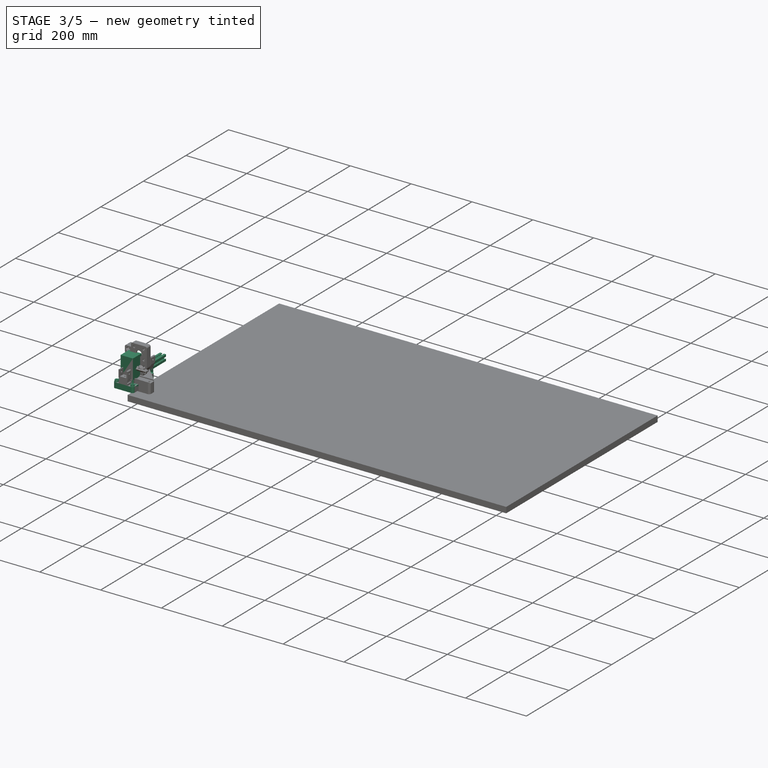
[diagram: stage 3 of 5 — iso view after this stage's code; geometry added in this stage tinted green]
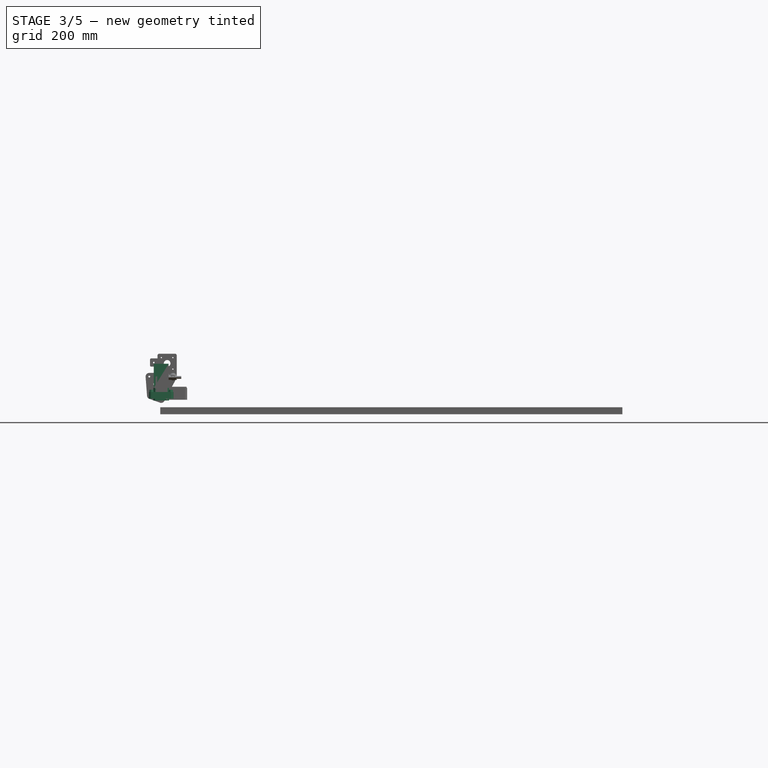
[diagram: stage 3 of 5 — front view after this stage's code; geometry added in this stage tinted green]
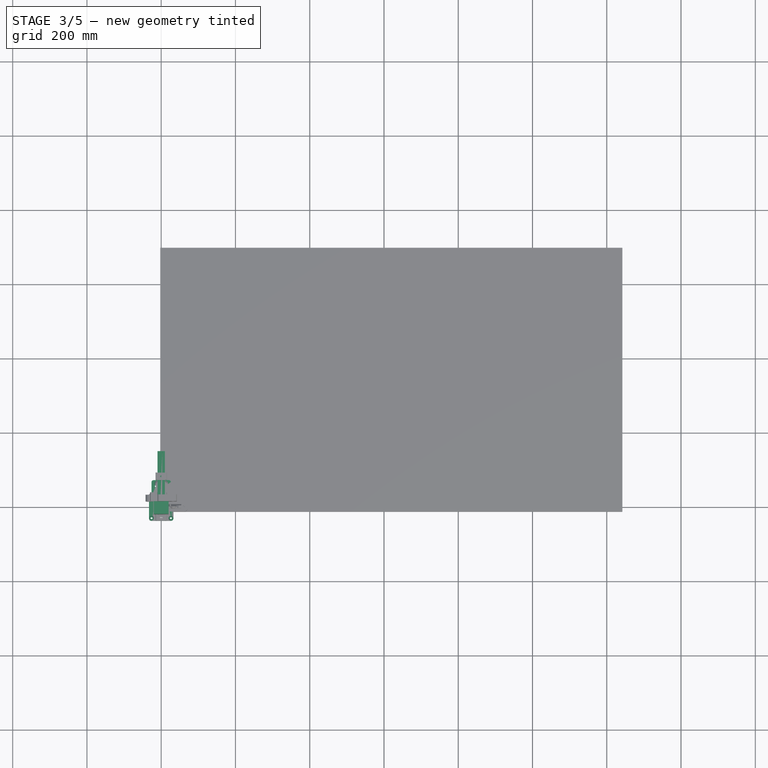
[diagram: stage 3 of 5 — top view after this stage's code; geometry added in this stage tinted green]
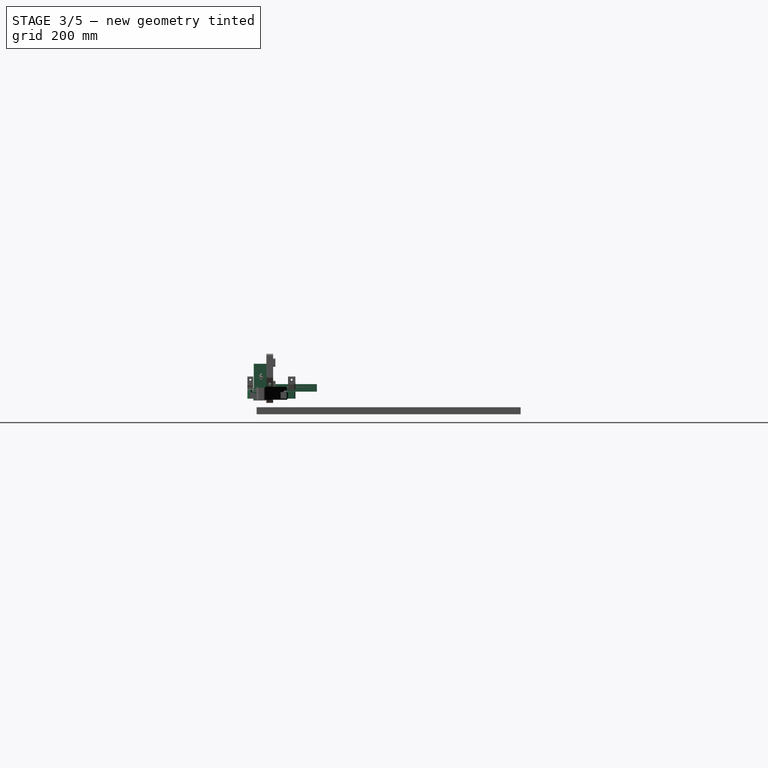
[diagram: stage 3 of 5 — right view after this stage's code; geometry added in this stage tinted green]
FEATURE [PartDesign::Body] Body009  label="Stepper47"
  Group = -> [Sketch017,Pad007,Sketch018,Sketch019,Sketch020,Sketch021,Pad010,Pad009,Pocket006,Pad008,Sketch022,Pad011]
  Origin = -> Origin015
  Tip = -> Pad011
FEATURE [App::Link] Link019  label="XStepper0"
  LinkedObject = -> Body009
FEATURE [Sketcher::SketchObject] Sketch023  label="GT2Pully5mmProfile"
  FullyConstrained = true
  MapMode = 5
  Placement = pos=(0,0,0) rot=(1,0,0;1.5708rad)
  Support = -> [XZ_Plane016]
  sketch-geometry (9):
    g0: LineSegment StartX=6 StartY=-3.57 StartZ=0 EndX=8 EndY=-3.57 EndZ=0
    g1: LineSegment StartX=8 StartY=-3.57 StartZ=0 EndX=8 EndY=-11.07 EndZ=0
    g2: LineSegment StartX=8 StartY=-11.07 StartZ=0 EndX=2.5 EndY=-11.07 EndZ=0
    g3: LineSegment StartX=2.5 StartY=-11.07 StartZ=0 EndX=2.5 EndY=4.87 EndZ=0
    g4: LineSegment StartX=2.5 StartY=4.87 StartZ=0 EndX=8 EndY=4.87 EndZ=0
    g5: LineSegment StartX=8 StartY=4.87 StartZ=0 EndX=8 EndY=3.57 EndZ=0
    g6: LineSegment StartX=8 StartY=3.57 StartZ=0 EndX=6 EndY=3.57 EndZ=0
    g7: LineSegment StartX=6 StartY=3.57 StartZ=0 EndX=6 EndY=-3.57 EndZ=0
    g8: GeomPoint X=6 Y=0 Z=0
  constraints (25):
    c: Horizontal(g0)
    c: Coincident(g0,g1)
    c: Vertical(g1)
    c: Coincident(g1,g2)
    c: Horizontal(g2)
    c: Coincident(g2,g3)
    c: Vertical(g3)
    c: Coincident(g3,g4)
    c: Horizontal(g4)
    c: Coincident(g4,g5)
    c: Coincident(g5,g6)
    c: Horizontal(g6)
    c: Coincident(g6,g7)
    c: Coincident(g7,g0)
    c: Vertical(g7)
    c: PointOnObject(g4,g1)
    c: DistanceX(g6) = 6
    c: DistanceX(g1) = 8
    c: Vertical(g5)
    c: DistanceY(g0,g5) = 7.14
    c: DistanceY(g5,g5) = 1.3
    c: DistanceY(g1,g1) = 7.5
    c: DistanceX(g2) = 2.5
    c: Symmetric(g0,g6,g8)
    c: PointOnObject(g8,g-1)
FEATURE [PartDesign::Revolution] Revolution002
  Angle = 360
  Axis = (0,-2e-16,1)
  Base = (0,0,0)
  Placement = pos=(0,0,0) rot=(1,0,0;1.5708rad)
  Profile = -> Sketch023
  ReferenceAxis = -> Sketch023 [V_Axis]
  Reversed = true
FEATURE [PartDesign::Body] Body011  label="GT2Idler5mm"
  Group = -> [Sketch027,Revolution003]
  Origin = -> Origin018
  Tip = -> Revolution003
FEATURE [App::Link] Link021  label="XBlockIdler0"
  LinkPlacement = pos=(10,0,0) rot=(-1,0,0;1.5708rad)
  LinkedObject = -> Body011
  Placement = pos=(10,0,0) rot=(-1,0,0;1.5708rad)
FEATURE [App::Link] Link022  label="XBlockIdler1"
  LinkPlacement = pos=(-10,0,0) rot=(-1,0,0;1.5708rad)
  LinkedObject = -> Body011
  Placement = pos=(-10,0,0) rot=(-1,0,0;1.5708rad)
FEATURE [Sketcher::SketchObject] Sketch029
  FullyConstrained = true
  MapMode = 5
  Support = -> [XY_Plane021]
  sketch-geometry (9):
    g0: LineSegment StartX=-3.51 StartY=3.91 StartZ=0 EndX=3.51 EndY=3.91 EndZ=0
    g1: LineSegment StartX=3.91 StartY=3.51 StartZ=0 EndX=3.91 EndY=-3.51 EndZ=0
    g2: LineSegment StartX=3.51 StartY=-3.91 StartZ=0 EndX=-3.51 EndY=-3.91 EndZ=0
    g3: LineSegment StartX=-3.91 StartY=-3.51 StartZ=0 EndX=-3.91 EndY=3.51 EndZ=0
    g4: Circle CenterX=0 CenterY=0 CenterZ=0 NormalX=0 NormalY=0 NormalZ=1 AngleXU=0 Radius=2.22
    g5: ArcOfCircle CenterX=-3.51 CenterY=3.51 CenterZ=0 NormalX=0 NormalY=0 NormalZ=1 AngleXU=0 Radius=0.4 StartAngle=1.5708 EndAngle=3.14159
    g6: ArcOfCircle CenterX=3.51 CenterY=3.51 CenterZ=0 NormalX=0 NormalY=0 NormalZ=1 AngleXU=0 Radius=0.4 StartAngle=0 EndAngle=1.5708
    g7: ArcOfCircle CenterX=3.51 CenterY=-3.51 CenterZ=0 NormalX=0 NormalY=0 NormalZ=1 AngleXU=0 Radius=0.4 StartAngle=4.71239 EndAngle=6.28319
    g8: ArcOfCircle CenterX=-3.51 CenterY=-3.51 CenterZ=0 NormalX=0 NormalY=0 NormalZ=1 AngleXU=0 Radius=0.4 StartAngle=3.14159 EndAngle=4.71239
  constraints (21):
    c: Horizontal(g0)
    c: Horizontal(g2)
    c: Vertical(g1)
    c: Vertical(g3)
    c: Equal(g3,g0)
    c: Coincident(g4,g-1)
    c: Diameter(g4) = 4.44
    c: Tangent(g3,g5) = 1.5708
    c: Tangent(g0,g5) = 1.5708
    c: Tangent(g0,g6) = 1.5708
    c: Tangent(g1,g6) = 1.5708
    c: Tangent(g1,g7) = 1.5708
    c: Tangent(g2,g7) = 1.5708
    c: Tangent(g2,g8) = 1.5708
    c: Tangent(g3,g8) = 1.5708
    c: Equal(g5,g6)
    c: Equal(g6,g7)
    c: Equal(g7,g8)
    c: Radius(g5) = 0.4
    c: DistanceX(g3,g1) = 7.82
    c: Symmetric(g5,g7,g4)
FEATURE [PartDesign::Pad] Pad012
  Direction = (0,0,1)
  Length = 3.62
  Length2 = 100
  Profile = -> Sketch029
  Type = 0
FEATURE [Sketcher::SketchObject] Sketch059  label="StepperBodyShape001"
  FullyConstrained = true
  MapMode = 5
  Support = -> [XY_Plane031]
  sketch-geometry (8):
    g0: LineSegment StartX=-17.1131 StartY=21 StartZ=0 EndX=17.1131 EndY=21 EndZ=0
    g1: LineSegment StartX=21 StartY=17.1131 StartZ=0 EndX=21 EndY=-17.1131 EndZ=0
    g2: LineSegment StartX=17.1131 StartY=-21 StartZ=0 EndX=-17.1131 EndY=-21 EndZ=0
    g3: LineSegment StartX=-21 StartY=-17.1131 StartZ=0 EndX=-21 EndY=17.1131 EndZ=0
    g4: LineSegment StartX=-21 StartY=17.1131 StartZ=0 EndX=-17.1131 EndY=21 EndZ=0
    g5: LineSegment StartX=17.1131 StartY=21 StartZ=0 EndX=21 EndY=17.1131 EndZ=0
    g6: LineSegment StartX=21 StartY=-17.1131 StartZ=0 EndX=17.1131 EndY=-21 EndZ=0
    g7: LineSegment StartX=-21 StartY=-17.1131 StartZ=0 EndX=-17.1131 EndY=-21 EndZ=0
  constraints (24):
    c: Horizontal(g0)
    c: Horizontal(g2)
    c: Vertical(g1)
    c: Vertical(g3)
    c: Coincident(g7,g3)
    c: Coincident(g7,g2)
    c: Coincident(g6,g2)
    c: Coincident(g6,g1)
    c: Coincident(g5,g1)
    c: Coincident(g5,g0)
    c: Coincident(g4,g0)
    c: Coincident(g4,g3)
    c: Angle(g3,g4) = 2.35619
    c: Parallel(g4,g6)
    c: Perpendicular(g4,g7)
    c: Equal(g4,g5)
    c: Equal(g5,g6)
    c: Equal(g6,g7)
    c: Equal(g3,g0)
    c: Equal(g0,g1)
    c: DistanceX(g3,g1) = 42
    c: Symmetric(g0,g2,g-1)
    c: Distance(g0,g1) = 53.9
    c: DistanceY(g-1,g0) = 21  'CenterToEdge'
FEATURE [PartDesign::Pad] Pad017  label="StepperBodyPad001"
  Direction = (0,0,1)
  Length = 33.9
  Length2 = 100
  Profile = -> Sketch059
  Reversed = true
  Type = 0
FEATURE [Sketcher::SketchObject] Sketch060
  AttachmentOffset = pos=(0,0,20.1) rot=(0,0,1;0rad)
  FullyConstrained = true
  MapMode = 5
  Placement = pos=(0,0,20.1) rot=(0,0,1;0rad)
  Support = -> [XY_Plane031]
  expr: .AttachmentOffset.Base.z = 54mm - Pad017.Length
  sketch-geometry (3):
    g0: ArcOfCircle CenterX=0 CenterY=0 CenterZ=0 NormalX=0 NormalY=0 NormalZ=1 AngleXU=0 Radius=2.5 StartAngle=2.2143 EndAngle=7.21048
    g1: LineSegment StartX=-1.5 StartY=2 StartZ=0 EndX=1.5 EndY=2 EndZ=0
    g2: LineSegment StartX=1.1641e-12 StartY=2 StartZ=0 EndX=-1.6132e-12 EndY=-2.5 EndZ=0
  constraints (10):
    c: Coincident(g0,g-1)
    c: Coincident(g1,g0)
    c: Coincident(g1,g0)
    c: Radius(g0) = 2.5
    c: PointOnObject(g2,g1)
    c: PointOnObject(g2,g0)
    c: Perpendicular(g1,g2)
    c: PointOnObject(g0,g2)
    c: Distance(g2) = 4.5
    c: Horizontal(g1)
FEATURE [Sketcher::SketchObject] Sketch061
  AttachmentOffset = pos=(0,0,7) rot=(0,0,1;0rad)
  FullyConstrained = true
  MapMode = 5
  Placement = pos=(0,0,7) rot=(0,0,1;0rad)
  Support = -> [XY_Plane031]
  sketch-geometry (1):
    g0: Circle CenterX=0 CenterY=0 CenterZ=0 NormalX=0 NormalY=0 NormalZ=1 AngleXU=0 Radius=4
  constraints (2):
    c: Coincident(g0,g-1)
    c: Radius(g0) = 4
FEATURE [Sketcher::SketchObject] Sketch063
  FullyConstrained = true
  MapMode = 5
  Support = -> [XY_Plane031]
  sketch-geometry (1):
    g0: Circle CenterX=0 CenterY=0 CenterZ=0 NormalX=0 NormalY=0 NormalZ=1 AngleXU=0 Radius=11
  constraints (2):
    c: Coincident(g0,g-1)
    c: Diameter(g0) = 22
FEATURE [PartDesign::Pad] Pad020
  BaseFeature = -> Pad017
  Direction = (0,0,1)
  Length = 2
  Length2 = 100
  Profile = -> Sketch063
  Type = 0
FEATURE [PartDesign::Pocket] Pocket030
  BaseFeature = -> Pad020
  Length = 10
  Length2 = 100
  Profile = -> Sketch061
  Type = 0
FEATURE [PartDesign::Pad] Pad018
  BaseFeature = -> Pocket030
  Direction = (0,0,-1)
  Length = 10
  Length2 = 100
  Profile = -> Sketch060
  Type = 2
  UseCustomVector = true
FEATURE [Sketcher::SketchObject] Sketch064
  AttachmentOffset = pos=(0,0,-33.9) rot=(0,0,1;0rad)
  FullyConstrained = true
  MapMode = 5
  Placement = pos=(0,0,-33.9) rot=(0,0,1;0rad)
  Support = -> [XY_Plane031]
  expr: Constraints[10] = <<StepperBodyShape001>>.Constraints.CenterToEdge
  expr: .AttachmentOffset.Base.z = -<<StepperBodyPad001>>.Length
  sketch-geometry (4):
    g0: LineSegment StartX=-8.1 StartY=25 StartZ=0 EndX=8.1 EndY=25 EndZ=0
    g1: LineSegment StartX=8.1 StartY=25 StartZ=0 EndX=8.1 EndY=21 EndZ=0
    g2: LineSegment StartX=8.1 StartY=21 StartZ=0 EndX=-8.1 EndY=21 EndZ=0
    g3: LineSegment StartX=-8.1 StartY=21 StartZ=0 EndX=-8.1 EndY=25 EndZ=0
  constraints (11):
    c: Coincident(g0,g1)
    c: Coincident(g1,g2)
    c: Coincident(g2,g3)
    c: Coincident(g3,g0)
    c: Horizontal(g2)
    c: Vertical(g1)
    c: Vertical(g3)
    c: DistanceX(g0,g0) = 16.2
    c: Symmetric(g0,g0,g-2)
    c: DistanceY(g3,g3) = 4
    c: DistanceY(g-1,g2) = 21
FEATURE [PartDesign::Pad] Pad021
  BaseFeature = -> Pad018
  Direction = (0,0,1)
  Length = 10.25
  Length2 = 100
  Profile = -> Sketch064
  Type = 0
FEATURE [PartDesign::Body] Body021  label="Stepper34"
  Group = -> [Sketch059,Pad017,Sketch060,Sketch061,Sketch063,Pad020,Pocket030,Pad018,Sketch064,Pad021]
  Origin = -> Origin031
  Tip = -> Pad021
FEATURE [App::Link] Link032  label="Stepper048"
  LinkedObject = -> Body021
FEATURE [Sketcher::SketchObject] Sketch065  label="YBlockProfile"
  AttachmentOffset = pos=(0,0,-11) rot=(0,0,1;0rad)
  FullyConstrained = true
  MapMode = 5
  Placement = pos=(0,0,-11) rot=(0,0,1;0rad)
  Support = -> [XY_Plane033]
  expr: Constraints[63] = <<YIdlers>>.Placement.Base.y + 10mm
  expr: .Constraints.BearingHeight = Spreadsheet.VBearingOffset + 20mm
  sketch-geometry (31):
    g0: LineSegment StartX=-26 StartY=30.35 StartZ=0 EndX=26 EndY=30.35 EndZ=0
    g1: LineSegment StartX=26 StartY=30.35 StartZ=0 EndX=26 EndY=-30.35 EndZ=0
    g2: LineSegment StartX=26 StartY=-30.35 StartZ=0 EndX=-26 EndY=-30.35 EndZ=0
    g3: LineSegment StartX=-26 StartY=-30.35 StartZ=0 EndX=-26 EndY=30.35 EndZ=0
    g4: LineSegment StartX=33 StartY=30.35 StartZ=0 EndX=33 EndY=-30.35 EndZ=0
    g5: LineSegment StartX=26 StartY=-37.35 StartZ=0 EndX=-26 EndY=-37.35 EndZ=0
    g6: LineSegment StartX=-33 StartY=-30.35 StartZ=0 EndX=-33 EndY=30.35 EndZ=0
    g7: ArcOfCircle CenterX=-26 CenterY=30.35 CenterZ=0 NormalX=0 NormalY=0 NormalZ=1 AngleXU=0 Radius=7 StartAngle=1.5708 EndAngle=3.14159
    g8: ArcOfCircle CenterX=26 CenterY=30.35 CenterZ=0 NormalX=0 NormalY=0 NormalZ=1 AngleXU=0 Radius=7 StartAngle=1e-16 EndAngle=1.5708
    g9: ArcOfCircle CenterX=26 CenterY=-30.35 CenterZ=0 NormalX=0 NormalY=0 NormalZ=1 AngleXU=0 Radius=7 StartAngle=4.71239 EndAngle=6.28319
    g10: ArcOfCircle CenterX=-26 CenterY=-30.35 CenterZ=0 NormalX=0 NormalY=0 NormalZ=1 AngleXU=0 Radius=7 StartAngle=3.14159 EndAngle=4.71239
    g11: LineSegment StartX=-26 StartY=37.35 StartZ=0 EndX=-26 EndY=67 EndZ=0
    g12: LineSegment StartX=26 StartY=37.35 StartZ=0 EndX=26 EndY=67 EndZ=0
    g13: LineSegment StartX=-15.5 StartY=55.5 StartZ=0 EndX=15.5 EndY=55.5 EndZ=0
    g14: LineSegment StartX=15.5 StartY=55.5 StartZ=0 EndX=15.5 EndY=24.5 EndZ=0
    g15: LineSegment StartX=15.5 StartY=24.5 StartZ=0 EndX=-15.5 EndY=24.5 EndZ=0
    g16: LineSegment StartX=-15.5 StartY=24.5 StartZ=0 EndX=-15.5 EndY=55.5 EndZ=0
    g17: GeomPoint X=0 Y=40 Z=0
    g18: LineSegment StartX=-21 StartY=61 StartZ=0 EndX=21 EndY=61 EndZ=0
    g19: LineSegment StartX=21 StartY=61 StartZ=0 EndX=21 EndY=19 EndZ=0
    g20: LineSegment StartX=21 StartY=19 StartZ=0 EndX=-21 EndY=19 EndZ=0
    g21: LineSegment StartX=-21 StartY=19 StartZ=0 EndX=-21 EndY=61 EndZ=0
    g22: ArcOfCircle CenterX=-21 CenterY=67 CenterZ=0 NormalX=0 NormalY=0 NormalZ=1 AngleXU=0 Radius=5 StartAngle=1.5708 EndAngle=3.14159
    g23: ArcOfCircle CenterX=21 CenterY=67 CenterZ=0 NormalX=0 NormalY=0 NormalZ=1 AngleXU=0 Radius=5 StartAngle=-9e-16 EndAngle=1.5708
    g24: LineSegment StartX=-21 StartY=72 StartZ=0 EndX=-10 EndY=72 EndZ=0
    g25: LineSegment StartX=10 StartY=72 StartZ=0 EndX=21 EndY=72 EndZ=0
    g26: LineSegment StartX=-10 StartY=72 StartZ=0 EndX=-10 EndY=89 EndZ=0
    g27: LineSegment StartX=-7 StartY=92 StartZ=0 EndX=7 EndY=92 EndZ=0
    g28: LineSegment StartX=10 StartY=89 StartZ=0 EndX=10 EndY=72 EndZ=0
    g29: ArcOfCircle CenterX=-7 CenterY=89 CenterZ=0 NormalX=0 NormalY=0 NormalZ=1 AngleXU=0 Radius=3 StartAngle=1.5708 EndAngle=3.14159
    g30: ArcOfCircle CenterX=7 CenterY=89 CenterZ=0 NormalX=0 NormalY=0 NormalZ=1 AngleXU=0 Radius=3 StartAngle=-9e-16 EndAngle=1.5708
  constraints (81):
    c: Coincident(g0,g1)
    c: Coincident(g1,g2)
    c: Coincident(g2,g3)
    c: Coincident(g3,g0)
    c: Horizontal(g0)
    c: Horizontal(g2)
    c: Vertical(g1)
    c: Vertical(g3)
    c: Symmetric(g1,g0,g-1)
    c: DistanceY(g-1,g0) = 30.35  'BearingHeight'
    c: DistanceX(g0,g0) = 52  'BearingWidth'
    c: Horizontal(g5)
    c: Vertical(g4)
    c: Vertical(g6)
    c: Tangent(g6,g7) = 1.5708
    c: Tangent(g4,g8) = 1.5708
    c: Tangent(g4,g9) = 1.5708
    c: Tangent(g5,g9) = 1.5708
    c: Tangent(g5,g10) = 1.5708
    c: Tangent(g6,g10) = 1.5708
    c: Equal(g9,g8)
    c: Equal(g8,g7)
    c: Equal(g7,g10)
    c: Radius(g7) = 7
    c: Coincident(g7,g0)
    c: Coincident(g1,g9)
    c: PointOnObject(g4,g0)
    c: Coincident(g11,g7)
    c: Vertical(g11)
    c: Coincident(g12,g8)
    c: Vertical(g12)
    c: Coincident(g13,g14)
    c: Coincident(g14,g15)
    c: Coincident(g15,g16)
    c: Coincident(g16,g13)
    c: Horizontal(g13)
    c: Horizontal(g15)
    c: Vertical(g14)
    c: Vertical(g16)
    c: PointOnObject(g17,g-2)
    c: DistanceX(g13,g13) = 31
    c: Equal(g13,g16)
    c: Symmetric(g13,g14,g17)
    c: Coincident(g18,g19)
    c: Coincident(g19,g20)
    c: Coincident(g20,g21)
    c: Coincident(g21,g18)
    c: Horizontal(g18)
    c: Horizontal(g20)
    c: Vertical(g19)
    c: Vertical(g21)
    c: DistanceX(g18,g18) = 42
    c: Symmetric(g18,g19,g17)
    c: Equal(g21,g18)
    c: Radius(g22) = 5
    c: DistanceY(g17) = 40  'StepperAxleHeight'
    c: Tangent(g23,g12) = -1.5708
    c: Tangent(g25,g23) = 1.5708
    c: Tangent(g24,g22) = 1.5708
    c: Tangent(g22,g11) = 1.5708
    c: Equal(g23,g22)
    c: PointOnObject(g22,g21)
    c: PointOnObject(g23,g19)
    c: DistanceY(g22) = 72
    c: Coincident(g24,g26)
    c: Horizontal(g24)
    c: Coincident(g28,g25)
    c: Horizontal(g25)
    c: Horizontal(g27)
    c: Vertical(g26)
    c: Vertical(g28)
    c: Symmetric(g25,g24,g-2)
    c: Tangent(g26,g29) = 1.5708
    c: Tangent(g27,g29) = 1.5708
    c: Tangent(g27,g30) = 1.5708
    c: Tangent(g28,g30) = 1.5708
    c: Radius(g29) = 3
    c: Equal(g30,g29)
    c: DistanceY(g24,g27) = 20
    c: DistanceX(g26,g28) = 20
    c: DistanceY(g27) = 92
FEATURE [App::Link] Link033  label="VSlotBearing001"
  LinkPlacement = pos=(-26,30.35,0) rot=(0,1,0;1.5708rad)
  LinkedObject = -> Body
  Placement = pos=(-26,30.35,0) rot=(0,1,0;1.5708rad)
  expr: .Placement.Base.x = -Sketch065.Constraints.BearingWidth / 2
  expr: .Placement.Base.y = Sketch065.Constraints.BearingHeight
FEATURE [App::Link] Link034  label="VSlotBearing002"
  LinkPlacement = pos=(26,30.35,0) rot=(0,1,0;1.5708rad)
  LinkedObject = -> Body
  Placement = pos=(26,30.35,0) rot=(0,1,0;1.5708rad)
  expr: .Placement.Base.x = Sketch065.Constraints.BearingWidth / 2
  expr: .Placement.Base.y = Sketch065.Constraints.BearingHeight
FEATURE [App::Link] Link035  label="VSlotBearing003"
  LinkPlacement = pos=(-26,-30.35,0) rot=(0,1,0;1.5708rad)
  LinkedObject = -> Body
  Placement = pos=(-26,-30.35,0) rot=(0,1,0;1.5708rad)
  expr: .Placement.Base.x = -Sketch065.Constraints.BearingWidth / 2
  expr: .Placement.Base.y = -Sketch065.Constraints.BearingHeight
FEATURE [App::Link] Link036  label="VSlotBearing004"
  LinkPlacement = pos=(26,-30.35,0) rot=(0,1,0;1.5708rad)
  LinkedObject = -> Body
  Placement = pos=(26,-30.35,0) rot=(0,1,0;1.5708rad)
  expr: .Placement.Base.x = Sketch065.Constraints.BearingWidth / 2
  expr: .Placement.Base.y = -Sketch065.Constraints.BearingHeight
FEATURE [PartDesign::Pad] Pad022  label="YBlockMain"
  Direction = (0,0,1)
  Length = 18
  Length2 = 100
  Profile = -> Sketch065
  Reversed = true
  Type = 0
FEATURE [PartDesign::Body] Body020  label="BeltAdjustHook"
  Group = -> [Sketch054,Sketch056,Sketch057,Pad023,Sketch067,Pocket032,Pocket033,Pocket034,Sketch068,Pocket035,Sketch069,Pocket036]
  Origin = -> Origin030
  Tip = -> Pocket036
FEATURE [Sketcher::SketchObject] Sketch070
  FullyConstrained = true
  MapMode = 5
  Support = -> [XY_Plane035]
  sketch-geometry (4):
    g0: LineSegment StartX=-20.1 StartY=20.2 StartZ=0 EndX=20.1 EndY=20.2 EndZ=0
    g1: LineSegment StartX=20.1 StartY=20.2 StartZ=0 EndX=20.1 EndY=-20.2 EndZ=0
    g2: LineSegment StartX=20.1 StartY=-20.2 StartZ=0 EndX=-20.1 EndY=-20.2 EndZ=0
    g3: LineSegment StartX=-20.1 StartY=-20.2 StartZ=0 EndX=-20.1 EndY=20.2 EndZ=0
  constraints (11):
    c: Coincident(g0,g1)
    c: Coincident(g1,g2)
    c: Coincident(g2,g3)
    c: Coincident(g3,g0)
    c: Horizontal(g0)
    c: Horizontal(g2)
    c: Vertical(g1)
    c: Vertical(g3)
    c: Symmetric(g1,g0,g-1)
    c: DistanceX(g0,g0) = 40.2
    c: DistanceY(g3,g3) = 40.4
FEATURE [PartDesign::Pad] Pad024
  Direction = (0,0,1)
  Length = 65
  Length2 = 100
  Profile = -> Sketch070
  Type = 0
FEATURE [PartDesign::Body] Body023  label="LaserModule"
  Group = -> [Sketch070,Pad024,Sketch071,Pocket037,Sketch072,Pad025,Sketch073,Pad026,Sketch074,Pad027]
  Origin = -> Origin035
  Tip = -> Pad027
FEATURE [App::Link] Link037  label="LaserModule001"
  LinkPlacement = pos=(0,-17,58.5) rot=(0,0.707107,0.707107;3.14159rad)
  LinkedObject = -> Body023
  Placement = pos=(0,-17,58.5) rot=(0,0.707107,0.707107;3.14159rad)
FEATURE [Part::Extrusion] Extrude004  label="ZRail"
  Base = -> Sketch
  Dir = (0,-1,2e-16)
  DirMode = 2
  FaceMakerClass = Part::FaceMakerBullseye
  LengthFwd = 150
  LengthRev = 0
  Reversed = true
  Solid = true
  Symmetric = false
FEATURE [Sketcher::SketchObject] Sketch077
  FullyConstrained = true
  MapMode = 5
  sketch-geometry (6):
    g0: LineSegment StartX=4.17 StartY=5 StartZ=0 EndX=4.17 EndY=0 EndZ=0
    g1: LineSegment StartX=4.17 StartY=0 StartZ=0 EndX=2.45 EndY=0 EndZ=0
    g2: LineSegment StartX=2.45 StartY=0 StartZ=0 EndX=2.45 EndY=-16 EndZ=0
    g3: LineSegment StartX=2.45 StartY=-16 StartZ=0 EndX=0 EndY=-16 EndZ=0
    g4: LineSegment StartX=4.17 StartY=5 StartZ=0 EndX=0 EndY=5 EndZ=0
    g5: LineSegment StartX=0 StartY=5 StartZ=0 EndX=0 EndY=-16 EndZ=0
  constraints (18):
    c: Coincident(g0,g1)
    c: Horizontal(g1)
    c: Vertical(g0)
    c: PointOnObject(g0,g-1)
    c: Coincident(g2,g3)
    c: Horizontal(g3)
    c: Vertical(g2)
    c: Coincident(g2,g1)
    c: PointOnObject(g3,g-2)
    c: Coincident(g4,g0)
    c: PointOnObject(g4,g-2)
    c: Horizontal(g4)
    c: Coincident(g5,g4)
    c: Coincident(g5,g3)
    c: DistanceX(g4,g4) = 4.17
    c: DistanceY(g0,g0) = 5
    c: DistanceY(g2,g2) = 16
    c: DistanceX(g3,g3) = 2.45
FEATURE [PartDesign::Revolution] Revolution008
  Angle = 360
  Axis = (0,1,0)
  Base = (0,0,0)
  Profile = -> Sketch077
  ReferenceAxis = -> Sketch077 [V_Axis]
FEATURE [PartDesign::Body] Body025  label="BoltM5_12"
  Group = -> [Sketch078,Revolution009]
  Origin = -> Origin038
  Tip = -> Revolution009
FEATURE [App::Link] Link040  label="BoltM5_028"
  LinkPlacement = pos=(-10,62,2) rot=(1,0,0;1.5708rad)
  LinkedObject = -> Body024
  Placement = pos=(-10,62,2) rot=(1,0,0;1.5708rad)
FEATURE [App::Link] Link041  label="YBlockIdler1"
  LinkPlacement = pos=(-10,0,0) rot=(0,0,1;0rad)
  LinkedObject = -> Body011
  Placement = pos=(-10,0,0) rot=(0,0,1;0rad)
FEATURE [App::Link] Link042  label="YBlockIdler2"
  LinkPlacement = pos=(10,0,0) rot=(0,0,1;0rad)
  LinkedObject = -> Body011
  Placement = pos=(10,0,0) rot=(0,0,1;0rad)
FEATURE [App::Link] Link043  label="NutM5Square002"
  LinkPlacement = pos=(-10,62,-15) rot=(0,0,1;0rad)
  LinkedObject = -> Body013
  Placement = pos=(-10,62,-15) rot=(0,0,1;0rad)
FEATURE [Sketcher::SketchObject] Sketch079  label="VBearingPostProfile"
  AttachmentOffset = pos=(-26,-11,30.35) rot=(0,0,1;0rad)
  FullyConstrained = true
  MapMode = 5
  Placement = pos=(-26,-30.35,-11) rot=(1,0,0;1.5708rad)
  Support = -> [XZ_Plane033]
  expr: .AttachmentOffset.Base.x = -Sketch065.Constraints.BearingWidth / 2
  expr: Constraints[11] = 11mm - <<BearingProfile>>.Constraints.Width / 2
  expr: .AttachmentOffset.Base.z = 20mm + Spreadsheet.VBearingOffset
  sketch-geometry (4):
    g0: LineSegment StartX=-6 StartY=0 StartZ=0 EndX=-5.4 EndY=5.915 EndZ=0
    g1: LineSegment StartX=-5.4 StartY=5.915 StartZ=0 EndX=-2.5 EndY=5.915 EndZ=0
    g2: LineSegment StartX=-2.5 StartY=5.915 StartZ=0 EndX=-2.5 EndY=0 EndZ=0
    g3: LineSegment StartX=-2.5 StartY=0 StartZ=0 EndX=-6 EndY=0 EndZ=0
  constraints (12):
    c: PointOnObject(g0,g-1)
    c: Coincident(g1,g0)
    c: Horizontal(g1)
    c: Coincident(g2,g1)
    c: PointOnObject(g2,g-1)
    c: Vertical(g2)
    c: Coincident(g3,g2)
    c: Coincident(g3,g0)
    c: DistanceX(g2,g-1) = 2.5
    c: DistanceX(g1,g1) = 2.9
    c: DistanceX(g3,g3) = 3.5
    c: DistanceY(g2,g2) = 5.915
FEATURE [PartDesign::Mirrored] Mirrored001
  MirrorPlane = -> YZ_Plane033
  Overlap = 0
FEATURE [PartDesign::Mirrored] Mirrored002
  MirrorPlane = -> XZ_Plane033
  Overlap = 0
FEATURE [Sketcher::SketchObject] Sketch080
  AttachmentOffset = pos=(10,-11,62) rot=(0,0,1;0rad)
  FullyConstrained = true
  MapMode = 5
  Placement = pos=(-10,62,-11) rot=(0,0.707107,0.707107;3.14159rad)
  Support = -> [XZ_Plane033]
  expr: .AttachmentOffset.Base.x = -<<YBlockIdler1>>.Placement.Base.x
  expr: .AttachmentOffset.Base.z = <<YIdlers>>.Placement.Base.y
  sketch-geometry (5):
    g0: LineSegment StartX=2.5 StartY=0 StartZ=0 EndX=2.5 EndY=4.75 EndZ=0
    g1: LineSegment StartX=2.5 StartY=4.75 StartZ=0 EndX=3.6 EndY=4.75 EndZ=0
    g2: LineSegment StartX=3.6 StartY=4.75 StartZ=0 EndX=8.5 EndY=1 EndZ=0
    g3: LineSegment StartX=8.5 StartY=1 StartZ=0 EndX=8.5 EndY=0 EndZ=0
    g4: LineSegment StartX=8.5 StartY=0 StartZ=0 EndX=2.5 EndY=0 EndZ=0
  constraints (15):
    c: PointOnObject(g0,g-1)
    c: Vertical(g0)
    c: Coincident(g0,g1)
    c: Horizontal(g1)
    c: Coincident(g1,g2)
    c: Coincident(g2,g3)
    c: PointOnObject(g3,g-1)
    c: Vertical(g3)
    c: Coincident(g3,g4)
    c: Coincident(g4,g0)
    c: DistanceY(g0,g0) = 4.75
    c: DistanceY(g3,g3) = 1
    c: DistanceX(g4,g4) = 6
    c: DistanceX(g1,g1) = 1.1
    c: DistanceX(g0) = 2.5
FEATURE [App::Part] Part013  label="YIdlers"
  Group = -> [Link042,Link041]
  Origin = -> Origin039
  Placement = pos=(0,62,-2) rot=(0,0,1;0rad)
FEATURE [Sketcher::SketchObject] Sketch081  label="YStepperHole"
  AttachmentOffset = pos=(0,40,-17) rot=(0,0,1;0rad)
  FullyConstrained = true
  MapMode = 5
  Placement = pos=(0,40,-17) rot=(0,0,1;0rad)
  Support = -> [XY_Plane033]
  expr: .AttachmentOffset.Base.y = Sketch065.Constraints.StepperAxleHeight
  sketch-geometry (8):
    g0: LineSegment StartX=-20 StartY=22 StartZ=0 EndX=20 EndY=22 EndZ=0
    g1: LineSegment StartX=22 StartY=20 StartZ=0 EndX=22 EndY=-20 EndZ=0
    g2: LineSegment StartX=20 StartY=-22 StartZ=0 EndX=-20 EndY=-22 EndZ=0
    g3: LineSegment StartX=-22 StartY=-20 StartZ=0 EndX=-22 EndY=20 EndZ=0
    g4: ArcOfCircle CenterX=-20 CenterY=20 CenterZ=0 NormalX=0 NormalY=0 NormalZ=1 AngleXU=0 Radius=2 StartAngle=1.5708 EndAngle=3.14159
    g5: ArcOfCircle CenterX=20 CenterY=20 CenterZ=0 NormalX=0 NormalY=0 NormalZ=1 AngleXU=0 Radius=2 StartAngle=2e-16 EndAngle=1.5708
    g6: ArcOfCircle CenterX=20 CenterY=-20 CenterZ=0 NormalX=0 NormalY=0 NormalZ=1 AngleXU=0 Radius=2 StartAngle=4.71239 EndAngle=6.28319
    g7: ArcOfCircle CenterX=-20 CenterY=-20 CenterZ=0 NormalX=0 NormalY=0 NormalZ=1 AngleXU=0 Radius=2 StartAngle=3.14159 EndAngle=4.71239
  constraints (19):
    c: Horizontal(g0)
    c: Horizontal(g2)
    c: Vertical(g1)
    c: Vertical(g3)
    c: Equal(g3,g0)
    c: Tangent(g3,g4) = 1.5708
    c: Tangent(g0,g4) = 1.5708
    c: Tangent(g0,g5) = 1.5708
    c: Tangent(g1,g5) = 1.5708
    c: Tangent(g1,g6) = 1.5708
    c: Tangent(g2,g6) = 1.5708
    c: Tangent(g2,g7) = 1.5708
    c: Tangent(g3,g7) = 1.5708
    c: Equal(g4,g5)
    c: Equal(g5,g6)
    c: Equal(g6,g7)
    c: Radius(g4) = 2
    c: Symmetric(g4,g6,g-1)
    c: DistanceX(g3,g1) = 44
FEATURE [PartDesign::Pocket] Pocket039  label="YStepperPocket"
  BaseFeature = -> Pad022
  Length = 5
  Length2 = 100
  Profile = -> Sketch081
  Type = 1
FEATURE [Sketcher::SketchObject] Sketch082  label="YStepperHole2"
  AttachmentOffset = pos=(0,40,-17) rot=(0,0,1;0rad)
  FullyConstrained = true
  MapMode = 5
  Placement = pos=(0,40,-17) rot=(0,0,1;0rad)
  Support = -> [XY_Plane033]
  expr: .AttachmentOffset.Base.z = <<YStepperHole>>.AttachmentOffset.Base.z
  expr: .AttachmentOffset.Base.y = <<YStepperHole>>.AttachmentOffset.Base.y
  sketch-geometry (1):
    g0: Circle CenterX=0 CenterY=0 CenterZ=0 NormalX=0 NormalY=0 NormalZ=1 AngleXU=0 Radius=14
  constraints (2):
    c: Coincident(g0,g-1)
    c: Radius(g0) = 14
FEATURE [PartDesign::Pocket] Pocket040  label="YStepperCylPocket"
  BaseFeature = -> Pocket039
  Length = 3
  Length2 = 100
  Profile = -> Sketch082
  Reversed = true
  Type = 0
FEATURE [PartDesign::Revolution] Revolution010  label="VBearingPost"
  Angle = 360
  Axis = (0,-2e-16,1)
  Base = (-26,-30.35,-11)
  BaseFeature = -> Pocket040
  Profile = -> Sketch079
  ReferenceAxis = -> Sketch079 [V_Axis]
FEATURE [PartDesign::MultiTransform] MultiTransform  label="AllVBearingPosts"
  BaseFeature = -> Revolution010
  Originals = -> [Revolution010]
  Overlap = 0
  Transformations = -> [Mirrored001,Mirrored002]
FEATURE [PartDesign::Revolution] Revolution011  label="YIdlerBushing"
  Angle = 360
  Axis = (0,-2e-16,1)
  Base = (-10,62,-11)
  BaseFeature = -> MultiTransform
  Profile = -> Sketch080
  ReferenceAxis = -> Sketch080 [V_Axis]
  Reversed = true
FEATURE [PartDesign::Mirrored] Mirrored003  label="YIdlerBushings"
  BaseFeature = -> Revolution011
  MirrorPlane = -> YZ_Plane033
  Originals = -> [Revolution011]
  Overlap = 0
FEATURE [Sketcher::SketchObject] Sketch083  label="YBlockThroughHoles"
  FullyConstrained = true
  MapMode = 5
  Support = -> [XY_Plane033]
  expr: Constraints[14] = <<YBlockIdler2>>.Placement.Base.x
  expr: Constraints[15] = <<YIdlers>>.Placement.Base.y
  expr: Constraints[16] = Sketch065.Constraints.StepperAxleHeight
  expr: Constraints[13] = <<VSlotBearing002>>.Placement.Base.x
  expr: Constraints[12] = Spreadsheet.VBearingOffset + 20mm
  sketch-geometry (17):
    g0: Circle CenterX=-10 CenterY=62 CenterZ=0 NormalX=0 NormalY=0 NormalZ=1 AngleXU=0 Radius=2.5
    g1: Circle CenterX=10 CenterY=62 CenterZ=0 NormalX=0 NormalY=0 NormalZ=1 AngleXU=0 Radius=2.5
    g2: Circle CenterX=-26 CenterY=30.35 CenterZ=0 NormalX=0 NormalY=0 NormalZ=1 AngleXU=0 Radius=2.5
    g3: Circle CenterX=26 CenterY=30.35 CenterZ=0 NormalX=0 NormalY=0 NormalZ=1 AngleXU=0 Radius=2.5
    g4: Circle CenterX=-26 CenterY=-30.35 CenterZ=0 NormalX=0 NormalY=0 NormalZ=1 AngleXU=0 Radius=2.5
    g5: Circle CenterX=26 CenterY=-30.35 CenterZ=0 NormalX=0 NormalY=0 NormalZ=1 AngleXU=0 Radius=2.5
    g6: Circle CenterX=0 CenterY=40 CenterZ=0 NormalX=0 NormalY=0 NormalZ=1 AngleXU=0 Radius=9
    g7: LineSegment StartX=-15.5 StartY=55.5 StartZ=0 EndX=15.5 EndY=55.5 EndZ=0
    g8: LineSegment StartX=15.5 StartY=55.5 StartZ=0 EndX=15.5 EndY=24.5 EndZ=0
    g9: LineSegment StartX=15.5 StartY=24.5 StartZ=0 EndX=-15.5 EndY=24.5 EndZ=0
    g10: LineSegment StartX=-15.5 StartY=24.5 StartZ=0 EndX=-15.5 EndY=55.5 EndZ=0
    g11: Circle CenterX=-15.5 CenterY=55.5 CenterZ=0 NormalX=0 NormalY=0 NormalZ=1 AngleXU=0 Radius=1.6
    g12: Circle CenterX=15.5 CenterY=55.5 CenterZ=0 NormalX=0 NormalY=0 NormalZ=1 AngleXU=0 Radius=1.6
    g13: Circle CenterX=-15.5 CenterY=24.5 CenterZ=0 NormalX=0 NormalY=0 NormalZ=1 AngleXU=0 Radius=1.6
    g14: Circle CenterX=15.5 CenterY=24.5 CenterZ=0 NormalX=0 NormalY=0 NormalZ=1 AngleXU=0 Radius=1.6
    g15: Circle CenterX=0 CenterY=82 CenterZ=0 NormalX=0 NormalY=0 NormalZ=1 AngleXU=0 Radius=2.63
    g16: Circle CenterX=0 CenterY=-29 CenterZ=0 NormalX=0 NormalY=0 NormalZ=1 AngleXU=0 Radius=2.63
  constraints (42):
    c: Equal(g0,g1)
    c: Diameter(g1) = 5
    c: PointOnObject(g6,g-2)
    c: Diameter(g6) = 18
    c: Equal(g1,g2)
    c: Equal(g2,g3)
    c: Equal(g3,g4)
    c: Equal(g4,g5)
    c: Symmetric(g3,g2,g-2)
    c: Symmetric(g5,g4,g-2)
    c: Symmetric(g1,g0,g-2)
    c: Symmetric(g3,g5,g-1)
    c: DistanceY(g-1,g3) = 30.35
    c: DistanceX(g-1,g3) = 26
    c: DistanceX(g-1,g1) = 10
    c: DistanceY(g-1,g1) = 62
    c: DistanceY(g6) = 40
    c: Coincident(g7,g8)
    c: Coincident(g8,g9)
    c: Coincident(g9,g10)
    c: Coincident(g10,g7)
    c: Horizontal(g7)
    c: Horizontal(g9)
    c: Vertical(g8)
    c: Vertical(g10)
    c: Symmetric(g8,g7,g6)
    c: Equal(g7,g10)
    c: DistanceX(g7,g7) = 31
    c: Coincident(g11,g7)
    c: Diameter(g11) = 3.2
    c: Coincident(g12,g7)
    c: Coincident(g13,g9)
    c: Coincident(g14,g8)
    c: Equal(g14,g13)
    c: Equal(g13,g12)
    c: Equal(g12,g11)
    c: PointOnObject(g15,g-2)
    c: Diameter(g15) = 5.26
    c: PointOnObject(g16,g-2)
    c: Equal(g16,g15)
    c: DistanceY(g15) = 82
    c: DistanceY(g16,g-1) = 29
FEATURE [PartDesign::Pocket] Pocket041  label="YBlockThroughHolesPocket"
  BaseFeature = -> Mirrored003
  Length = 5
  Length2 = 100
  Midplane = true
  Profile = -> Sketch083
  Type = 1
FEATURE [Sketcher::SketchObject] Sketch084  label="YStepperBoltHead"
  AttachmentOffset = pos=(0,0,-11) rot=(0,0,1;0rad)
  FullyConstrained = true
  MapMode = 5
  Placement = pos=(0,0,-11) rot=(0,0,1;0rad)
  Support = -> [XY_Plane033]
  expr: Constraints[2] = Sketch065.Constraints.StepperAxleHeight + 31mm / 2
  sketch-geometry (2):
    g0: Circle CenterX=15.5 CenterY=55.5 CenterZ=0 NormalX=0 NormalY=0 NormalZ=1 AngleXU=0 Radius=3.15
    g1: Circle CenterX=-15.5 CenterY=55.5 CenterZ=0 NormalX=0 NormalY=0 NormalZ=1 AngleXU=0 Radius=3.15
  constraints (5):
    c: Diameter(g0) = 6.3
    c: Equal(g1,g0)
    c: DistanceY(g0) = 55.5
    c: Symmetric(g0,g1,g-2)
    c: DistanceX(g1,g0) = 31
FEATURE [PartDesign::Pocket] Pocket042  label="YStepperBoltHeadPocket"
  BaseFeature = -> Pocket041
  Length = 5
  Length2 = 100
  Profile = -> Sketch084
  Reversed = true
  Type = 1
FEATURE [Sketcher::SketchObject] Sketch085  label="YIdlerNutHoles"
  AttachmentOffset = pos=(0,0,29) rot=(0,0,1;0rad)
  ExternalGeometry = -> [Sketch083]
  FullyConstrained = true
  MapMode = 5
  Placement = pos=(0,0,-29) rot=(0,1,0;3.14159rad)
  Support = -> [XY_Plane033]
  sketch-geometry (8):
    g0: LineSegment StartX=-14.05 StartY=66.05 StartZ=0 EndX=-5.95 EndY=66.05 EndZ=0
    g1: LineSegment StartX=-5.95 StartY=66.05 StartZ=0 EndX=-5.95 EndY=57.95 EndZ=0
    g2: LineSegment StartX=-5.95 StartY=57.95 StartZ=0 EndX=-14.05 EndY=57.95 EndZ=0
    g3: LineSegment StartX=-14.05 StartY=57.95 StartZ=0 EndX=-14.05 EndY=66.05 EndZ=0
    g4: LineSegment StartX=5.95 StartY=66.05 StartZ=0 EndX=14.05 EndY=66.05 EndZ=0
    g5: LineSegment StartX=14.05 StartY=66.05 StartZ=0 EndX=14.05 EndY=57.95 EndZ=0
    g6: LineSegment StartX=14.05 StartY=57.95 StartZ=0 EndX=5.95 EndY=57.95 EndZ=0
    g7: LineSegment StartX=5.95 StartY=57.95 StartZ=0 EndX=5.95 EndY=66.05 EndZ=0
  constraints (22):
    c: Coincident(g0,g1)
    c: Coincident(g1,g2)
    c: Coincident(g2,g3)
    c: Coincident(g3,g0)
    c: Horizontal(g0)
    c: Horizontal(g2)
    c: Vertical(g1)
    c: Vertical(g3)
    c: Coincident(g4,g5)
    c: Coincident(g5,g6)
    c: Coincident(g6,g7)
    c: Coincident(g7,g4)
    c: Horizontal(g4)
    c: Horizontal(g6)
    c: Vertical(g5)
    c: Vertical(g7)
    c: Symmetric(g0,g1,g-3)
    c: Symmetric(g4,g5,g-4)
    c: DistanceX(g0,g0) = 8.1
    c: Equal(g0,g3)
    c: Equal(g3,g4)
    c: Equal(g4,g7)
FEATURE [PartDesign::Pocket] Pocket043  label="YIdlerNutsPocket"
  BaseFeature = -> Pocket042
  Length = 16.2
  Length2 = 100
  Profile = -> Sketch085
  Type = 0
FEATURE [Sketcher::SketchObject] Sketch086  label="VBearingNutHoles"
  AttachmentOffset = pos=(0,0,29) rot=(0,0,1;0rad)
  ExternalGeometry = -> [Sketch083]
  FullyConstrained = true
  MapMode = 5
  Placement = pos=(0,0,-29) rot=(0,1,0;3.14159rad)
  Support = -> [XY_Plane033]
  sketch-geometry (16):
    g0: LineSegment StartX=21.95 StartY=34.4 StartZ=0 EndX=30.05 EndY=34.4 EndZ=0
    g1: LineSegment StartX=30.05 StartY=34.4 StartZ=0 EndX=30.05 EndY=26.3 EndZ=0
    g2: LineSegment StartX=30.05 StartY=26.3 StartZ=0 EndX=21.95 EndY=26.3 EndZ=0
    g3: LineSegment StartX=21.95 StartY=26.3 StartZ=0 EndX=21.95 EndY=34.4 EndZ=0
    g4: LineSegment StartX=-30.05 StartY=34.4 StartZ=0 EndX=-21.95 EndY=34.4 EndZ=0
    g5: LineSegment StartX=-21.95 StartY=34.4 StartZ=0 EndX=-21.95 EndY=26.3 EndZ=0
    g6: LineSegment StartX=-21.95 StartY=26.3 StartZ=0 EndX=-30.05 EndY=26.3 EndZ=0
    g7: LineSegment StartX=-30.05 StartY=26.3 StartZ=0 EndX=-30.05 EndY=34.4 EndZ=0
    g8: LineSegment StartX=-30.05 StartY=-26.3 StartZ=0 EndX=-21.95 EndY=-26.3 EndZ=0
    g9: LineSegment StartX=-21.95 StartY=-26.3 StartZ=0 EndX=-21.95 EndY=-34.4 EndZ=0
    g10: LineSegment StartX=-21.95 StartY=-34.4 StartZ=0 EndX=-30.05 EndY=-34.4 EndZ=0
    g11: LineSegment StartX=-30.05 StartY=-34.4 StartZ=0 EndX=-30.05 EndY=-26.3 EndZ=0
    g12: LineSegment StartX=21.95 StartY=-26.3 StartZ=0 EndX=30.05 EndY=-26.3 EndZ=0
    g13: LineSegment StartX=30.05 StartY=-26.3 StartZ=0 EndX=30.05 EndY=-34.4 EndZ=0
    g14: LineSegment StartX=30.05 StartY=-34.4 StartZ=0 EndX=21.95 EndY=-34.4 EndZ=0
    g15: LineSegment StartX=21.95 StartY=-34.4 StartZ=0 EndX=21.95 EndY=-26.3 EndZ=0
  constraints (44):
    c: Coincident(g0,g1)
    c: Coincident(g1,g2)
    c: Coincident(g2,g3)
    c: Coincident(g3,g0)
    c: Horizontal(g0)
    c: Horizontal(g2)
    c: Vertical(g1)
    c: Vertical(g3)
    c: Coincident(g4,g5)
    c: Coincident(g5,g6)
    c: Coincident(g6,g7)
    c: Coincident(g7,g4)
    c: Horizontal(g4)
    c: Horizontal(g6)
    c: Vertical(g5)
    c: Vertical(g7)
    c: Coincident(g8,g9)
    c: Coincident(g9,g10)
    c: Coincident(g10,g11)
    c: Coincident(g11,g8)
    c: Horizontal(g8)
    c: Horizontal(g10)
    c: Vertical(g9)
    c: Vertical(g11)
    c: Coincident(g12,g13)
    c: Coincident(g13,g14)
    c: Coincident(g14,g15)
    c: Coincident(g15,g12)
    c: Horizontal(g12)
    c: Horizontal(g14)
    c: Vertical(g13)
    c: Vertical(g15)
    c: Symmetric(g0,g1,g-4)
    c: Symmetric(g4,g5,g-3)
    c: Symmetric(g8,g9,g-5)
    c: Symmetric(g12,g13,g-6)
    c: Equal(g4,g7)
    c: Equal(g7,g0)
    c: Equal(g0,g3)
    c: Equal(g3,g12)
    c: Equal(g12,g15)
    c: Equal(g15,g8)
    c: Equal(g8,g11)
    c: DistanceX(g4,g4) = 8.1
FEATURE [PartDesign::Pocket] Pocket044  label="VBearingNutsPocket"
  BaseFeature = -> Pocket043
  Length = 5
  Length2 = 100
  Profile = -> Sketch086
  Type = 0
FEATURE [Sketcher::SketchObject] Sketch087  label="ZRailAttachBoltHoles"
  AttachmentOffset = pos=(0,0,29) rot=(0,0,1;0rad)
  ExternalGeometry = -> [Sketch083]
  FullyConstrained = true
  MapMode = 5
  Placement = pos=(0,0,-29) rot=(0,1,0;3.14159rad)
  Support = -> [XY_Plane033]
  sketch-geometry (2):
    g0: Circle CenterX=0 CenterY=82 CenterZ=0 NormalX=0 NormalY=0 NormalZ=1 AngleXU=0 Radius=5.25
    g1: Circle CenterX=0 CenterY=-29 CenterZ=0 NormalX=0 NormalY=0 NormalZ=1 AngleXU=0 Radius=5.25
  constraints (4):
    c: Coincident(g0,g-3)
    c: Coincident(g1,g-4)
    c: Diameter(g0) = 10.5
    c: Equal(g1,g0)
FEATURE [PartDesign::Pocket] Pocket045  label="ZRailAttachBoltPocket"
  BaseFeature = -> Pocket044
  Length = 8
  Length2 = 100
  Profile = -> Sketch087
  Type = 0
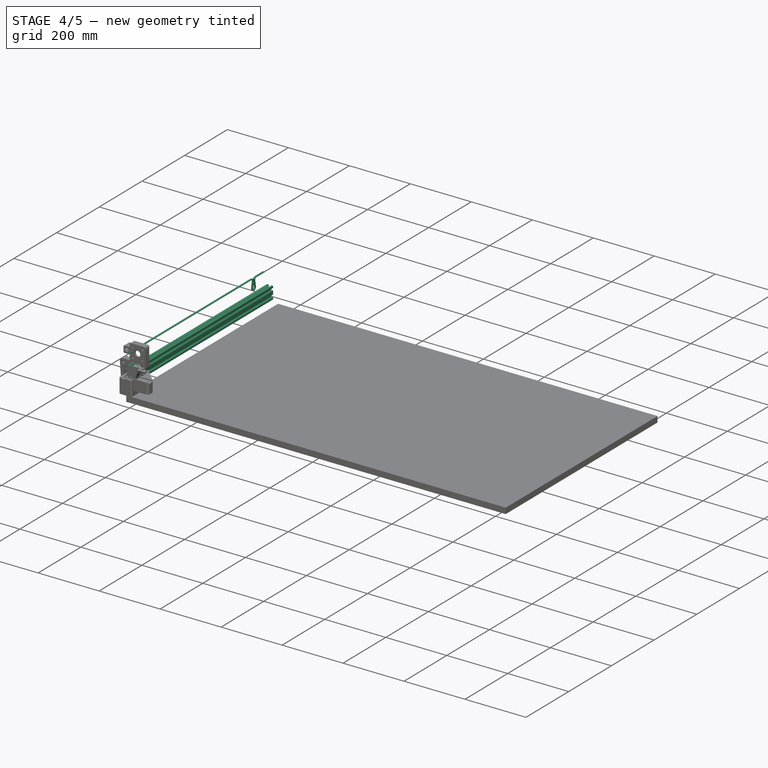
[diagram: stage 4 of 5 — iso view after this stage's code; geometry added in this stage tinted green]
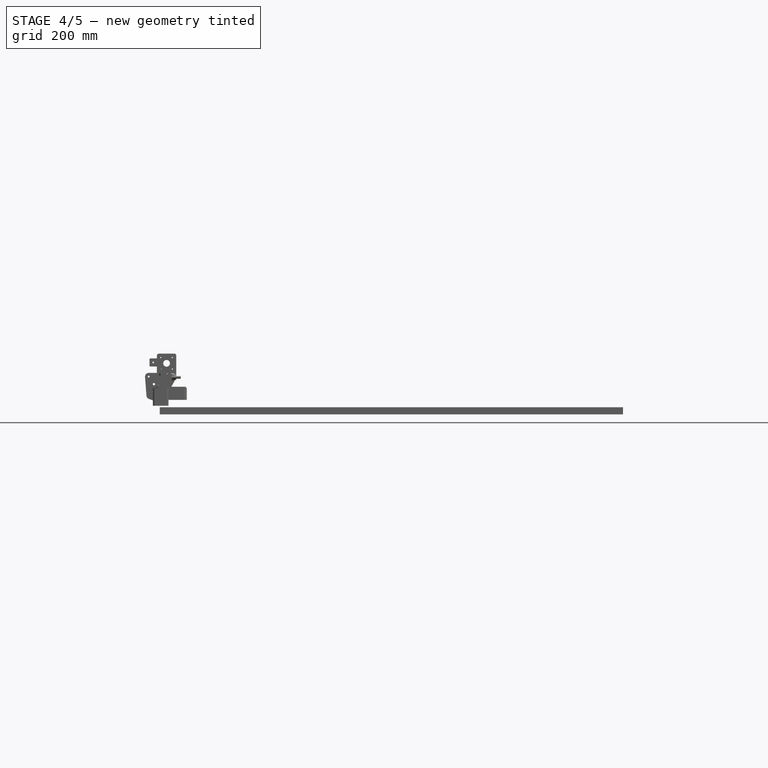
[diagram: stage 4 of 5 — front view after this stage's code; geometry added in this stage tinted green]
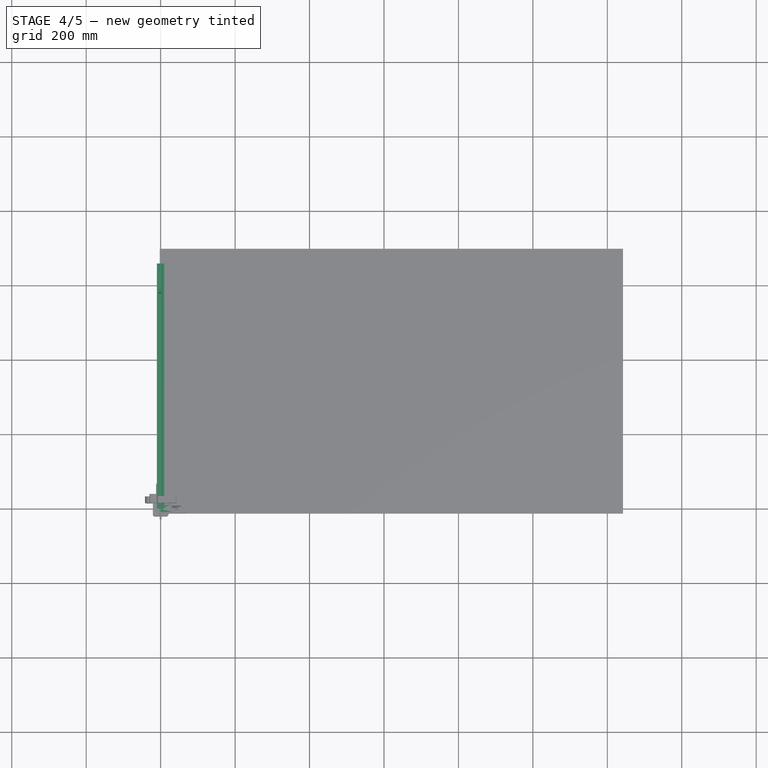
[diagram: stage 4 of 5 — top view after this stage's code; geometry added in this stage tinted green]
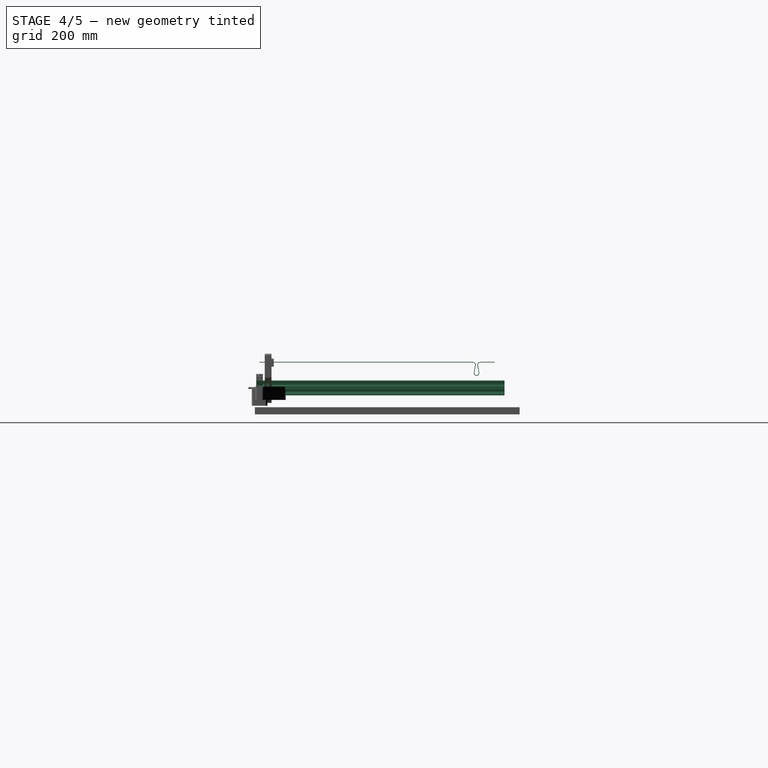
[diagram: stage 4 of 5 — right view after this stage's code; geometry added in this stage tinted green]
FEATURE [Part::Extrusion] Extrude002  label="YRail"
  Base = -> Sketch001
  Dir = (0,-1,2e-16)
  DirMode = 2
  FaceMakerClass = Part::FaceMakerBullseye
  LengthFwd = 658
  LengthRev = 0
  Reversed = true
  Solid = true
  Symmetric = false
  expr: LengthFwd = Spreadsheet.WorkClearanceY * 2 + Spreadsheet.WorkAreaExtentY - 8mm
FEATURE [Sketcher::SketchObject] Sketch017  label="StepperBodyShape"
  FullyConstrained = true
  MapMode = 5
  Support = -> [XY_Plane015]
  sketch-geometry (8):
    g0: LineSegment StartX=-17.1131 StartY=21 StartZ=0 EndX=17.1131 EndY=21 EndZ=0
    g1: LineSegment StartX=21 StartY=17.1131 StartZ=0 EndX=21 EndY=-17.1131 EndZ=0
    g2: LineSegment StartX=17.1131 StartY=-21 StartZ=0 EndX=-17.1131 EndY=-21 EndZ=0
    g3: LineSegment StartX=-21 StartY=-17.1131 StartZ=0 EndX=-21 EndY=17.1131 EndZ=0
    g4: LineSegment StartX=-21 StartY=17.1131 StartZ=0 EndX=-17.1131 EndY=21 EndZ=0
    g5: LineSegment StartX=17.1131 StartY=21 StartZ=0 EndX=21 EndY=17.1131 EndZ=0
    g6: LineSegment StartX=21 StartY=-17.1131 StartZ=0 EndX=17.1131 EndY=-21 EndZ=0
    g7: LineSegment StartX=-21 StartY=-17.1131 StartZ=0 EndX=-17.1131 EndY=-21 EndZ=0
  constraints (24):
    c: Horizontal(g0)
    c: Horizontal(g2)
    c: Vertical(g1)
    c: Vertical(g3)
    c: Coincident(g7,g3)
    c: Coincident(g7,g2)
    c: Coincident(g6,g2)
    c: Coincident(g6,g1)
    c: Coincident(g5,g1)
    c: Coincident(g5,g0)
    c: Coincident(g4,g0)
    c: Coincident(g4,g3)
    c: Angle(g3,g4) = 2.35619
    c: Parallel(g4,g6)
    c: Perpendicular(g4,g7)
    c: Equal(g4,g5)
    c: Equal(g5,g6)
    c: Equal(g6,g7)
    c: Equal(g3,g0)
    c: Equal(g0,g1)
    c: DistanceX(g3,g1) = 42  'Width'
    c: Symmetric(g0,g2,g-1)
    c: Distance(g0,g1) = 53.9
    c: DistanceY(g-1,g0) = 21  'CenterToEdge'
FEATURE [PartDesign::Pad] Pad007  label="StepperBodyPad"
  Direction = (0,0,1)
  Length = 47.9
  Length2 = 100
  Profile = -> Sketch017
  Reversed = true
  Type = 0
FEATURE [PartDesign::Body] Body013  label="NutM5Square"
  Group = -> [Sketch029,Pad012]
  Origin = -> Origin021
  Tip = -> Pad012
FEATURE [App::Link] Link024  label="NutM5Square001"
  LinkPlacement = pos=(32,28,30.4) rot=(-0.57735,-0.57735,0.57735;4.18879rad)
  LinkedObject = -> Body013
  Placement = pos=(32,28,30.4) rot=(-0.57735,-0.57735,0.57735;4.18879rad)
FEATURE [Sketcher::SketchObject] Sketch030  label="BearingNutHoleProfile"
  FullyConstrained = true
  MapMode = 5
  Placement = pos=(0,19,4.2e-15) rot=(0,0.707107,0.707107;3.14159rad)
  Support = -> [DatumPlane]
  expr: Constraints[1] = 20mm + Spreadsheet.VBearingOffset
  expr: Constraints[2] = -(20mm + Spreadsheet.VBearingOffset)
  sketch-geometry (15):
    g0: GeomPoint X=-32 Y=30.35 Z=0
    g1: GeomPoint X=32 Y=30.35 Z=0
    g2: GeomPoint X=0 Y=-30.35 Z=0
    g3: LineSegment StartX=-36.05 StartY=34.4 StartZ=0 EndX=-27.95 EndY=34.4 EndZ=0
    g4: LineSegment StartX=-27.95 StartY=34.4 StartZ=0 EndX=-27.95 EndY=26.3 EndZ=0
    g5: LineSegment StartX=-27.95 StartY=26.3 StartZ=0 EndX=-36.05 EndY=26.3 EndZ=0
    g6: LineSegment StartX=-36.05 StartY=26.3 StartZ=0 EndX=-36.05 EndY=34.4 EndZ=0
    g7: LineSegment StartX=27.95 StartY=34.4 StartZ=0 EndX=36.05 EndY=34.4 EndZ=0
    g8: LineSegment StartX=36.05 StartY=34.4 StartZ=0 EndX=36.05 EndY=26.3 EndZ=0
    g9: LineSegment StartX=36.05 StartY=26.3 StartZ=0 EndX=27.95 EndY=26.3 EndZ=0
    g10: LineSegment StartX=27.95 StartY=26.3 StartZ=0 EndX=27.95 EndY=34.4 EndZ=0
    g11: LineSegment StartX=-4.05 StartY=-26.3 StartZ=0 EndX=4.05 EndY=-26.3 EndZ=0
    g12: LineSegment StartX=4.05 StartY=-26.3 StartZ=0 EndX=4.05 EndY=-34.4 EndZ=0
    g13: LineSegment StartX=4.05 StartY=-34.4 StartZ=0 EndX=-4.05 EndY=-34.4 EndZ=0
    g14: LineSegment StartX=-4.05 StartY=-34.4 StartZ=0 EndX=-4.05 EndY=-26.3 EndZ=0
  constraints (38):
    c: PointOnObject(g2,g-2)
    c: DistanceY(g0) = 30.35
    c: DistanceY(g2) = -30.35
    c: DistanceX(g0,g1) = 64
    c: Coincident(g3,g4)
    c: Coincident(g4,g5)
    c: Coincident(g5,g6)
    c: Coincident(g6,g3)
    c: Horizontal(g3)
    c: Horizontal(g5)
    c: Vertical(g4)
    c: Vertical(g6)
    c: Coincident(g7,g8)
    c: Coincident(g8,g9)
    c: Coincident(g9,g10)
    c: Coincident(g10,g7)
    c: Horizontal(g7)
    c: Horizontal(g9)
    c: Vertical(g8)
    c: Vertical(g10)
    c: Coincident(g11,g12)
    c: Coincident(g12,g13)
    c: Coincident(g13,g14)
    c: Coincident(g14,g11)
    c: Horizontal(g11)
    c: Horizontal(g13)
    c: Vertical(g12)
    c: Vertical(g14)
    c: Equal(g7,g10)
    c: Equal(g10,g3)
    c: Equal(g3,g6)
    c: Equal(g6,g11)
    c: Equal(g11,g14)
    c: Symmetric(g3,g4,g0)
    c: Symmetric(g7,g8,g1)
    c: Symmetric(g11,g12,g2)
    c: DistanceX(g3,g3) = 8.1
    c: Symmetric(g0,g1,g-2)
FEATURE [Sketcher::SketchObject] Sketch031
  FullyConstrained = true
  MapMode = 5
  sketch-geometry (6):
    g0: LineSegment StartX=4.17 StartY=5 StartZ=0 EndX=4.17 EndY=0 EndZ=0
    g1: LineSegment StartX=4.17 StartY=0 StartZ=0 EndX=2.45 EndY=0 EndZ=0
    g2: LineSegment StartX=2.45 StartY=0 StartZ=0 EndX=2.45 EndY=-30 EndZ=0
    g3: LineSegment StartX=2.45 StartY=-30 StartZ=0 EndX=0 EndY=-30 EndZ=0
    g4: LineSegment StartX=4.17 StartY=5 StartZ=0 EndX=0 EndY=5 EndZ=0
    g5: LineSegment StartX=0 StartY=5 StartZ=0 EndX=0 EndY=-30 EndZ=0
  constraints (18):
    c: Coincident(g0,g1)
    c: Horizontal(g1)
    c: Vertical(g0)
    c: PointOnObject(g0,g-1)
    c: Coincident(g2,g3)
    c: Horizontal(g3)
    c: Vertical(g2)
    c: Coincident(g2,g1)
    c: PointOnObject(g3,g-2)
    c: Coincident(g4,g0)
    c: PointOnObject(g4,g-2)
    c: Horizontal(g4)
    c: Coincident(g5,g4)
    c: Coincident(g5,g3)
    c: DistanceX(g4,g4) = 4.17
    c: DistanceY(g0,g0) = 5
    c: DistanceY(g2,g2) = 30
    c: DistanceX(g3,g3) = 2.45
FEATURE [PartDesign::Revolution] Revolution005
  Angle = 360
  Axis = (0,1,0)
  Base = (0,0,0)
  Profile = -> Sketch031
  ReferenceAxis = -> Sketch031 [V_Axis]
FEATURE [App::Link] Link031  label="Foot2"
  LinkPlacement = pos=(990,686,0) rot=(0,0,1;3.14159rad)
  LinkedObject = -> Body007
  Placement = pos=(990,686,0) rot=(0,0,1;3.14159rad)
  expr: .Placement.Base.y = 20mm + Spreadsheet.WorkAreaExtentY + Spreadsheet.WorkClearanceY * 2
FEATURE [App::Part] Part005  label="Feet"
  Group = -> [Link010,Link031,Part__Mirroring,Part__Mirroring001]
  Origin = -> Origin013
  Placement = pos=(0,0,-20) rot=(0,0,1;0rad)
FEATURE [Sketcher::SketchObject] Sketch038  label="IdlerBushingProfile"
  AttachmentOffset = pos=(10,-4.25,0) rot=(0,0,1;0rad)
  FullyConstrained = true
  MapMode = 5
  Placement = pos=(10,-4.25,0) rot=(0,0,1;0rad)
  Support = -> [XY_Plane024]
  expr: .AttachmentOffset.Base.y = -(<<GT2Idler5mmProfile>>.Constraints.Height / 2)
  sketch-geometry (5):
    g0: LineSegment StartX=2.7 StartY=0 StartZ=0 EndX=2.7 EndY=-5.75 EndZ=0
    g1: LineSegment StartX=2.7 StartY=0 StartZ=0 EndX=3.6 EndY=0 EndZ=0
    g2: LineSegment StartX=6.5 StartY=-5.75 StartZ=0 EndX=2.7 EndY=-5.75 EndZ=0
    g3: LineSegment StartX=3.6 StartY=0 StartZ=0 EndX=6.5 EndY=-3.75 EndZ=0
    g4: LineSegment StartX=6.5 StartY=-3.75 StartZ=0 EndX=6.5 EndY=-5.75 EndZ=0
  constraints (15):
    c: PointOnObject(g0,g-1)
    c: Vertical(g0)
    c: Coincident(g1,g0)
    c: PointOnObject(g1,g-1)
    c: Coincident(g3,g1)
    c: Coincident(g2,g4)
    c: Coincident(g2,g0)
    c: Horizontal(g2)
    c: DistanceX(g1) = 3.6
    c: DistanceX(g0) = 2.7
    c: DistanceX(g4) = 6.5
    c: DistanceY(g0,g0) = 5.75
    c: Coincident(g3,g4)
    c: Vertical(g4)
    c: DistanceY(g4,g4) = 2
FEATURE [PartDesign::Revolution] Revolution007
  Angle = 360
  Axis = (0,1,0)
  Base = (10,-4.25,0)
  Profile = -> Sketch038
  ReferenceAxis = -> Sketch038 [V_Axis]
  Reversed = true
FEATURE [PartDesign::Body] Body017  label="Belt"
  Group = -> [Sketch039,Sketch040,AdditivePipe]
  Origin = -> Origin026
  Tip = -> AdditivePipe
FEATURE [Sketcher::SketchObject] Sketch041
  FullyConstrained = true
  MapMode = 5
  Placement = pos=(0,0,0) rot=(0,0.707107,0.707107;3.14159rad)
  Support = -> [XZ_Plane027]
  sketch-geometry (8):
    g0: LineSegment StartX=-26 StartY=28.35 StartZ=0 EndX=-26 EndY=-13 EndZ=0
    g1: LineSegment StartX=-22.5 StartY=-16.5 StartZ=0 EndX=-20 EndY=-16.5 EndZ=0
    g2: LineSegment StartX=-20 StartY=-16.5 StartZ=0 EndX=-20 EndY=0 EndZ=0
    g3: LineSegment StartX=-20 StartY=0 StartZ=0 EndX=0 EndY=0 EndZ=0
    g4: ArcOfCircle CenterX=-22.5 CenterY=-13 CenterZ=0 NormalX=0 NormalY=0 NormalZ=1 AngleXU=0 Radius=3.5 StartAngle=3.14159 EndAngle=4.71239
    g5: LineSegment StartX=0 StartY=0 StartZ=0 EndX=0 EndY=4 EndZ=0
    g6: LineSegment StartX=0 StartY=4 StartZ=0 EndX=-14.7232 EndY=31.2057 EndZ=0
    g7: ArcOfCircle CenterX=-20 CenterY=28.35 CenterZ=0 NormalX=0 NormalY=0 NormalZ=1 AngleXU=0 Radius=6 StartAngle=0.496046 EndAngle=3.14159
  constraints (22):
    c: Vertical(g0)
    c: Horizontal(g1)
    c: Coincident(g2,g1)
    c: PointOnObject(g2,g-1)
    c: Vertical(g2)
    c: Coincident(g3,g2)
    c: DistanceX(g3,g3) = 20
    c: DistanceY(g2,g2) = 16.5
    c: Tangent(g1,g4) = -1.5708
    c: Tangent(g0,g4) = -1.5708
    c: DistanceX(g0,g1) = 6
    c: Radius(g4) = 3.5
    c: DistanceY(g2,g0) = 28.35
    c: Coincident(g3,g-1)
    c: Coincident(g5,g3)
    c: Vertical(g5)
    c: DistanceY(g5,g5) = 4
    c: Coincident(g6,g5)
    c: Coincident(g7,g0)
    c: Horizontal(g7,g0)
    c: Tangent(g6,g7) = -1.5708
    c: PointOnObject(g7,g2)
FEATURE [PartDesign::Pad] Pad013
  Direction = (0,1,-2e-16)
  Length = 18
  Length2 = 100
  Midplane = true
  Placement = pos=(0,0,0) rot=(1,0,0;1.5708rad)
  Profile = -> Sketch041
  Type = 0
FEATURE [Sketcher::SketchObject] Sketch042
  AttachmentOffset = pos=(0,0,-5) rot=(0,0,1;0rad)
  FullyConstrained = true
  MapMode = 5
  Placement = pos=(0,-5,-1.1e-15) rot=(0,0.707107,0.707107;3.14159rad)
  Support = -> [XZ_Plane027]
  sketch-geometry (1):
    g0: Circle CenterX=-20 CenterY=28.35 CenterZ=0 NormalX=0 NormalY=0 NormalZ=1 AngleXU=0 Radius=3.5
  constraints (3):
    c: DistanceY(g-1,g0) = 28.35
    c: DistanceX(g0,g-1) = 20
    c: Diameter(g0) = 7
FEATURE [Sketcher::SketchObject] Sketch043
  AttachmentOffset = pos=(0,0,-5) rot=(0,0,1;0rad)
  FullyConstrained = true
  MapMode = 5
  Placement = pos=(0,-5,-1.1e-15) rot=(0,0.707107,0.707107;3.14159rad)
  Support = -> [XZ_Plane027]
  sketch-geometry (5):
    g0: LineSegment StartX=-26 StartY=2.5 StartZ=0 EndX=-26 EndY=40 EndZ=0
    g1: LineSegment StartX=-26 StartY=40 StartZ=0 EndX=0 EndY=40 EndZ=0
    g2: LineSegment StartX=0 StartY=40 StartZ=0 EndX=0 EndY=6 EndZ=0
    g3: LineSegment StartX=0 StartY=6 StartZ=0 EndX=-22.5 EndY=6 EndZ=0
    g4: ArcOfCircle CenterX=-22.5 CenterY=2.5 CenterZ=0 NormalX=0 NormalY=0 NormalZ=1 AngleXU=0 Radius=3.5 StartAngle=1.5708 EndAngle=3.14159
  constraints (15):
    c: Coincident(g0,g1)
    c: Coincident(g1,g2)
    c: Horizontal(g1)
    c: Vertical(g0)
    c: Vertical(g2)
    c: PointOnObject(g2,g-2)
    c: DistanceY(g-1,g2) = 6
    c: DistanceX(g0,g2) = 26
    c: Coincident(g3,g2)
    c: Horizontal(g3)
    c: Tangent(g4,g3) = -1.5708
    c: Horizontal(g4,g4)
    c: Radius(g4) = 3.5
    c: Coincident(g0,g4)
    c: DistanceY(g-1,g1) = 40
FEATURE [PartDesign::Pocket] Pocket017
  BaseFeature = -> Pad013
  Length = 5
  Length2 = 100
  Placement = pos=(0,0,0) rot=(1,0,0;1.5708rad)
  Profile = -> Sketch043
  Reversed = true
  Type = 1
FEATURE [PartDesign::Pad] Pad014
  BaseFeature = -> Pocket017
  Direction = (0,1,-2e-16)
  Length = 3
  Length2 = 100
  Placement = pos=(0,0,0) rot=(1,0,0;1.5708rad)
  Profile = -> Sketch042
  Type = 0
FEATURE [Sketcher::SketchObject] Sketch044
  AttachmentOffset = pos=(0,0,-5) rot=(0,0,1;0rad)
  FullyConstrained = true
  MapMode = 5
  Placement = pos=(0,-5,-1.1e-15) rot=(0,0.707107,0.707107;3.14159rad)
  Support = -> [XZ_Plane027]
  sketch-geometry (1):
    g0: Circle CenterX=-20 CenterY=28.35 CenterZ=0 NormalX=0 NormalY=0 NormalZ=1 AngleXU=0 Radius=2
  constraints (3):
    c: DistanceY(g-1,g0) = 28.35
    c: DistanceX(g0,g-1) = 20
    c: Diameter(g0) = 4
FEATURE [PartDesign::Pocket] Pocket018
  BaseFeature = -> Pad014
  Length = 5
  Length2 = 100
  Midplane = true
  Placement = pos=(0,0,0) rot=(1,0,0;1.5708rad)
  Profile = -> Sketch044
  Type = 1
FEATURE [Sketcher::SketchObject] Sketch045
  AttachmentOffset = pos=(10,0,0) rot=(0,0,1;0rad)
  FullyConstrained = true
  MapMode = 5
  Placement = pos=(10,0,0) rot=(0,0,1;0rad)
  Support = -> [XY_Plane027]
  sketch-geometry (1):
    g0: Circle CenterX=0 CenterY=0 CenterZ=0 NormalX=0 NormalY=0 NormalZ=1 AngleXU=0 Radius=2.65
  constraints (2):
    c: Coincident(g0,g-1)
    c: Diameter(g0) = 5.3
FEATURE [PartDesign::Pocket] Pocket019
  BaseFeature = -> Pocket018
  Length = 5
  Length2 = 100
  Midplane = true
  Placement = pos=(0,0,0) rot=(1,0,0;1.5708rad)
  Profile = -> Sketch045
  Reversed = true
  Type = 1
FEATURE [Sketcher::SketchObject] Sketch046
  AttachmentOffset = pos=(0,-10,25) rot=(0,0,1;0rad)
  FullyConstrained = true
  MapMode = 5
  Placement = pos=(25,-7.8e-15,-10) rot=(0.57735,0.57735,0.57735;2.0944rad)
  Support = -> [YZ_Plane027]
  sketch-geometry (1):
    g0: Circle CenterX=0 CenterY=0 CenterZ=0 NormalX=0 NormalY=0 NormalZ=1 AngleXU=0 Radius=2.65
  constraints (2):
    c: Coincident(g0,g-1)
    c: Diameter(g0) = 5.3
FEATURE [PartDesign::Pocket] Pocket020
  BaseFeature = -> Pocket019
  Length = 5
  Length2 = 100
  Midplane = true
  Placement = pos=(0,0,0) rot=(1,0,0;1.5708rad)
  Profile = -> Sketch046
  Type = 1
FEATURE [PartDesign::Body] Body018  label="BeltAnchor0"
  Group = -> [Sketch041,Pad013,Sketch042,Sketch043,Pocket017,Pad014,Sketch044,Pocket018,Sketch045,Pocket019,Sketch046,Pocket020]
  Origin = -> Origin027
  Placement = pos=(0,39,0) rot=(0,0,1;0rad)
  Tip = -> Pocket020
FEATURE [Sketcher::SketchObject] Sketch047
  FullyConstrained = false
  MapMode = 5
  Placement = pos=(0,0,0) rot=(0,0.707107,0.707107;3.14159rad)
  Support = -> [XZ_Plane028]
  sketch-geometry (12):
    g0: LineSegment StartX=-22.5 StartY=-16.5 StartZ=0 EndX=-20 EndY=-16.5 EndZ=0
    g1: LineSegment StartX=-20 StartY=-16.5 StartZ=0 EndX=-20 EndY=0 EndZ=0
    g2: LineSegment StartX=-20 StartY=0 StartZ=0 EndX=0 EndY=0 EndZ=0
    g3: ArcOfCircle CenterX=-22.5 CenterY=-13 CenterZ=0 NormalX=0 NormalY=0 NormalZ=1 AngleXU=0 Radius=3.5 StartAngle=3.14159 EndAngle=4.71239
    g4: LineSegment StartX=0 StartY=0 StartZ=0 EndX=0 EndY=6 EndZ=0
    g5: LineSegment StartX=0 StartY=6 StartZ=0 EndX=0 EndY=37.2395 EndZ=0
    g6: LineSegment StartX=-26 StartY=6 StartZ=0 EndX=-26 EndY=-13 EndZ=0
    g7: GeomPoint X=-30 Y=28.35 Z=0
    g8: LineSegment StartX=-30 StartY=19.4605 StartZ=0 EndX=-26 EndY=6 EndZ=0
    g9: GeomPoint X=-7.96887 Y=23.15 Z=0
    g10: LineSegment StartX=-30 StartY=19.4605 StartZ=0 EndX=-30 EndY=37.2395 EndZ=0
    g11: LineSegment StartX=-30 StartY=37.2395 StartZ=0 EndX=0 EndY=37.2395 EndZ=0
  constraints (28):
    c: Horizontal(g0)
    c: Coincident(g1,g0)
    c: Vertical(g1)
    c: Coincident(g2,g1)
    c: DistanceX(g2,g2) = 20
    c: DistanceY(g1,g1) = 16.5
    c: Tangent(g0,g3) = -1.5708
    c: Tangent(g6,g3) = -1.5708
    c: DistanceX(g6,g0) = 6
    c: Radius(g3) = 3.5
    c: Coincident(g2,g-1)
    c: Coincident(g4,g2)
    c: Vertical(g4)
    c: DistanceY(g4,g4) = 6
    c: Coincident(g5,g4)
    c: Coincident(g8,g6)
    c: Horizontal(g8,g4)
    c: Vertical(g6)
    c: Horizontal(g2)
    c: DistanceY(g7) = 28.35
    c: Vertical(g5)
    c: Vertical(g10)
    c: Coincident(g11,g10)
    c: Coincident(g5,g11)
    c: Horizontal(g11)
    c: Coincident(g10,g8)
    c: Symmetric(g10,g8,g7)
    c: DistanceX(g11,g11) = 30
FEATURE [PartDesign::Pad] Pad015
  Direction = (0,1,2e-16)
  Length = 18
  Length2 = 100
  Midplane = true
  Placement = pos=(0,0,0) rot=(1,0,0;1.5708rad)
  Profile = -> Sketch047
  Type = 0
FEATURE [Sketcher::SketchObject] Sketch051
  AttachmentOffset = pos=(10,0,0) rot=(0,0,1;0rad)
  FullyConstrained = true
  MapMode = 5
  Placement = pos=(10,0,0) rot=(0,0,1;0rad)
  Support = -> [XY_Plane028]
  sketch-geometry (1):
    g0: Circle CenterX=0 CenterY=0 CenterZ=0 NormalX=0 NormalY=0 NormalZ=1 AngleXU=0 Radius=2.65
  constraints (2):
    c: Coincident(g0,g-1)
    c: Diameter(g0) = 5.3
FEATURE [PartDesign::Pocket] Pocket023
  BaseFeature = -> Pad015
  Length = 5
  Length2 = 100
  Midplane = true
  Placement = pos=(0,0,0) rot=(1,0,0;1.5708rad)
  Profile = -> Sketch051
  Reversed = true
  Type = 1
FEATURE [Sketcher::SketchObject] Sketch052
  AttachmentOffset = pos=(0,-10,25) rot=(0,0,1;0rad)
  FullyConstrained = true
  MapMode = 5
  Placement = pos=(25,-7.8e-15,-10) rot=(0.57735,0.57735,0.57735;2.0944rad)
  Support = -> [YZ_Plane028]
  sketch-geometry (1):
    g0: Circle CenterX=0 CenterY=0 CenterZ=0 NormalX=0 NormalY=0 NormalZ=1 AngleXU=0 Radius=2.65
  constraints (2):
    c: Coincident(g0,g-1)
    c: Diameter(g0) = 5.3
FEATURE [PartDesign::Pocket] Pocket024
  BaseFeature = -> Pocket023
  Length = 5
  Length2 = 100
  Midplane = true
  Placement = pos=(0,0,0) rot=(1,0,0;1.5708rad)
  Profile = -> Sketch052
  Type = 1
FEATURE [Sketcher::SketchObject] Sketch053
  AttachmentOffset = pos=(10,0,6) rot=(0,0,1;0rad)
  FullyConstrained = true
  MapMode = 5
  Placement = pos=(10,0,6) rot=(0,0,1;0rad)
  Support = -> [XY_Plane028]
  sketch-geometry (1):
    g0: Circle CenterX=0 CenterY=0 CenterZ=0 NormalX=0 NormalY=0 NormalZ=1 AngleXU=0 Radius=4.5
  constraints (2):
    c: Coincident(g0,g-1)
    c: Diameter(g0) = 9
FEATURE [PartDesign::Pocket] Pocket025
  BaseFeature = -> Pocket024
  Length = 5
  Length2 = 100
  Placement = pos=(0,0,0) rot=(1,0,0;1.5708rad)
  Profile = -> Sketch053
  Reversed = true
  Type = 1
FEATURE [Sketcher::SketchObject] Sketch055
  FullyConstrained = true
  MapMode = 5
  Placement = pos=(0,0,0) rot=(-0.57735,0.57735,0.57735;4.18879rad)
  Support = -> [YZ_Plane028]
  sketch-geometry (1):
    g0: Circle CenterX=0 CenterY=28.35 CenterZ=0 NormalX=0 NormalY=0 NormalZ=1 AngleXU=0 Radius=2.15
  constraints (3):
    c: PointOnObject(g0,g-2)
    c: DistanceY(g0) = 28.35
    c: Diameter(g0) = 4.3
FEATURE [PartDesign::Pocket] Pocket026
  BaseFeature = -> Pocket025
  Length = 5
  Length2 = 100
  Placement = pos=(0,0,0) rot=(1,0,0;1.5708rad)
  Profile = -> Sketch055
  Type = 1
FEATURE [Sketcher::SketchObject] Sketch066
  AttachmentOffset = pos=(0,28.35,10) rot=(0,0,1;0rad)
  FullyConstrained = true
  MapMode = 5
  Placement = pos=(10,4.1e-15,28.35) rot=(0.57735,0.57735,0.57735;2.0944rad)
  Support = -> [YZ_Plane028]
  expr: .AttachmentOffset.Base.y = 28.35
  sketch-geometry (4):
    g0: LineSegment StartX=-7.77817 StartY=-9e-16 StartZ=0 EndX=9e-16 EndY=7.77817 EndZ=0
    g1: LineSegment StartX=9e-16 StartY=7.77817 StartZ=0 EndX=7.77817 EndY=9e-16 EndZ=0
    g2: LineSegment StartX=7.77817 StartY=9e-16 StartZ=0 EndX=0 EndY=-7.77817 EndZ=0
    g3: LineSegment StartX=0 StartY=-7.77817 StartZ=0 EndX=-7.77817 EndY=-9e-16 EndZ=0
  constraints (12):
    c: PointOnObject(g0,g-1)
    c: PointOnObject(g0,g-2)
    c: Coincident(g0,g1)
    c: PointOnObject(g1,g-1)
    c: Coincident(g1,g2)
    c: PointOnObject(g2,g-2)
    c: Coincident(g2,g3)
    c: Coincident(g3,g0)
    c: Perpendicular(g0,g3)
    c: Perpendicular(g2,g1)
    c: Perpendicular(g2,g3)
    c: Distance(g0) = 11
FEATURE [PartDesign::Pocket] Pocket031
  BaseFeature = -> Pocket026
  Length = 5
  Length2 = 100
  Placement = pos=(0,0,0) rot=(1,0,0;1.5708rad)
  Profile = -> Sketch066
  Reversed = true
  Type = 1
FEATURE [Sketcher::SketchObject] Sketch071
  AttachmentOffset = pos=(0,0,20.2) rot=(0,0,1;0rad)
  FullyConstrained = true
  MapMode = 5
  Placement = pos=(0,-20.2,-4.5e-15) rot=(1,0,0;1.5708rad)
  Support = -> [XZ_Plane035]
  expr: .AttachmentOffset.Base.z = 20.2
  sketch-geometry (6):
    g0: Circle CenterX=8 CenterY=9 CenterZ=0 NormalX=0 NormalY=0 NormalZ=1 AngleXU=0 Radius=1.3
    g1: Circle CenterX=-8 CenterY=9 CenterZ=0 NormalX=0 NormalY=0 NormalZ=1 AngleXU=0 Radius=1.3
    g2: LineSegment StartX=-6.7 StartY=9 StartZ=0 EndX=6.7 EndY=9 EndZ=0
    g3: LineSegment StartX=9.3 StartY=9 StartZ=0 EndX=20.1 EndY=9 EndZ=0
    g4: Circle CenterX=-8 CenterY=49 CenterZ=0 NormalX=0 NormalY=0 NormalZ=1 AngleXU=0 Radius=1.3
    g5: Circle CenterX=8 CenterY=49 CenterZ=0 NormalX=0 NormalY=0 NormalZ=1 AngleXU=0 Radius=1.3
  constraints (20):
    c: Symmetric(g1,g0,g-2)
    c: Equal(g1,g0)
    c: PointOnObject(g2,g1)
    c: PointOnObject(g2,g0)
    c: Horizontal(g2)
    c: PointOnObject(g0,g2)
    c: Diameter(g1) = 2.6
    c: DistanceX(g2,g2) = 13.4
    c: PointOnObject(g3,g0)
    c: Horizontal(g3)
    c: DistanceX(g3) = 20.1
    c: DistanceX(g3,g3) = 10.8
    c: PointOnObject(g0,g3)
    c: DistanceY(g0) = 9
    c: DistanceY(g4) = 49
    c: Horizontal(g5,g4)
    c: Vertical(g4,g1)
    c: Vertical(g5,g0)
    c: Equal(g4,g5)
    c: Equal(g5,g1)
FEATURE [PartDesign::Pocket] Pocket037
  BaseFeature = -> Pad024
  Length = 5
  Length2 = 100
  Profile = -> Sketch071
  Type = 0
FEATURE [Sketcher::SketchObject] Sketch072
  AttachmentOffset = pos=(0,0,65) rot=(0,0,1;0rad)
  FullyConstrained = true
  MapMode = 5
  Placement = pos=(0,0,65) rot=(0,0,1;0rad)
  Support = -> [XY_Plane035]
  expr: .AttachmentOffset.Base.z = Pad024.Length
  sketch-geometry (8):
    g0: LineSegment StartX=-17.75 StartY=20.35 StartZ=0 EndX=17.75 EndY=20.35 EndZ=0
    g1: LineSegment StartX=20.35 StartY=17.75 StartZ=0 EndX=20.35 EndY=-17.75 EndZ=0
    g2: LineSegment StartX=17.75 StartY=-20.35 StartZ=0 EndX=-17.75 EndY=-20.35 EndZ=0
    g3: LineSegment StartX=-20.35 StartY=-17.75 StartZ=0 EndX=-20.35 EndY=17.75 EndZ=0
    g4: ArcOfCircle CenterX=-17.75 CenterY=17.75 CenterZ=0 NormalX=0 NormalY=0 NormalZ=1 AngleXU=0 Radius=2.6 StartAngle=1.5708 EndAngle=3.14159
    g5: ArcOfCircle CenterX=17.75 CenterY=17.75 CenterZ=0 NormalX=0 NormalY=0 NormalZ=1 AngleXU=0 Radius=2.6 StartAngle=5.07e-14 EndAngle=1.5708
    g6: ArcOfCircle CenterX=17.75 CenterY=-17.75 CenterZ=0 NormalX=0 NormalY=0 NormalZ=1 AngleXU=0 Radius=2.6 StartAngle=4.71239 EndAngle=6.28319
    g7: ArcOfCircle CenterX=-17.75 CenterY=-17.75 CenterZ=0 NormalX=0 NormalY=0 NormalZ=1 AngleXU=0 Radius=2.6 StartAngle=3.14159 EndAngle=4.71239
  constraints (19):
    c: Horizontal(g0)
    c: Horizontal(g2)
    c: Vertical(g1)
    c: Vertical(g3)
    c: Tangent(g3,g4) = 1.5708
    c: Tangent(g0,g4) = 1.5708
    c: Tangent(g0,g5) = 1.5708
    c: Tangent(g1,g5) = 1.5708
    c: Tangent(g1,g6) = 1.5708
    c: Tangent(g2,g6) = 1.5708
    c: Tangent(g2,g7) = 1.5708
    c: Tangent(g3,g7) = 1.5708
    c: DistanceY(g2,g0) = 40.7
    c: DistanceX(g3,g1) = 40.7
    c: Symmetric(g4,g6,g-1)
    c: Equal(g5,g4)
    c: Equal(g4,g7)
    c: Equal(g7,g6)
    c: Radius(g5) = 2.6
FEATURE [PartDesign::Pad] Pad025
  BaseFeature = -> Pocket037
  Direction = (0,0,1)
  Length = 33.5
  Length2 = 100
  Profile = -> Sketch072
  Type = 0
FEATURE [Sketcher::SketchObject] Sketch073
  FullyConstrained = true
  MapMode = 5
  Support = -> [XY_Plane035]
  sketch-geometry (1):
    g0: Circle CenterX=0 CenterY=0 CenterZ=0 NormalX=0 NormalY=0 NormalZ=1 AngleXU=0 Radius=9.05
  constraints (2):
    c: Coincident(g0,g-1)
    c: Diameter(g0) = 18.1
FEATURE [PartDesign::Pad] Pad026
  BaseFeature = -> Pad025
  Direction = (0,0,1)
  Length = 11.66
  Length2 = 100
  Profile = -> Sketch073
  Reversed = true
  Type = 0
FEATURE [Sketcher::SketchObject] Sketch074
  AttachmentOffset = pos=(0,0,98.5) rot=(0,0,1;0rad)
  FullyConstrained = true
  MapMode = 5
  Placement = pos=(0,0,98.5) rot=(0,0,1;0rad)
  Support = -> [XY_Plane035]
  expr: .AttachmentOffset.Base.z = Pad024.Length + Pad025.Length
  sketch-geometry (8):
    g0: Circle CenterX=-16 CenterY=16 CenterZ=0 NormalX=0 NormalY=0 NormalZ=1 AngleXU=0 Radius=2.71
    g1: Circle CenterX=16 CenterY=16 CenterZ=0 NormalX=0 NormalY=0 NormalZ=1 AngleXU=0 Radius=2.71
    g2: Circle CenterX=16 CenterY=-16 CenterZ=0 NormalX=0 NormalY=0 NormalZ=1 AngleXU=0 Radius=2.71
    g3: Circle CenterX=-16 CenterY=-16 CenterZ=0 NormalX=0 NormalY=0 NormalZ=1 AngleXU=0 Radius=2.71
    g4: LineSegment StartX=-16 StartY=16 StartZ=0 EndX=-16 EndY=-16 EndZ=0
    g5: LineSegment StartX=-16 StartY=-16 StartZ=0 EndX=16 EndY=-16 EndZ=0
    g6: LineSegment StartX=16 StartY=-16 StartZ=0 EndX=16 EndY=16 EndZ=0
    g7: LineSegment StartX=16 StartY=16 StartZ=0 EndX=-16 EndY=16 EndZ=0
  constraints (19):
    c: Symmetric(g0,g2,g-1)
    c: Coincident(g4,g0)
    c: Coincident(g4,g3)
    c: Vertical(g4)
    c: Coincident(g5,g3)
    c: Coincident(g5,g2)
    c: Horizontal(g5)
    c: Coincident(g6,g2)
    c: Coincident(g6,g1)
    c: Vertical(g6)
    c: Coincident(g7,g1)
    c: Coincident(g7,g0)
    c: Horizontal(g7)
    c: DistanceX(g7,g7) = 32
    c: Equal(g7,g4)
    c: Diameter(g0) = 5.42
    c: Equal(g0,g1)
    c: Equal(g1,g2)
    c: Equal(g2,g3)
FEATURE [PartDesign::Pad] Pad027
  BaseFeature = -> Pad026
  Direction = (0,0,1)
  Length = 2.85
  Length2 = 100
  Profile = -> Sketch074
  Type = 0
FEATURE [PartDesign::Body] Body024  label="BoltM5_16"
  Group = -> [Sketch077,Revolution008]
  Origin = -> Origin037
  Tip = -> Revolution008
FEATURE [Sketcher::SketchObject] Sketch078
  FullyConstrained = true
  MapMode = 5
  sketch-geometry (6):
    g0: LineSegment StartX=4.17 StartY=5 StartZ=0 EndX=4.17 EndY=0 EndZ=0
    g1: LineSegment StartX=4.17 StartY=0 StartZ=0 EndX=2.45 EndY=0 EndZ=0
    g2: LineSegment StartX=2.45 StartY=0 StartZ=0 EndX=2.45 EndY=-11.8 EndZ=0
    g3: LineSegment StartX=2.45 StartY=-11.8 StartZ=0 EndX=0 EndY=-11.8 EndZ=0
    g4: LineSegment StartX=4.17 StartY=5 StartZ=0 EndX=0 EndY=5 EndZ=0
    g5: LineSegment StartX=0 StartY=5 StartZ=0 EndX=0 EndY=-11.8 EndZ=0
  constraints (18):
    c: Coincident(g0,g1)
    c: Horizontal(g1)
    c: Vertical(g0)
    c: PointOnObject(g0,g-1)
    c: Coincident(g2,g3)
    c: Horizontal(g3)
    c: Vertical(g2)
    c: Coincident(g2,g1)
    c: PointOnObject(g3,g-2)
    c: Coincident(g4,g0)
    c: PointOnObject(g4,g-2)
    c: Horizontal(g4)
    c: Coincident(g5,g4)
    c: Coincident(g5,g3)
    c: DistanceX(g4,g4) = 4.17
    c: DistanceY(g0,g0) = 5
    c: DistanceY(g2,g2) = 11.8
    c: DistanceX(g3,g3) = 2.45
FEATURE [PartDesign::Revolution] Revolution009
  Angle = 360
  Axis = (0,1,0)
  Base = (0,0,0)
  Profile = -> Sketch078
  ReferenceAxis = -> Sketch078 [V_Axis]
FEATURE [Sketcher::SketchObject] Sketch101
  AttachmentOffset = pos=(0,10,30) rot=(0,0,1;1.5708rad)
  FullyConstrained = true
  MapMode = 5
  Placement = pos=(-30,8.9e-15,10) rot=(0,1,0;4.71239rad)
  Support = -> [YZ_Plane043]
  sketch-geometry (2):
    g0: Circle CenterX=0 CenterY=28.5 CenterZ=0 NormalX=0 NormalY=0 NormalZ=1 AngleXU=0 Radius=2.63
    g1: Circle CenterX=0 CenterY=-3.5 CenterZ=0 NormalX=0 NormalY=0 NormalZ=1 AngleXU=0 Radius=2.63
  constraints (6):
    c: PointOnObject(g0,g-2)
    c: PointOnObject(g1,g-2)
    c: Diameter(g0) = 5.26
    c: Equal(g0,g1)
    c: DistanceY(g1,g-1) = 3.5
    c: DistanceY(g0) = 28.5
FEATURE [Sketcher::SketchObject] Sketch102  label="YBeltPath"
  FullyConstrained = false
  MapMode = 5
  Placement = pos=(0,0,0) rot=(0.57735,0.57735,0.57735;2.0944rad)
  Support = -> [YZ_Plane044]
  expr: Constraints[13] = <<YBlockAssy>>.Placement.Base.y
  sketch-geometry (8):
    g0: LineSegment StartX=0 StartY=68.8 StartZ=0 EndX=573 EndY=68.8 EndZ=0
    g1: LineSegment StartX=593 StartY=68.8 StartZ=0 EndX=631.825 EndY=68.8 EndZ=0
    g2: LineSegment StartX=583 StartY=68.8 StartZ=0 EndX=583 EndY=40 EndZ=0
    g3: ArcOfCircle CenterX=573 CenterY=62 CenterZ=0 NormalX=0 NormalY=0 NormalZ=1 AngleXU=0 Radius=6.8 StartAngle=6.11108 EndAngle=7.85398
    g4: ArcOfCircle CenterX=593 CenterY=62 CenterZ=0 NormalX=0 NormalY=0 NormalZ=1 AngleXU=0 Radius=6.8 StartAngle=1.5708 EndAngle=3.3137
    g5: ArcOfCircle CenterX=583 CenterY=40 CenterZ=0 NormalX=0 NormalY=0 NormalZ=1 AngleXU=0 Radius=6.82 StartAngle=2.96948 EndAngle=6.45529
    g6: LineSegment StartX=576.281 StartY=41.168 StartZ=0 EndX=579.7 EndY=60.8354 EndZ=0
    g7: LineSegment StartX=586.3 StartY=60.8354 StartZ=0 EndX=589.719 EndY=41.168 EndZ=0
  constraints (20):
    c: Horizontal(g0)
    c: Horizontal(g1)
    c: Vertical(g2)
    c: DistanceY(g2) = 68.8
    c: PointOnObject(g2,g0)
    c: DistanceX(g3,g2) = 10
    c: Symmetric(g4,g3,g2)
    c: DistanceY(g3) = 62
    c: Equal(g4,g3)
    c: Tangent(g3,g0) = 1.5708
    c: Tangent(g4,g1) = 1.5708
    c: Coincident(g5,g2)
    c: DistanceY(g-1,g5) = 40
    c: DistanceX(g2) = 583
    c: Tangent(g7,g4) = -1.5708
    c: Tangent(g6,g3) = -1.5708
    c: Tangent(g6,g5) = 1.5708
    c: Tangent(g7,g5) = 1.5708
    c: Radius(g5) = 6.82
    c: PointOnObject(g0,g-2)
FEATURE [Sketcher::SketchObject] Sketch103  label="YBeltProfile"
  AttachmentOffset = pos=(-2,69,0) rot=(0,0,1;0rad)
  FullyConstrained = true
  MapMode = 5
  Placement = pos=(-2,-1.53e-14,69) rot=(1,0,0;1.5708rad)
  Support = -> [XZ_Plane044]
  sketch-geometry (4):
    g0: LineSegment StartX=-3 StartY=0.8 StartZ=0 EndX=3 EndY=0.8 EndZ=0
    g1: LineSegment StartX=3 StartY=0.8 StartZ=0 EndX=3 EndY=-0.8 EndZ=0
    g2: LineSegment StartX=3 StartY=-0.8 StartZ=0 EndX=-3 EndY=-0.8 EndZ=0
    g3: LineSegment StartX=-3 StartY=-0.8 StartZ=0 EndX=-3 EndY=0.8 EndZ=0
  constraints (11):
    c: Coincident(g0,g1)
    c: Coincident(g1,g2)
    c: Coincident(g2,g3)
    c: Coincident(g3,g0)
    c: Horizontal(g0)
    c: Horizontal(g2)
    c: Vertical(g1)
    c: Vertical(g3)
    c: Symmetric(g0,g1,g-1)
    c: DistanceY(g3,g3) = 1.6
    c: DistanceX(g0,g0) = 6
FEATURE [PartDesign::AdditivePipe] AdditivePipe001
  AuxilleryCurvelinear = true
  AuxillerySpineTangent = false
  Binormal = (0,0,0)
  Mode = 0
  Placement = pos=(0,0,0) rot=(1,0,0;1.5708rad)
  Profile = -> Sketch103
  Spine = -> Sketch102
  SpineTangent = false
  Transformation = 0
  Transition = 0
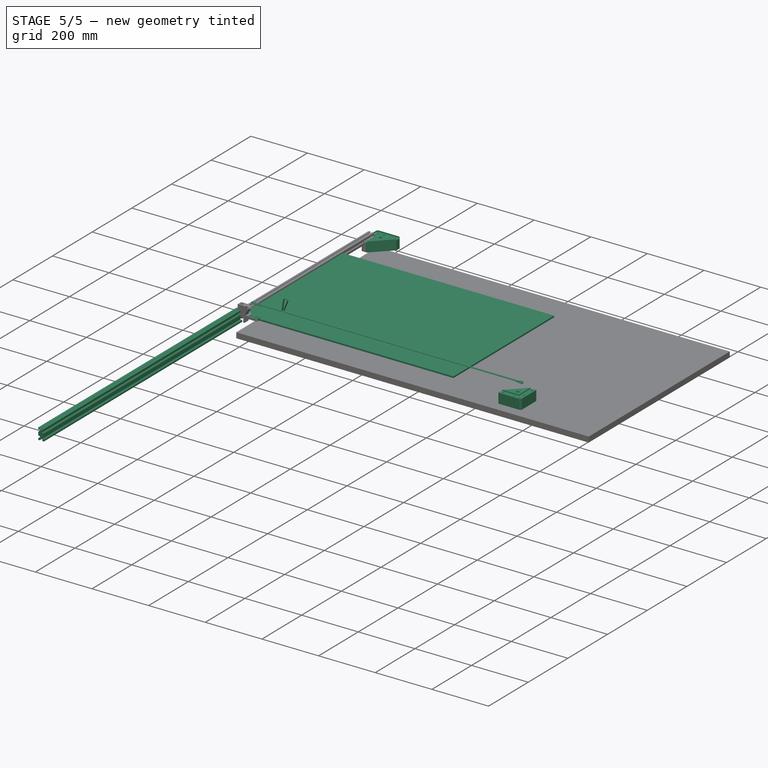
[diagram: stage 5 of 5 — iso view after this stage's code; geometry added in this stage tinted green]
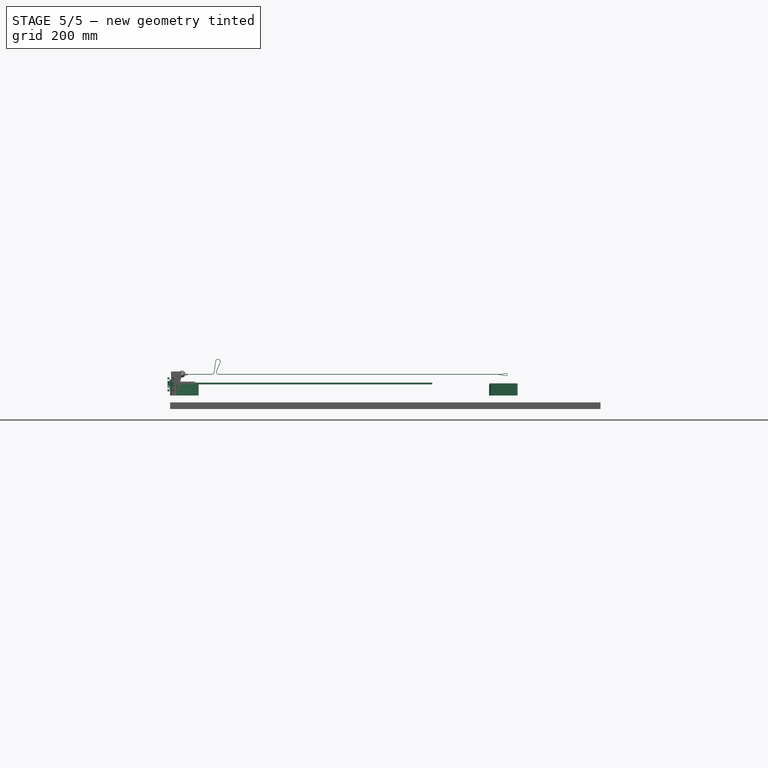
[diagram: stage 5 of 5 — front view after this stage's code; geometry added in this stage tinted green]
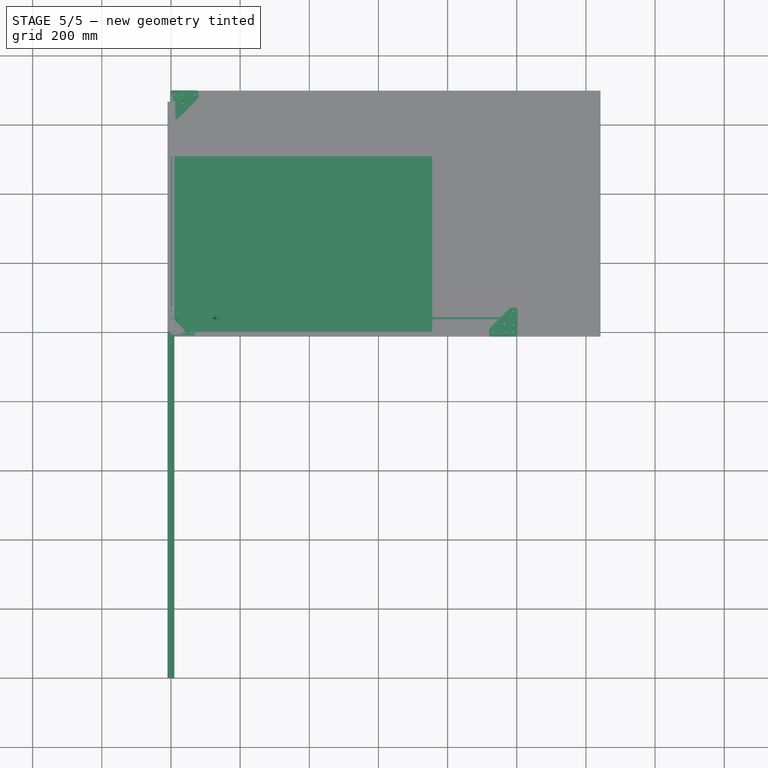
[diagram: stage 5 of 5 — top view after this stage's code; geometry added in this stage tinted green]
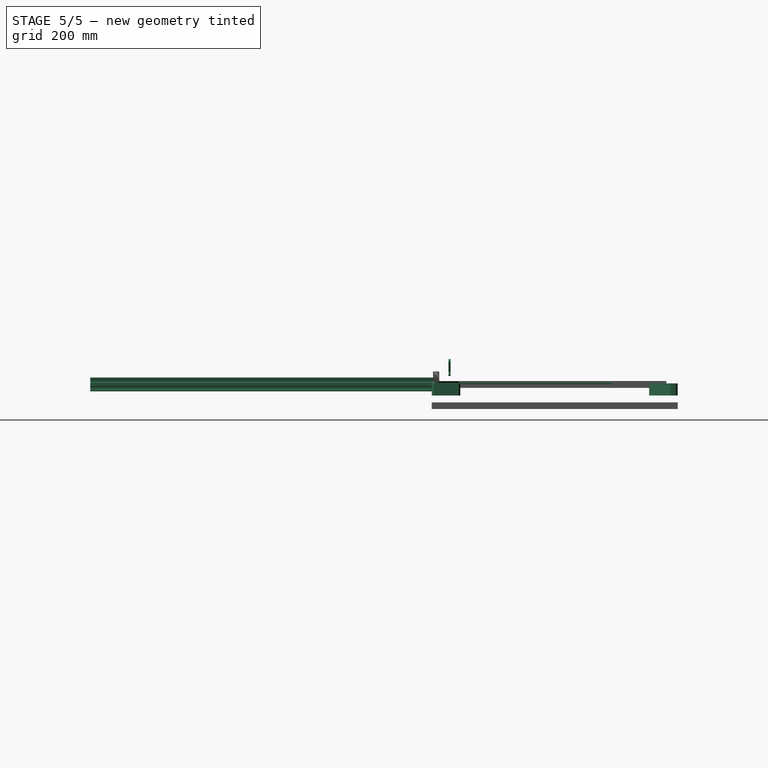
[diagram: stage 5 of 5 — right view after this stage's code; geometry added in this stage tinted green]
FEATURE [Part::Box] Box001  label="ExampleFoamBoard"
  AttacherType = Attacher::AttachEngine3D
  Height = 5.21
  Length = 755.65
  Width = 508
FEATURE [Part::Box] Box  label="MdfBase"
  AttacherType = Attacher::AttachEngine3D
  Height = 19.05
  Length = 1244.6
  Placement = pos=(-2.5,-12.5,-71) rot=(0,0,1;0rad)
  Width = 711
  expr: Width = 45mm + Spreadsheet.WorkAreaExtentY + Spreadsheet.WorkClearanceY * 2
FEATURE [Sketcher::SketchObject] Sketch006  label="BraceProfile"
  FullyConstrained = true
  MapMode = 5
  Support = -> [XY_Plane009]
  sketch-geometry (20):
    g0: LineSegment StartX=-10 StartY=63 StartZ=0 EndX=-10 EndY=-3 EndZ=0
    g1: LineSegment StartX=-3 StartY=-10 StartZ=0 EndX=63 EndY=-10 EndZ=0
    g2: LineSegment StartX=70 StartY=-3 StartZ=0 EndX=70 EndY=3 EndZ=0
    g3: LineSegment StartX=67.9497 StartY=7.94975 StartZ=0 EndX=7.94975 EndY=67.9497 EndZ=0
    g4: LineSegment StartX=3 StartY=70 StartZ=0 EndX=-3 EndY=70 EndZ=0
    g5: Circle CenterX=40 CenterY=0 CenterZ=0 NormalX=0 NormalY=0 NormalZ=1 AngleXU=0 Radius=4
    g6: Circle CenterX=60 CenterY=0 CenterZ=0 NormalX=0 NormalY=0 NormalZ=1 AngleXU=0 Radius=4
    g7: Circle CenterX=0 CenterY=40 CenterZ=0 NormalX=0 NormalY=0 NormalZ=1 AngleXU=0 Radius=4
    g8: Circle CenterX=0 CenterY=60 CenterZ=0 NormalX=0 NormalY=0 NormalZ=1 AngleXU=0 Radius=4
    g9: LineSegment StartX=10 StartY=100 StartZ=0 EndX=10 EndY=-10 EndZ=0
    g10: LineSegment StartX=10 StartY=-10 StartZ=0 EndX=-10 EndY=-10 EndZ=0
    g11: LineSegment StartX=-10 StartY=-10 StartZ=0 EndX=-10 EndY=100 EndZ=0
    g12: LineSegment StartX=10 StartY=10 StartZ=0 EndX=160 EndY=10 EndZ=0
    g13: LineSegment StartX=160 StartY=-10 StartZ=0 EndX=10 EndY=-10 EndZ=0
    g14: LineSegment StartX=10 StartY=-10 StartZ=0 EndX=10 EndY=10 EndZ=0
    g15: ArcOfCircle CenterX=-3 CenterY=-3 CenterZ=0 NormalX=0 NormalY=0 NormalZ=1 AngleXU=0 Radius=7 StartAngle=3.14159 EndAngle=4.71239
    g16: ArcOfCircle CenterX=-3 CenterY=63 CenterZ=0 NormalX=0 NormalY=0 NormalZ=1 AngleXU=0 Radius=7 StartAngle=1.5708 EndAngle=3.14159
    g17: ArcOfCircle CenterX=3 CenterY=63 CenterZ=0 NormalX=0 NormalY=0 NormalZ=1 AngleXU=0 Radius=7 StartAngle=0.785398 EndAngle=1.5708
    g18: ArcOfCircle CenterX=63 CenterY=3 CenterZ=0 NormalX=0 NormalY=0 NormalZ=1 AngleXU=0 Radius=7 StartAngle=0 EndAngle=0.785398
    g19: ArcOfCircle CenterX=63 CenterY=-3 CenterZ=0 NormalX=0 NormalY=0 NormalZ=1 AngleXU=0 Radius=7 StartAngle=4.71239 EndAngle=6.28319
  constraints (53):
    c: Vertical(g0)
    c: Horizontal(g1)
    c: Vertical(g2)
    c: Horizontal(g4)
    c: PointOnObject(g5,g-1)
    c: PointOnObject(g6,g-1)
    c: PointOnObject(g7,g-2)
    c: PointOnObject(g8,g-2)
    c: Radius(g7) = 4
    c: Equal(g8,g7)
    c: Equal(g7,g5)
    c: Equal(g5,g6)
    c: Distance(g5,g6) = 20
    c: Distance(g7,g8) = 20
    c: Coincident(g9,g10)
    c: Coincident(g10,g11)
    c: Vertical(g9)
    c: Vertical(g11)
    c: DistanceY(g10,g-1) = 10
    c: DistanceX(g10,g10) = 20
    c: Symmetric(g10,g9,g-2)
    c: DistanceY(g11,g11) = 110
    c: Equal(g9,g11)
    c: Coincident(g13,g14)
    c: Coincident(g14,g12)
    c: Horizontal(g12)
    c: Horizontal(g13)
    c: Vertical(g14)
    c: PointOnObject(g13,g10)
    c: DistanceX(g13,g13) = 150
    c: Equal(g13,g12)
    c: Symmetric(g12,g9,g-1)
    c: DistanceX(g-1,g5) = 40
    c: DistanceY(g-1,g7) = 40
    c: Tangent(g0,g15) = -1.5708
    c: Tangent(g1,g15) = -1.5708
    c: Tangent(g0,g16) = -1.5708
    c: Tangent(g4,g16) = -1.5708
    c: Tangent(g4,g17) = -1.5708
    c: Tangent(g3,g17) = -1.5708
    c: Tangent(g3,g18) = -1.5708
    c: Tangent(g2,g18) = -1.5708
    c: Tangent(g2,g19) = -1.5708
    c: Tangent(g1,g19) = -1.5708
    c: Equal(g18,g15)
    c: Equal(g15,g16)
    c: PointOnObject(g0,g11)
    c: Radius(g16) = 7
    c: DistanceY(g8,g4) = 10
    c: PointOnObject(g1,g13)
    c: DistanceX(g6,g2) = 10
    c: Symmetric(g17,g16,g-2)
    c: Symmetric(g18,g19,g-1)
FEATURE [PartDesign::Pad] Pad002
  Direction = (0,0,1)
  Length = 8
  Length2 = 100
  Profile = -> Sketch006
  Type = 0
FEATURE [PartDesign::Body] Body005  label="Brace"
  Group = -> [Sketch006,Pad002]
  Origin = -> Origin009
  Placement = pos=(-500,-200,200) rot=(0,0,1;0rad)
  Tip = -> Pad002
FEATURE [Sketcher::SketchObject] Sketch007  label="Block2Profile"
  AttachmentOffset = pos=(0,10,0) rot=(0,0,1;0rad)
  FullyConstrained = true
  MapMode = 5
  Placement = pos=(-2.2e-15,2.2e-15,10) rot=(0.57735,0.57735,0.57735;2.0944rad)
  Support = -> [YZ_Plane010]
  sketch-geometry (39):
    g0: LineSegment StartX=-32.52 StartY=5.09 StartZ=0 EndX=-8.48 EndY=5.09 EndZ=0
    g1: LineSegment StartX=-8.48 StartY=5.09 StartZ=0 EndX=-8.48 EndY=-5.09 EndZ=0
    g2: LineSegment StartX=-8.48 StartY=-5.09 StartZ=0 EndX=-32.52 EndY=-5.09 EndZ=0
    g3: LineSegment StartX=-32.52 StartY=-5.09 StartZ=0 EndX=-32.52 EndY=5.09 EndZ=0
    g4: LineSegment StartX=8.48 StartY=5.09 StartZ=0 EndX=32.52 EndY=5.09 EndZ=0
    g5: LineSegment StartX=32.52 StartY=5.09 StartZ=0 EndX=32.52 EndY=-5.09 EndZ=0
    g6: LineSegment StartX=32.52 StartY=-5.09 StartZ=0 EndX=8.48 EndY=-5.09 EndZ=0
    g7: LineSegment StartX=8.48 StartY=-5.09 StartZ=0 EndX=8.48 EndY=5.09 EndZ=0
    g8: LineSegment StartX=-5.09 StartY=32.52 StartZ=0 EndX=5.09 EndY=32.52 EndZ=0
    g9: LineSegment StartX=5.09 StartY=32.52 StartZ=0 EndX=5.09 EndY=8.48 EndZ=0
    g10: LineSegment StartX=5.09 StartY=8.48 StartZ=0 EndX=-5.09 EndY=8.48 EndZ=0
    g11: LineSegment StartX=-5.09 StartY=8.48 StartZ=0 EndX=-5.09 EndY=32.52 EndZ=0
    g12: GeomPoint X=0 Y=20.5 Z=0
    g13: GeomPoint X=-20.5 Y=0 Z=0
    g14: GeomPoint X=20.5 Y=0 Z=0
    g15: LineSegment StartX=0 StartY=0 StartZ=0 EndX=0 EndY=20.5 EndZ=0
    g16: LineSegment StartX=-20.5 StartY=0 StartZ=0 EndX=0 EndY=0 EndZ=0
    g17: LineSegment StartX=0 StartY=0 StartZ=0 EndX=20.5 EndY=0 EndZ=0
    g18: LineSegment StartX=-12 StartY=6.09 StartZ=0 EndX=-28.5 EndY=6.09 EndZ=0
    g19: LineSegment StartX=-28.5 StartY=6.09 StartZ=0 EndX=-28.5 EndY=14.09 EndZ=0
    g20: LineSegment StartX=1.12e-14 StartY=34.02 StartZ=0 EndX=-6.09 EndY=34.02 EndZ=0
    g21: LineSegment StartX=-6.09 StartY=34.02 StartZ=0 EndX=-6.09 EndY=12 EndZ=0
    g22: LineSegment StartX=-6.09 StartY=34.02 StartZ=0 EndX=-14.09 EndY=34.02 EndZ=0
    g23: LineSegment StartX=-28.5 StartY=14.09 StartZ=0 EndX=-19.7222 EndY=14.09 EndZ=0
    g24: LineSegment StartX=-14.09 StartY=19.7222 StartZ=0 EndX=-14.09 EndY=34.02 EndZ=0
    g25: LineSegment StartX=-12 StartY=6.09 StartZ=0 EndX=-12 EndY=12 EndZ=0
    g26: LineSegment StartX=-12 StartY=12 StartZ=0 EndX=-6.09 EndY=12 EndZ=0
    g27: ArcOfCircle CenterX=-12 CenterY=12 CenterZ=0 NormalX=0 NormalY=0 NormalZ=1 AngleXU=0 Radius=8 StartAngle=1.83511 EndAngle=2.87728
    g28: LineSegment StartX=-18.07 StartY=-5.09 StartZ=0 EndX=-18.07 EndY=14.91 EndZ=0
    g29: LineSegment StartX=-18.07 StartY=14.91 StartZ=0 EndX=-22.93 EndY=14.91 EndZ=0
    g30: LineSegment StartX=-22.93 StartY=14.91 StartZ=0 EndX=-22.93 EndY=-5.09 EndZ=0
    g31: LineSegment StartX=-24.68 StartY=-5.09 StartZ=0 EndX=-22.93 EndY=-5.09 EndZ=0
    g32: LineSegment StartX=-16.32 StartY=-5.09 StartZ=0 EndX=-16.32 EndY=-10.09 EndZ=0
    g33: LineSegment StartX=-16.32 StartY=-10.09 StartZ=0 EndX=-24.68 EndY=-10.09 EndZ=0
    g34: LineSegment StartX=-24.68 StartY=-10.09 StartZ=0 EndX=-24.68 EndY=-5.09 EndZ=0
    g35: LineSegment StartX=-18.07 StartY=-5.09 StartZ=0 EndX=-16.32 EndY=-5.09 EndZ=0
    g36: LineSegment StartX=-20.5 StartY=0 StartZ=0 EndX=-20.5 EndY=5.09 EndZ=0
    g37: ArcOfCircle CenterX=1.12e-14 CenterY=34.02 CenterZ=0 NormalX=0 NormalY=0 NormalZ=1 AngleXU=0 Radius=14.09 StartAngle=1.5708 EndAngle=3.14159
    g38: LineSegment StartX=1.12e-14 StartY=48.11 StartZ=0 EndX=1.12e-14 EndY=34.02 EndZ=0
  constraints (106):
    c: Coincident(g0,g1)
    c: Coincident(g1,g2)
    c: Coincident(g2,g3)
    c: Coincident(g3,g0)
    c: Horizontal(g0)
    c: Horizontal(g2)
    c: Vertical(g1)
    c: Vertical(g3)
    c: Coincident(g4,g5)
    c: Coincident(g5,g6)
    c: Coincident(g6,g7)
    c: Coincident(g7,g4)
    c: Horizontal(g4)
    c: Horizontal(g6)
    c: Vertical(g5)
    c: Vertical(g7)
    c: Coincident(g8,g9)
    c: Coincident(g9,g10)
    c: Coincident(g10,g11)
    c: Coincident(g11,g8)
    c: Horizontal(g10)
    c: Vertical(g9)
    c: Vertical(g11)
    c: DistanceY(g11,g11) = 24.04
    c: PointOnObject(g12,g-2)
    c: Symmetric(g8,g9,g12)
    c: Horizontal(g8)
    c: DistanceX(g8,g8) = 10.18
    c: PointOnObject(g13,g-1)
    c: Symmetric(g0,g1,g13)
    c: PointOnObject(g14,g-1)
    c: Symmetric(g4,g5,g14)
    c: Equal(g4,g0)
    c: Equal(g0,g11)
    c: Equal(g7,g1)
    c: Equal(g1,g8)
    c: Coincident(g15,g-1)
    c: Coincident(g15,g12)
    c: DistanceY(g15,g15) = 20.5
    c: Coincident(g16,g13)
    c: Coincident(g16,g-1)
    c: Coincident(g17,g-1)
    c: Coincident(g17,g14)
    c: Equal(g16,g17)
    c: Equal(g17,g15)
    c: Horizontal(g18)
    c: Coincident(g18,g19)
    c: Vertical(g19)
    c: Horizontal(g20)
    c: Coincident(g20,g21)
    c: Vertical(g21)
    c: Coincident(g22,g20)
    c: DistanceY(g8,g20) = 1.5
    c: DistanceX(g20,g8) = 1
    c: Coincident(g19,g23)
    c: Horizontal(g23)
    c: Vertical(g24)
    c: Coincident(g18,g25)
    c: Vertical(g25)
    c: Coincident(g25,g26)
    c: Horizontal(g26)
    c: Coincident(g21,g26)
    c: Equal(g19,g22)
    c: DistanceY(g0,g18) = 1
    c: DistanceX(g18,g-1) = 12
    c: DistanceY(g-1,g21) = 12
    c: Coincident(g27,g25)
    c: Coincident(g27,g24)
    c: Coincident(g27,g23)
    c: Coincident(g28,g29)
    c: Coincident(g29,g30)
    c: Horizontal(g29)
    c: Vertical(g28)
    c: Vertical(g30)
    c: DistanceX(g29,g29) = 4.86
    c: DistanceY(g30,g30) = 20
    c: Coincident(g35,g32)
    c: Coincident(g32,g33)
    c: Coincident(g33,g34)
    c: Coincident(g34,g31)
    c: Horizontal(g31)
    c: Horizontal(g33)
    c: Vertical(g32)
    c: Vertical(g34)
    c: Tangent(g31,g35)
    c: Coincident(g31,g30)
    c: Coincident(g35,g28)
    c: DistanceY(g34,g34) = 5
    c: DistanceX(g33,g33) = 8.36
    c: Equal(g35,g31)
    c: Coincident(g36,g13)
    c: PointOnObject(g36,g0)
    c: Symmetric(g28,g29,g36)
    c: Distance(g22) = 8
    c: Coincident(g22,g24)
    c: PointOnObject(g37,g-2)
    c: Coincident(g37,g24)
    c: Horizontal(g22)
    c: Radius(g27) = 8
    c: DistanceX(g19,g36) = 8
    c: Coincident(g20,g37)
    c: Coincident(g38,g37)
    c: Coincident(g38,g20)
    c: Vertical(g38)
    c: PointOnObject(g30,g2)
    c: DistanceY(g-1,g18) = 6.09
FEATURE [PartDesign::Pad] Pad003
  Direction = (1,-2e-16,3e-16)
  Length = 60
  Length2 = 100
  Midplane = true
  Placement = pos=(0,0,0) rot=(0.57735,0.57735,0.57735;2.0944rad)
  Profile = -> Sketch007
  Type = 0
  expr: Length = <<XBearing2Props>>.BearingSpacingHoriz + 30mm
FEATURE [PartDesign::Mirrored] Mirrored
  BaseFeature = -> Pad003
  MirrorPlane = -> Sketch007 [V_Axis]
  Originals = -> [Pad003]
  Overlap = 0
  Placement = pos=(0,0,0) rot=(0.57735,0.57735,0.57735;2.0944rad)
FEATURE [App::Link] Link004  label="BearingX3"
  LinkPlacement = pos=(15,0,30.35) rot=(0,0,-1;1.5708rad)
  LinkedObject = -> Body
  Placement = pos=(15,0,30.35) rot=(0,0,-1;1.5708rad)
  expr: .Placement.Base.x = <<XBearing2Props>>.BearingSpacingHoriz / 2
  expr: .Placement.Base.z = <<TopAxleHoles>>.Placement.Base.z
FEATURE [App::Link] Link005  label="BearingX4"
  LinkPlacement = pos=(-15,0,30.35) rot=(0,0,1;1.5708rad)
  LinkedObject = -> Body
  Placement = pos=(-15,0,30.35) rot=(0,0,1;1.5708rad)
  expr: .Placement.Base.x = -(<<XBearing2Props>>.BearingSpacingHoriz / 2)
  expr: .Placement.Base.z = <<TopAxleHoles>>.Placement.Base.z
FEATURE [App::Link] Link006  label="BearingX5"
  LinkPlacement = pos=(15,-20.35,10) rot=(0,1,0;1.5708rad)
  LinkedObject = -> Body
  Placement = pos=(15,-20.35,10) rot=(0,1,0;1.5708rad)
  expr: .Placement.Base.y = -(10mm + Spreadsheet.VBearingOffset)
  expr: .Placement.Base.x = <<XBearing2Props>>.BearingSpacingHoriz / 2
FEATURE [App::Link] Link007  label="BearingX6"
  LinkPlacement = pos=(-15,-20.35,10) rot=(0,1,0;1.5708rad)
  LinkedObject = -> Body
  Placement = pos=(-15,-20.35,10) rot=(0,1,0;1.5708rad)
  expr: .Placement.Base.y = -(10mm + Spreadsheet.VBearingOffset)
  expr: .Placement.Base.x = -(<<XBearing2Props>>.BearingSpacingHoriz / 2)
FEATURE [App::Link] Link008  label="BearingX7"
  LinkPlacement = pos=(15,20.35,10) rot=(0,-1,0;1.5708rad)
  LinkedObject = -> Body
  Placement = pos=(15,20.35,10) rot=(0,-1,0;1.5708rad)
  expr: .Placement.Base.y = 10mm + Spreadsheet.VBearingOffset
  expr: .Placement.Base.x = <<XBearing2Props>>.BearingSpacingHoriz / 2
FEATURE [App::Link] Link009  label="BearingX8"
  LinkPlacement = pos=(-15,20.35,10) rot=(0,-1,0;1.5708rad)
  LinkedObject = -> Body
  Placement = pos=(-15,20.35,10) rot=(0,-1,0;1.5708rad)
  expr: .Placement.Base.y = 10mm + Spreadsheet.VBearingOffset
  expr: .Placement.Base.x = -(<<XBearing2Props>>.BearingSpacingHoriz / 2)
FEATURE [Sketcher::SketchObject] Sketch008  label="TopAxleHoles"
  AttachmentOffset = pos=(0,30.35,0) rot=(0,0,1;0rad)
  FullyConstrained = true
  MapMode = 5
  Placement = pos=(0,-6.7e-15,30.35) rot=(1,0,0;1.5708rad)
  Support = -> [XZ_Plane010]
  expr: Constraints[5] = <<XBearing2Props>>.BearingSpacingHoriz
  expr: .AttachmentOffset.Base.y = Spreadsheet.VBearingOffset + 20mm
  sketch-geometry (2):
    g0: Circle CenterX=-15 CenterY=0 CenterZ=0 NormalX=0 NormalY=0 NormalZ=1 AngleXU=0 Radius=2.5
    g1: Circle CenterX=15 CenterY=0 CenterZ=0 NormalX=0 NormalY=0 NormalZ=1 AngleXU=0 Radius=2.5
  constraints (6):
    c: PointOnObject(g0,g-1)
    c: Equal(g1,g0)
    c: Diameter(g0) = 5
    c: Symmetric(g0,g1,g-1)
    c: DistanceX(g0,g-1) = 15  'OffsetX'
    c: DistanceX(g0,g1) = 30
FEATURE [Sketcher::SketchObject] Sketch009  label="TopAxleAccessHoles"
  AttachmentOffset = pos=(0,30.35,0) rot=(0,0,1;0rad)
  FullyConstrained = true
  MapMode = 5
  Placement = pos=(0,-6.7e-15,30.35) rot=(1,0,0;1.5708rad)
  Support = -> [XZ_Plane010]
  expr: Constraints[4] = <<XBearing2Props>>.BearingSpacingHoriz
  expr: .AttachmentOffset.Base.y = Spreadsheet.VBearingOffset + 20mm
  sketch-geometry (2):
    g0: Circle CenterX=-15 CenterY=0 CenterZ=0 NormalX=0 NormalY=0 NormalZ=1 AngleXU=0 Radius=4.75
    g1: Circle CenterX=15 CenterY=0 CenterZ=0 NormalX=0 NormalY=0 NormalZ=1 AngleXU=0 Radius=4.75
  constraints (5):
    c: PointOnObject(g0,g-1)
    c: Equal(g0,g1)
    c: Diameter(g0) = 9.5
    c: Symmetric(g1,g0,g-1)
    c: DistanceX(g0,g1) = 30
FEATURE [Spreadsheet::Sheet] Spreadsheet001  label="XBearing2Props"
  cells = A1(BearingSpacingHoriz)==30mm; B1=Horizontal Spacing Between Bearings
FEATURE [Sketcher::SketchObject] Sketch010  label="SideAxleHoles"
  AttachmentOffset = pos=(0,0,10) rot=(0,0,1;0rad)
  FullyConstrained = true
  MapMode = 5
  Placement = pos=(0,0,10) rot=(0,0,1;0rad)
  Support = -> [XY_Plane010]
  expr: Constraints[12] = Spreadsheet.VBearingOffset + 10mm
  expr: Constraints[11] = <<XBearing2Props>>.BearingSpacingHoriz
  sketch-geometry (8):
    g0: Circle CenterX=-15 CenterY=20.35 CenterZ=0 NormalX=0 NormalY=0 NormalZ=1 AngleXU=0 Radius=2.5
    g1: Circle CenterX=15 CenterY=20.35 CenterZ=0 NormalX=0 NormalY=0 NormalZ=1 AngleXU=0 Radius=2.5
    g2: Circle CenterX=15 CenterY=-20.35 CenterZ=0 NormalX=0 NormalY=0 NormalZ=1 AngleXU=0 Radius=2.5
    g3: Circle CenterX=-15 CenterY=-20.35 CenterZ=0 NormalX=0 NormalY=0 NormalZ=1 AngleXU=0 Radius=2.5
    g4: LineSegment StartX=-15 StartY=20.35 StartZ=0 EndX=15 EndY=20.35 EndZ=0
    g5: LineSegment StartX=15 StartY=20.35 StartZ=0 EndX=15 EndY=-20.35 EndZ=0
    g6: LineSegment StartX=15 StartY=-20.35 StartZ=0 EndX=-15 EndY=-20.35 EndZ=0
    g7: LineSegment StartX=-15 StartY=-20.35 StartZ=0 EndX=-15 EndY=20.35 EndZ=0
  constraints (19):
    c: Coincident(g4,g5)
    c: Coincident(g5,g6)
    c: Coincident(g6,g7)
    c: Coincident(g7,g4)
    c: Horizontal(g4)
    c: Horizontal(g6)
    c: Vertical(g5)
    c: Vertical(g7)
    c: Coincident(g4,g0)
    c: Coincident(g5,g2)
    c: Symmetric(g0,g2,g-1)
    c: DistanceX(g4,g4) = 30
    c: DistanceY(g-1,g0) = 20.35
    c: Diameter(g0) = 5
    c: Equal(g1,g0)
    c: Equal(g0,g3)
    c: Equal(g3,g2)
    c: Coincident(g3,g6)
    c: Coincident(g1,g4)
FEATURE [Sketcher::SketchObject] Sketch011  label="SideBearingSpacers"
  AttachmentOffset = pos=(0,0,15.085) rot=(0,0,1;0rad)
  FullyConstrained = true
  MapMode = 5
  Placement = pos=(0,0,15.085) rot=(0,0,1;0rad)
  Support = -> [XY_Plane010]
  expr: .AttachmentOffset.Base.z = 10mm + <<BearingProfile>>.Constraints.Width / 2
  expr: Constraints[10] = Spreadsheet.VBearingOffset + 10mm
  expr: Constraints[9] = <<XBearing2Props>>.BearingSpacingHoriz
  sketch-geometry (8):
    g0: LineSegment StartX=-15 StartY=20.35 StartZ=0 EndX=15 EndY=20.35 EndZ=0
    g1: LineSegment StartX=15 StartY=20.35 StartZ=0 EndX=15 EndY=-20.35 EndZ=0
    g2: LineSegment StartX=15 StartY=-20.35 StartZ=0 EndX=-15 EndY=-20.35 EndZ=0
    g3: LineSegment StartX=-15 StartY=-20.35 StartZ=0 EndX=-15 EndY=20.35 EndZ=0
    g4: Circle CenterX=-15 CenterY=20.35 CenterZ=0 NormalX=0 NormalY=0 NormalZ=1 AngleXU=0 Radius=4.25
    g5: Circle CenterX=15 CenterY=20.35 CenterZ=0 NormalX=0 NormalY=0 NormalZ=1 AngleXU=0 Radius=4.25
    g6: Circle CenterX=15 CenterY=-20.35 CenterZ=0 NormalX=0 NormalY=0 NormalZ=1 AngleXU=0 Radius=4.25
    g7: Circle CenterX=-15 CenterY=-20.35 CenterZ=0 NormalX=0 NormalY=0 NormalZ=1 AngleXU=0 Radius=4.25
  constraints (19):
    c: Coincident(g0,g1)
    c: Coincident(g1,g2)
    c: Coincident(g2,g3)
    c: Coincident(g3,g0)
    c: Horizontal(g0)
    c: Horizontal(g2)
    c: Vertical(g1)
    c: Vertical(g3)
    c: Symmetric(g1,g0,g-1)
    c: DistanceX(g0,g0) = 30
    c: DistanceY(g-1,g0) = 20.35
    c: Coincident(g4,g0)
    c: Diameter(g4) = 8.5
    c: Coincident(g5,g0)
    c: Coincident(g6,g1)
    c: Coincident(g7,g2)
    c: Equal(g7,g6)
    c: Equal(g6,g5)
    c: Equal(g5,g4)
FEATURE [PartDesign::Pad] Pad004
  BaseFeature = -> Mirrored
  Direction = (0,0,1)
  Length = 2
  Length2 = 100
  Placement = pos=(0,0,0) rot=(0.57735,0.57735,0.57735;2.0944rad)
  Profile = -> Sketch011
  Refine = true
  Type = 0
FEATURE [Sketcher::SketchObject] Sketch012
  AttachmentOffset = pos=(0,30.35,-5.085) rot=(0,0,1;0rad)
  FullyConstrained = true
  MapMode = 5
  Placement = pos=(0,5.085,30.35) rot=(1,0,0;1.5708rad)
  Support = -> [XZ_Plane010]
  expr: .AttachmentOffset.Base.z = -(<<BearingProfile>>.Constraints.Width / 2)
  expr: Constraints[4] = <<XBearing2Props>>.BearingSpacingHoriz
  expr: .AttachmentOffset.Base.y = 20mm + Spreadsheet.VBearingOffset
  sketch-geometry (2):
    g0: Circle CenterX=-15 CenterY=0 CenterZ=0 NormalX=0 NormalY=0 NormalZ=1 AngleXU=0 Radius=4.25
    g1: Circle CenterX=15 CenterY=0 CenterZ=0 NormalX=0 NormalY=0 NormalZ=1 AngleXU=0 Radius=4.25
  constraints (5):
    c: PointOnObject(g0,g-1)
    c: Equal(g0,g1)
    c: Diameter(g0) = 8.5
    c: Symmetric(g0,g1,g-2)
    c: DistanceX(g0,g1) = 30
FEATURE [PartDesign::Pad] Pad005
  BaseFeature = -> Pad004
  Direction = (0,-1,-2e-16)
  Length = 2
  Length2 = 100
  Placement = pos=(0,0,0) rot=(0.57735,0.57735,0.57735;2.0944rad)
  Profile = -> Sketch012
  Reversed = true
  Type = 0
FEATURE [PartDesign::Pocket] Pocket001
  BaseFeature = -> Pad005
  Length = 5
  Length2 = 100
  Placement = pos=(0,0,0) rot=(0.57735,0.57735,0.57735;2.0944rad)
  Profile = -> Sketch008
  Type = 1
FEATURE [PartDesign::Pocket] Pocket002
  BaseFeature = -> Pocket001
  Length = 5
  Length2 = 100
  Placement = pos=(0,0,0) rot=(0.57735,0.57735,0.57735;2.0944rad)
  Profile = -> Sketch009
  Reversed = true
  Type = 1
FEATURE [PartDesign::Pocket] Pocket003
  BaseFeature = -> Pocket002
  Length = 5
  Length2 = 100
  Placement = pos=(0,0,0) rot=(0.57735,0.57735,0.57735;2.0944rad)
  Profile = -> Sketch010
  Reversed = true
  Type = 1
FEATURE [PartDesign::Body] Body006  label="XBearingBlock2"
  Group = -> [Sketch007,Pad003,Mirrored,Sketch008,Pad004,Sketch012,Pad005,Pocket001,Sketch009,Pocket002,Sketch010,Pocket003,Sketch011]
  Origin = -> Origin010
  Tip = -> Pocket003
FEATURE [App::Part] Part004  label="XBearingBlockAssyV2"
  Group = -> [Body006,Link004,Link005,Link006,Link007,Link008,Link009,Spreadsheet001]
  Origin = -> Origin011
  Placement = pos=(100,-10,0) rot=(0,0,1;0rad)
FEATURE [Sketcher::SketchObject] Sketch001  label="VSlot4020Profile"
  FullyConstrained = true
  MapMode = 5
  Placement = pos=(0,0,0) rot=(1,0,0;1.5708rad)
  sketch-geometry (110):
    g0: LineSegment StartX=-10 StartY=20 StartZ=0 EndX=10 EndY=20 EndZ=0
    g1: LineSegment StartX=10 StartY=20 StartZ=0 EndX=10 EndY=-20 EndZ=0
    g2: LineSegment StartX=10 StartY=-20 StartZ=0 EndX=-10 EndY=-20 EndZ=0
    g3: LineSegment StartX=-10 StartY=-20 StartZ=0 EndX=-10 EndY=20 EndZ=0
    g4: LineSegment StartX=-8.2 StartY=18.2 StartZ=0 EndX=8.2 EndY=18.2 EndZ=0
    g5: LineSegment StartX=8.2 StartY=18.2 StartZ=0 EndX=8.2 EndY=-18.2 EndZ=0
    g6: LineSegment StartX=8.2 StartY=-18.2 StartZ=0 EndX=-8.2 EndY=-18.2 EndZ=0
    g7: LineSegment StartX=-8.2 StartY=-18.2 StartZ=0 EndX=-8.2 EndY=18.2 EndZ=0
    g8: LineSegment StartX=-3.65 StartY=13.65 StartZ=0 EndX=3.65 EndY=13.65 EndZ=0
    g9: LineSegment StartX=3.65 StartY=-13.65 StartZ=0 EndX=-3.65 EndY=-13.65 EndZ=0
    g10: LineSegment StartX=-3.65 StartY=13.65 StartZ=0 EndX=-3.65 EndY=20 EndZ=0
    g11: LineSegment StartX=-3.65 StartY=13.65 StartZ=0 EndX=-10 EndY=13.65 EndZ=0
    g12: LineSegment StartX=-3.65 StartY=6.35 StartZ=0 EndX=3.65 EndY=6.35 EndZ=0
    g13: LineSegment StartX=-3.65 StartY=-6.35 StartZ=0 EndX=3.65 EndY=-6.35 EndZ=0
    g14: LineSegment StartX=-3.65 StartY=13.65 StartZ=0 EndX=-3.65 EndY=6.35 EndZ=0
    g15: LineSegment StartX=3.65 StartY=13.65 StartZ=0 EndX=3.65 EndY=6.35 EndZ=0
    g16: LineSegment StartX=-3.65 StartY=-6.35 StartZ=0 EndX=-3.65 EndY=-13.65 EndZ=0
    g17: LineSegment StartX=3.65 StartY=-6.35 StartZ=0 EndX=3.65 EndY=-13.65 EndZ=0
    g18: LineSegment StartX=-8.2 StartY=18.2 StartZ=0 EndX=-8.2 EndY=20 EndZ=0
    g19: LineSegment StartX=-8.2 StartY=18.2 StartZ=0 EndX=-10 EndY=18.2 EndZ=0
    g20: LineSegment StartX=-5.5 StartY=15.5 StartZ=0 EndX=5.5 EndY=15.5 EndZ=0
    g21: LineSegment StartX=5.5 StartY=15.5 StartZ=0 EndX=5.5 EndY=-15.5 EndZ=0
    g22: LineSegment StartX=5.5 StartY=-15.5 StartZ=0 EndX=-5.5 EndY=-15.5 EndZ=0
    g23: LineSegment StartX=-5.5 StartY=-15.5 StartZ=0 EndX=-5.5 EndY=15.5 EndZ=0
    g24: LineSegment StartX=-5.5 StartY=15.5 StartZ=0 EndX=-10 EndY=15.5 EndZ=0
    g25: LineSegment StartX=-5.5 StartY=15.5 StartZ=0 EndX=-5.5 EndY=20 EndZ=0
    g26: LineSegment StartX=-2.86 StartY=18.2 StartZ=0 EndX=2.86 EndY=18.2 EndZ=0
    g27: LineSegment StartX=2.86 StartY=18.2 StartZ=0 EndX=2.86 EndY=-18.2 EndZ=0
    g28: LineSegment StartX=2.86 StartY=-18.2 StartZ=0 EndX=-2.86 EndY=-18.2 EndZ=0
    g29: LineSegment StartX=-2.86 StartY=-18.2 StartZ=0 EndX=-2.86 EndY=18.2 EndZ=0
    g30: LineSegment StartX=-8.2 StartY=12.86 StartZ=0 EndX=8.2 EndY=12.86 EndZ=0
    g31: LineSegment StartX=8.2 StartY=12.86 StartZ=0 EndX=8.2 EndY=7.14 EndZ=0
    g32: LineSegment StartX=8.2 StartY=7.14 StartZ=0 EndX=-8.2 EndY=7.14 EndZ=0
    g33: LineSegment StartX=-8.2 StartY=7.14 StartZ=0 EndX=-8.2 EndY=12.86 EndZ=0
    g34: LineSegment StartX=-8.2 StartY=-7.14 StartZ=0 EndX=8.2 EndY=-7.14 EndZ=0
    g35: LineSegment StartX=8.2 StartY=-7.14 StartZ=0 EndX=8.2 EndY=-12.86 EndZ=0
    g36: LineSegment StartX=8.2 StartY=-12.86 StartZ=0 EndX=-8.2 EndY=-12.86 EndZ=0
    g37: LineSegment StartX=-8.2 StartY=-12.86 StartZ=0 EndX=-8.2 EndY=-7.14 EndZ=0
    g38: GeomPoint X=-1e-16 Y=10 Z=0
    g39: GeomPoint X=1e-15 Y=-10 Z=0
    g40: LineSegment StartX=-10 StartY=14.66 StartZ=0 EndX=-10 EndY=20 EndZ=0
    g41: LineSegment StartX=-10 StartY=20 StartZ=0 EndX=-4.66 EndY=20 EndZ=0
    g42: LineSegment StartX=-4.66 StartY=20 StartZ=0 EndX=-2.86 EndY=18.2 EndZ=0
    g43: LineSegment StartX=-10 StartY=14.66 StartZ=0 EndX=-8.2 EndY=12.86 EndZ=0
    g44: LineSegment StartX=-8.2 StartY=12.86 StartZ=0 EndX=-8.2 EndY=15.5 EndZ=0
    g45: LineSegment StartX=-2.86 StartY=18.2 StartZ=0 EndX=-5.5 EndY=18.2 EndZ=0
    g46: LineSegment StartX=-5.5 StartY=18.2 StartZ=0 EndX=-5.5 EndY=16.3485 EndZ=0
    g47: LineSegment StartX=-8.2 StartY=15.5 StartZ=0 EndX=-6.34853 EndY=15.5 EndZ=0
    g48: LineSegment StartX=-6.34853 StartY=15.5 StartZ=0 EndX=-3.65 EndY=12.8015 EndZ=0
    g49: LineSegment StartX=-5.5 StartY=16.3485 StartZ=0 EndX=-2.80147 EndY=13.65 EndZ=0
    g50: LineSegment StartX=-2.80147 StartY=13.65 StartZ=0 EndX=2.80147 EndY=13.65 EndZ=0
    g51: LineSegment StartX=2.80147 StartY=13.65 StartZ=0 EndX=5.5 EndY=16.3485 EndZ=0
    g52: LineSegment StartX=5.5 StartY=16.3485 StartZ=0 EndX=5.5 EndY=18.2 EndZ=0
    g53: LineSegment StartX=5.5 StartY=18.2 StartZ=0 EndX=2.86 EndY=18.2 EndZ=0
    g54: LineSegment StartX=2.86 StartY=18.2 StartZ=0 EndX=4.66 EndY=20 EndZ=0
    g55: LineSegment StartX=4.66 StartY=20 StartZ=0 EndX=10 EndY=20 EndZ=0
    g56: LineSegment StartX=10 StartY=20 StartZ=0 EndX=10 EndY=14.66 EndZ=0
    g57: LineSegment StartX=10 StartY=14.66 StartZ=0 EndX=8.2 EndY=12.86 EndZ=0
    g58: LineSegment StartX=8.2 StartY=12.86 StartZ=0 EndX=8.2 EndY=15.5 EndZ=0
    g59: LineSegment StartX=8.2 StartY=15.5 StartZ=0 EndX=6.34853 EndY=15.5 EndZ=0
    g60: LineSegment StartX=6.34853 StartY=15.5 StartZ=0 EndX=3.65 EndY=12.8015 EndZ=0
    g61: LineSegment StartX=-6.34853 StartY=15.5 StartZ=0 EndX=-5.5 EndY=16.3485 EndZ=0
    g62: LineSegment StartX=5.5 StartY=16.3485 StartZ=0 EndX=6.34853 EndY=15.5 EndZ=0
    g63: LineSegment StartX=-3.65 StartY=12.8015 StartZ=0 EndX=-3.65 EndY=7.19853 EndZ=0
    g64: LineSegment StartX=-8.2 StartY=3.23 StartZ=0 EndX=8.2 EndY=3.23 EndZ=0
    g65: LineSegment StartX=8.2 StartY=3.23 StartZ=0 EndX=8.2 EndY=-3.23 EndZ=0
    g66: LineSegment StartX=8.2 StartY=-3.23 StartZ=0 EndX=-8.2 EndY=-3.23 EndZ=0
    g67: LineSegment StartX=-8.2 StartY=-3.23 StartZ=0 EndX=-8.2 EndY=3.23 EndZ=0
    g68: LineSegment StartX=-3.65 StartY=7.19853 StartZ=0 EndX=-7.61853 EndY=3.23 EndZ=0
    g69: LineSegment StartX=-7.61853 StartY=3.23 StartZ=0 EndX=-8.2 EndY=3.23 EndZ=0
    g70: LineSegment StartX=-8.2 StartY=3.23 StartZ=0 EndX=-8.2 EndY=7.14 EndZ=0
    g71: LineSegment StartX=-8.2 StartY=7.14 StartZ=0 EndX=-10 EndY=5.34 EndZ=0
    g72: LineSegment StartX=-10 StartY=5.34 StartZ=0 EndX=-10 EndY=-5.34 EndZ=0
    g73: LineSegment StartX=-10 StartY=-5.34 StartZ=0 EndX=-8.2 EndY=-7.14 EndZ=0
    g74: LineSegment StartX=-8.2 StartY=-7.14 StartZ=0 EndX=-8.2 EndY=-3.23 EndZ=0
    g75: LineSegment StartX=-8.2 StartY=-3.23 StartZ=0 EndX=-7.61853 EndY=-3.23 EndZ=0
    g76: LineSegment StartX=-7.61853 StartY=-3.23 StartZ=0 EndX=-3.65 EndY=-7.19853 EndZ=0
    g77: LineSegment StartX=-3.65 StartY=-7.19853 StartZ=0 EndX=-3.65 EndY=-12.8015 EndZ=0
    g78: LineSegment StartX=-3.65 StartY=-12.8015 StartZ=0 EndX=-5.5 EndY=-14.6515 EndZ=0
    g79: LineSegment StartX=-5.5 StartY=-14.6515 StartZ=0 EndX=-8.2 EndY=-14.6515 EndZ=0
    g80: LineSegment StartX=-8.2 StartY=-14.6515 StartZ=0 EndX=-8.2 EndY=-12.86 EndZ=0
    g81: LineSegment StartX=-8.2 StartY=-12.86 StartZ=0 EndX=-10 EndY=-14.66 EndZ=0
    g82: LineSegment StartX=-10 StartY=-14.66 StartZ=0 EndX=-10 EndY=-20 EndZ=0
    g83: LineSegment StartX=-10 StartY=-20 StartZ=0 EndX=-4.66 EndY=-20 EndZ=0
    g84: LineSegment StartX=-4.66 StartY=-20 StartZ=0 EndX=-2.86 EndY=-18.2 EndZ=0
    g85: LineSegment StartX=-2.86 StartY=-18.2 StartZ=0 EndX=-4.65147 EndY=-18.2 EndZ=0
    g86: LineSegment StartX=-4.65147 StartY=-18.2 StartZ=0 EndX=-4.65147 EndY=-15.5 EndZ=0
    g87: LineSegment StartX=-4.65147 StartY=-15.5 StartZ=0 EndX=-2.80147 EndY=-13.65 EndZ=0
    g88: LineSegment StartX=-2.80147 StartY=-13.65 StartZ=0 EndX=2.80147 EndY=-13.65 EndZ=0
    g89: LineSegment StartX=2.80147 StartY=-13.65 StartZ=0 EndX=4.65147 EndY=-15.5 EndZ=0
    g90: LineSegment StartX=4.65147 StartY=-15.5 StartZ=0 EndX=4.65147 EndY=-18.2 EndZ=0
    g91: LineSegment StartX=4.65147 StartY=-18.2 StartZ=0 EndX=2.86 EndY=-18.2 EndZ=0
    g92: LineSegment StartX=2.86 StartY=-18.2 StartZ=0 EndX=4.66 EndY=-20 EndZ=0
    g93: LineSegment StartX=4.66 StartY=-20 StartZ=0 EndX=10 EndY=-20 EndZ=0
    g94: LineSegment StartX=10 StartY=-20 StartZ=0 EndX=10 EndY=-14.66 EndZ=0
    g95: LineSegment StartX=10 StartY=-14.66 StartZ=0 EndX=8.2 EndY=-12.86 EndZ=0
    g96: LineSegment StartX=8.2 StartY=-12.86 StartZ=0 EndX=8.2 EndY=-14.6515 EndZ=0
    g97: LineSegment StartX=8.2 StartY=-14.6515 StartZ=0 EndX=5.5 EndY=-14.6515 EndZ=0
    g98: LineSegment StartX=5.5 StartY=-14.6515 StartZ=0 EndX=3.65 EndY=-12.8015 EndZ=0
    g99: LineSegment StartX=3.65 StartY=-12.8015 StartZ=0 EndX=3.65 EndY=-7.19853 EndZ=0
    g100: LineSegment StartX=3.65 StartY=-7.19853 StartZ=0 EndX=7.61853 EndY=-3.23 EndZ=0
    g101: LineSegment StartX=7.61853 StartY=-3.23 StartZ=0 EndX=8.2 EndY=-3.23 EndZ=0
    g102: LineSegment StartX=8.2 StartY=-3.23 StartZ=0 EndX=8.2 EndY=-7.14 EndZ=0
    g103: LineSegment StartX=8.2 StartY=-7.14 StartZ=0 EndX=10 EndY=-5.34 EndZ=0
    g104: LineSegment StartX=10 StartY=-5.34 StartZ=0 EndX=10 EndY=5.34 EndZ=0
    g105: LineSegment StartX=10 StartY=5.34 StartZ=0 EndX=8.2 EndY=7.14 EndZ=0
    g106: LineSegment StartX=8.2 StartY=7.14 StartZ=0 EndX=8.2 EndY=3.23 EndZ=0
    g107: LineSegment StartX=8.2 StartY=3.23 StartZ=0 EndX=7.61853 EndY=3.23 EndZ=0
    g108: LineSegment StartX=7.61853 StartY=3.23 StartZ=0 EndX=3.65 EndY=7.19853 EndZ=0
    g109: LineSegment StartX=3.65 StartY=7.19853 StartZ=0 EndX=3.65 EndY=12.8015 EndZ=0
  constraints (294):
    c: Coincident(g0,g1)
    c: Coincident(g1,g2)
    c: Coincident(g2,g3)
    c: Coincident(g3,g0)
    c: Horizontal(g0)
    c: Horizontal(g2)
    c: Vertical(g1)
    c: Vertical(g3)
    c: Symmetric(g0,g1,g-1)
    c: DistanceX(g0,g0) = 20
    c: DistanceY(g3,g3) = 40
    c: Coincident(g4,g5)
    c: Coincident(g5,g6)
    c: Coincident(g6,g7)
    c: Coincident(g7,g4)
    c: Horizontal(g4)
    c: Horizontal(g6)
    c: Vertical(g5)
    c: Vertical(g7)
    c: Symmetric(g4,g5,g-1)
    c: Horizontal(g8)
    c: Horizontal(g9)
    c: DistanceX(g8,g8) = 7.3
    c: Symmetric(g8,g9,g-1)
    c: Coincident(g10,g8)
    c: PointOnObject(g10,g0)
    c: Vertical(g10)
    c: Coincident(g11,g8)
    c: PointOnObject(g11,g3)
    c: Horizontal(g11)
    c: Equal(g11,g10)
    c: Horizontal(g12)
    c: Horizontal(g13)
    c: Coincident(g14,g8)
    c: Coincident(g14,g12)
    c: Vertical(g14)
    c: Coincident(g15,g8)
    c: Coincident(g15,g12)
    c: Vertical(g15)
    c: Coincident(g16,g13)
    c: Coincident(g16,g9)
    c: Vertical(g16)
    c: Coincident(g17,g13)
    c: Coincident(g17,g9)
    c: Vertical(g17)
    c: PointOnObject(g13,g14)
    c: PointOnObject(g13,g15)
    c: Equal(g14,g8)
    c: Equal(g13,g16)
    c: Coincident(g18,g4)
    c: PointOnObject(g18,g0)
    c: Vertical(g18)
    c: Coincident(g19,g4)
    c: PointOnObject(g19,g3)
    c: Horizontal(g19)
    c: Equal(g19,g18)
    c: DistanceY(g18,g18) = 1.8
    c: Coincident(g20,g21)
    c: Coincident(g21,g22)
    c: Coincident(g22,g23)
    c: Coincident(g23,g20)
    c: Horizontal(g20)
    c: Horizontal(g22)
    c: Vertical(g21)
    c: Vertical(g23)
    c: Symmetric(g21,g20,g-1)
    c: Coincident(g24,g20)
    c: PointOnObject(g24,g3)
    c: Horizontal(g24)
    c: PointOnObject(g25,g0)
    c: Vertical(g25)
    c: Coincident(g25,g20)
    c: Equal(g25,g24)
    c: DistanceY(g25,g25) = 4.5
    c: Coincident(g26,g27)
    c: Coincident(g27,g28)
    c: Coincident(g28,g29)
    c: Coincident(g29,g26)
    c: Horizontal(g26)
    c: Horizontal(g28)
    c: Vertical(g27)
    c: Vertical(g29)
    c: DistanceX(g26,g26) = 5.72
    c: Symmetric(g26,g27,g-1)
    c: PointOnObject(g26,g4)
    c: Coincident(g30,g31)
    c: Coincident(g31,g32)
    c: Coincident(g32,g33)
    c: Coincident(g33,g30)
    c: Horizontal(g30)
    c: Horizontal(g32)
    c: Vertical(g31)
    c: Vertical(g33)
    c: Coincident(g34,g35)
    c: Coincident(g35,g36)
    c: Coincident(g36,g37)
    c: Coincident(g37,g34)
    c: Horizontal(g34)
    c: Horizontal(g36)
    c: Vertical(g35)
    c: Vertical(g37)
    c: Symmetric(g8,g12,g38)
    c: Symmetric(g13,g9,g39)
    c: Symmetric(g30,g31,g38)
    c: Symmetric(g34,g35,g39)
    c: Equal(g26,g33)
    c: Equal(g33,g37)
    c: PointOnObject(g30,g7)
    c: PointOnObject(g34,g7)
    c: PointOnObject(g40,g3)
    c: Coincident(g40,g0)
    c: Coincident(g41,g40)
    c: PointOnObject(g41,g0)
    c: Coincident(g42,g41)
    c: Coincident(g42,g26)
    c: Coincident(g43,g40)
    c: Coincident(g43,g30)
    c: Coincident(g44,g43)
    c: PointOnObject(g44,g24)
    c: Vertical(g44)
    c: Coincident(g45,g42)
    c: PointOnObject(g45,g4)
    c: Coincident(g46,g45)
    c: PointOnObject(g46,g25)
    c: Vertical(g46)
    c: Coincident(g47,g44)
    c: PointOnObject(g47,g24)
    c: Coincident(g48,g47)
    c: PointOnObject(g48,g14)
    c: Coincident(g49,g46)
    c: PointOnObject(g49,g8)
    c: Coincident(g50,g49)
    c: PointOnObject(g50,g8)
    c: Coincident(g51,g50)
    c: Coincident(g52,g51)
    c: PointOnObject(g52,g4)
    c: Coincident(g53,g52)
    c: Coincident(g53,g26)
    c: Coincident(g54,g53)
    c: PointOnObject(g54,g0)
    c: Coincident(g55,g54)
    c: Coincident(g55,g0)
    c: Coincident(g56,g55)
    c: PointOnObject(g56,g1)
    c: Coincident(g57,g56)
    c: Coincident(g57,g30)
    c: Coincident(g58,g57)
    c: PointOnObject(g58,g5)
    c: Coincident(g59,g58)
    c: Horizontal(g59)
    c: Coincident(g60,g59)
    c: PointOnObject(g60,g15)
    c: Angle(g-1,g54) = 0.785398
    c: Parallel(g54,g51)
    c: Parallel(g51,g60)
    c: Parallel(g60,g57)
    c: Perpendicular(g54,g42)
    c: Parallel(g42,g49)
    c: Parallel(g49,g48)
    c: Parallel(g48,g43)
    c: Vertical(g52)
    c: PointOnObject(g52,g21)
    c: PointOnObject(g58,g20)
    c: Coincident(g61,g47)
    c: Coincident(g61,g46)
    c: Perpendicular(g48,g61)
    c: Distance(g61) = 1.2
    c: Coincident(g62,g51)
    c: Coincident(g62,g59)
    c: Perpendicular(g51,g62)
    c: Equal(g62,g61)
    c: Coincident(g63,g48)
    c: PointOnObject(g63,g14)
    c: Coincident(g64,g65)
    c: Coincident(g65,g66)
    c: Coincident(g66,g67)
    c: Coincident(g67,g64)
    c: Horizontal(g64)
    c: Horizontal(g66)
    c: Vertical(g65)
    c: Vertical(g67)
    c: DistanceY(g65,g65) = 6.46
    c: Symmetric(g64,g65,g-1)
    c: PointOnObject(g64,g7)
    c: Coincident(g68,g63)
    c: PointOnObject(g68,g64)
    c: Parallel(g68,g51)
    c: Coincident(g68,g69)
    c: Coincident(g69,g64)
    c: Coincident(g69,g70)
    c: Coincident(g70,g32)
    c: Coincident(g70,g71)
    c: PointOnObject(g71,g3)
    c: Coincident(g71,g72)
    c: PointOnObject(g72,g3)
    c: Coincident(g72,g73)
    c: Coincident(g73,g34)
    c: Coincident(g73,g74)
    c: Coincident(g74,g66)
    c: Coincident(g74,g75)
    c: PointOnObject(g75,g66)
    c: Coincident(g75,g76)
    c: Coincident(g76,g77)
    c: PointOnObject(g77,g16)
    c: Coincident(g77,g78)
    c: PointOnObject(g78,g23)
    c: Coincident(g78,g79)
    c: PointOnObject(g79,g7)
    c: Horizontal(g79)
    c: Coincident(g79,g80)
    c: Coincident(g80,g36)
    c: Coincident(g80,g81)
    c: PointOnObject(g81,g3)
    c: Coincident(g81,g82)
    c: Coincident(g82,g2)
    c: Coincident(g82,g83)
    c: PointOnObject(g83,g2)
    c: Coincident(g83,g84)
    c: Coincident(g84,g28)
    c: Coincident(g84,g85)
    c: PointOnObject(g85,g6)
    c: Coincident(g85,g86)
    c: PointOnObject(g86,g22)
    c: Vertical(g86)
    c: Coincident(g86,g87)
    c: PointOnObject(g87,g9)
    c: Coincident(g87,g88)
    c: PointOnObject(g88,g9)
    c: Coincident(g88,g89)
    c: PointOnObject(g89,g22)
    c: Coincident(g89,g90)
    c: PointOnObject(g90,g6)
    c: Vertical(g90)
    c: Coincident(g90,g91)
    c: Coincident(g91,g27)
    c: Coincident(g91,g92)
    c: PointOnObject(g92,g2)
    c: Coincident(g92,g93)
    c: Coincident(g93,g1)
    c: Coincident(g93,g94)
    c: PointOnObject(g94,g1)
    c: Coincident(g94,g95)
    c: Coincident(g95,g35)
    c: Coincident(g95,g96)
    c: PointOnObject(g96,g5)
    c: Coincident(g96,g97)
    c: PointOnObject(g97,g21)
    c: Horizontal(g97)
    c: Coincident(g97,g98)
    c: PointOnObject(g98,g17)
    c: Coincident(g98,g99)
    c: PointOnObject(g99,g17)
    c: Coincident(g99,g100)
    c: PointOnObject(g100,g66)
    c: Coincident(g100,g101)
    c: Coincident(g101,g65)
    c: Coincident(g101,g102)
    c: Coincident(g102,g34)
    c: Coincident(g102,g103)
    c: Coincident(g103,g104)
    c: PointOnObject(g104,g1)
    c: Coincident(g104,g105)
    c: Coincident(g105,g31)
    c: Coincident(g105,g106)
    c: Coincident(g106,g64)
    c: Coincident(g106,g107)
    c: PointOnObject(g107,g64)
    c: Coincident(g107,g108)
    c: Coincident(g108,g109)
    c: Coincident(g109,g60)
    c: Symmetric(g71,g103,g-1)
    c: Parallel(g54,g71)
    c: Parallel(g105,g42)
    c: Parallel(g108,g48)
    c: PointOnObject(g63,g51)
    c: PointOnObject(g108,g49)
    c: Equal(g72,g104)
    c: Parallel(g76,g108)
    c: Parallel(g100,g68)
    c: Parallel(g81,g71)
    c: Parallel(g95,g105)
    c: PointOnObject(g76,g89)
    c: PointOnObject(g87,g100)
    c: Parallel(g87,g100)
    c: Parallel(g89,g76)
    c: Parallel(g78,g87)
    c: Parallel(g89,g98)
    c: Equal(g63,g77)
    c: Parallel(g84,g81)
    c: Parallel(g92,g95)
    c: Symmetric(g76,g63,g-1)
    c: Symmetric(g99,g108,g-1)
    c: Equal(g99,g77)
    c: DistanceX(g41,g41) = 5.34
FEATURE [Part::Extrusion] Extrude  label="XRail"
  Base = -> Sketch001
  Dir = (0,-1,2e-16)
  DirMode = 2
  FaceMakerClass = Part::FaceMakerBullseye
  LengthFwd = 1000
  LengthRev = 0
  Solid = true
  Symmetric = false
  expr: LengthFwd = 20mm + 20mm + Spreadsheet.WorkClearanceX0 + Spreadsheet.WorkClearanceX1 + Spreadsheet.WorkAreaExtentX
FEATURE [Part::Extrusion] Extrude003  label="YFrame"
  Base = -> Sketch
  Dir = (0,-1,2e-16)
  DirMode = 2
  FaceMakerClass = Part::FaceMakerBullseye
  LengthFwd = 666
  LengthRev = 0
  Reversed = true
  Solid = true
  Symmetric = false
  expr: LengthFwd = Spreadsheet.WorkAreaExtentY + Spreadsheet.WorkClearanceY * 2
FEATURE [App::Link] Link012  label="YFrame0"
  LinkPlacement = pos=(10,10,-10) rot=(0,0,1;0rad)
  LinkedObject = -> Extrude003
  Placement = pos=(10,10,-10) rot=(0,0,1;0rad)
FEATURE [App::Link] Link013  label="BearingX0"
  LinkPlacement = pos=(-32,0,30.35) rot=(0,0,1;1.5708rad)
  LinkedObject = -> Body
  Placement = pos=(-32,0,30.35) rot=(0,0,1;1.5708rad)
  expr: .Placement.Base.x = -(Spreadsheet.XRailBearingSpacing / 2)
  expr: .Placement.Base.z = <<BlockProfile>>.Constraints.TopBearingOffset
FEATURE [App::Link] Link014  label="BearingX1"
  LinkPlacement = pos=(32,0,30.35) rot=(0,0,1;1.5708rad)
  LinkedObject = -> Body
  Placement = pos=(32,0,30.35) rot=(0,0,1;1.5708rad)
  expr: .Placement.Base.x = Spreadsheet.XRailBearingSpacing / 2
  expr: .Placement.Base.z = <<BlockProfile>>.Constraints.TopBearingOffset
FEATURE [App::Link] Link015  label="BearingX2"
  LinkPlacement = pos=(0,0,-30.35) rot=(0,0,1;1.5708rad)
  LinkedObject = -> Body
  Placement = pos=(0,0,-30.35) rot=(0,0,1;1.5708rad)
  expr: .Placement.Base.z = -<<BlockProfile>>.Constraints.BottomBearingOffset
FEATURE [App::Link] Link016  label="YFrame1"
  LinkPlacement = pos=(990,10,-10) rot=(0,0,1;0rad)
  LinkedObject = -> Extrude003
  Placement = pos=(990,10,-10) rot=(0,0,1;0rad)
  expr: .Placement.Base.x = Spreadsheet.WorkClearanceX0 + Spreadsheet.WorkClearanceX1 + Spreadsheet.WorkAreaExtentX + 20mm + 10mm
FEATURE [Sketcher::SketchObject] Sketch015
  FullyConstrained = true
  MapMode = 5
  Support = -> [XY_Plane014]
  sketch-geometry (6):
    g0: LineSegment StartX=4.17 StartY=5 StartZ=0 EndX=4.17 EndY=0 EndZ=0
    g1: LineSegment StartX=4.17 StartY=0 StartZ=0 EndX=2.45 EndY=0 EndZ=0
    g2: LineSegment StartX=2.45 StartY=0 StartZ=0 EndX=2.45 EndY=-20 EndZ=0
    g3: LineSegment StartX=2.45 StartY=-20 StartZ=0 EndX=0 EndY=-20 EndZ=0
    g4: LineSegment StartX=4.17 StartY=5 StartZ=0 EndX=0 EndY=5 EndZ=0
    g5: LineSegment StartX=0 StartY=5 StartZ=0 EndX=0 EndY=-20 EndZ=0
  constraints (18):
    c: Coincident(g0,g1)
    c: Horizontal(g1)
    c: Vertical(g0)
    c: PointOnObject(g0,g-1)
    c: Coincident(g2,g3)
    c: Horizontal(g3)
    c: Vertical(g2)
    c: Coincident(g2,g1)
    c: PointOnObject(g3,g-2)
    c: Coincident(g4,g0)
    c: PointOnObject(g4,g-2)
    c: Horizontal(g4)
    c: Coincident(g5,g4)
    c: Coincident(g5,g3)
    c: DistanceX(g4,g4) = 4.17
    c: DistanceY(g0,g0) = 5
    c: DistanceY(g2,g2) = 20
    c: DistanceX(g3,g3) = 2.45
FEATURE [PartDesign::Revolution] Revolution001
  Angle = 360
  Axis = (0,1,0)
  Base = (0,0,0)
  Profile = -> Sketch015
  ReferenceAxis = -> Sketch015 [V_Axis]
FEATURE [Sketcher::SketchObject] Sketch018
  AttachmentOffset = pos=(0,0,21.1) rot=(0,0,1;0rad)
  FullyConstrained = true
  MapMode = 5
  Placement = pos=(0,0,21.1) rot=(0,0,1;0rad)
  Support = -> [XY_Plane015]
  expr: .AttachmentOffset.Base.z = 69mm - Pad007.Length
  sketch-geometry (3):
    g0: ArcOfCircle CenterX=0 CenterY=0 CenterZ=0 NormalX=0 NormalY=0 NormalZ=1 AngleXU=0 Radius=2.5 StartAngle=2.2143 EndAngle=7.21048
    g1: LineSegment StartX=-1.5 StartY=2 StartZ=0 EndX=1.5 EndY=2 EndZ=0
    g2: LineSegment StartX=1.1641e-12 StartY=2 StartZ=0 EndX=-1.6132e-12 EndY=-2.5 EndZ=0
  constraints (10):
    c: Coincident(g0,g-1)
    c: Coincident(g1,g0)
    c: Coincident(g1,g0)
    c: Radius(g0) = 2.5
    c: PointOnObject(g2,g1)
    c: PointOnObject(g2,g0)
    c: Perpendicular(g1,g2)
    c: PointOnObject(g0,g2)
    c: Distance(g2) = 4.5
    c: Horizontal(g1)
FEATURE [Sketcher::SketchObject] Sketch019
  AttachmentOffset = pos=(0,0,7) rot=(0,0,1;0rad)
  FullyConstrained = true
  MapMode = 5
  Placement = pos=(0,0,7) rot=(0,0,1;0rad)
  Support = -> [XY_Plane015]
  sketch-geometry (1):
    g0: Circle CenterX=0 CenterY=0 CenterZ=0 NormalX=0 NormalY=0 NormalZ=1 AngleXU=0 Radius=4
  constraints (2):
    c: Coincident(g0,g-1)
    c: Radius(g0) = 4
FEATURE [Sketcher::SketchObject] Sketch020
  AttachmentOffset = pos=(0,0,6) rot=(0,0,1;0rad)
  FullyConstrained = true
  MapMode = 5
  Placement = pos=(0,0,6) rot=(0,0,1;0rad)
  Support = -> [XY_Plane015]
  sketch-geometry (12):
    g0: ArcOfCircle CenterX=-15.521 CenterY=-15.521 CenterZ=0 NormalX=0 NormalY=0 NormalZ=1 AngleXU=0 Radius=3.87 StartAngle=3.05556 EndAngle=4.79842
    g1: ArcOfCircle CenterX=15.521 CenterY=15.521 CenterZ=0 NormalX=0 NormalY=0 NormalZ=1 AngleXU=0 Radius=3.87 StartAngle=6.19716 EndAngle=7.94001
    g2: ArcOfCircle CenterX=0 CenterY=0 CenterZ=0 NormalX=0 NormalY=0 NormalZ=1 AngleXU=0 Radius=18 StartAngle=1.65682 EndAngle=3.05556
    g3: ArcOfCircle CenterX=0 CenterY=0 CenterZ=0 NormalX=0 NormalY=0 NormalZ=1 AngleXU=0 Radius=18 StartAngle=4.79842 EndAngle=6.19716
    g4: LineSegment StartX=-12.7279 StartY=12.7279 StartZ=0 EndX=12.7279 EndY=-12.7279 EndZ=0
    g5: LineSegment StartX=-17.9334 StartY=1.5466 StartZ=0 EndX=-19.3767 EndY=-15.1885 EndZ=0
    g6: LineSegment StartX=-15.1885 StartY=-19.3767 StartZ=0 EndX=1.5466 EndY=-17.9334 EndZ=0
    g7: LineSegment StartX=17.9334 StartY=-1.5466 StartZ=0 EndX=19.3767 EndY=15.1885 EndZ=0
    g8: LineSegment StartX=15.1885 StartY=19.3767 StartZ=0 EndX=-1.5466 EndY=17.9334 EndZ=0
    g9: Circle CenterX=-15.521 CenterY=-15.521 CenterZ=0 NormalX=0 NormalY=0 NormalZ=1 AngleXU=0 Radius=1.25
    g10: Circle CenterX=15.521 CenterY=15.521 CenterZ=0 NormalX=0 NormalY=0 NormalZ=1 AngleXU=0 Radius=1.25
    g11: LineSegment StartX=-18.2575 StartY=-18.2575 StartZ=0 EndX=18.2575 EndY=18.2575 EndZ=0
  constraints (28):
    c: Coincident(g2,g-1)
    c: Coincident(g3,g2)
    c: PointOnObject(g4,g2)
    c: PointOnObject(g4,g3)
    c: Symmetric(g4,g4,g2)
    c: Distance(g4) = 36
    c: Coincident(g9,g0)
    c: Coincident(g10,g1)
    c: Equal(g10,g9)
    c: Diameter(g9) = 2.5
    c: Distance(g0,g1) = 43.9
    c: Tangent(g5,g2) = -1.5708
    c: Tangent(g8,g2) = -1.5708
    c: Tangent(g8,g1) = -1.5708
    c: Tangent(g7,g1) = -1.5708
    c: Tangent(g7,g3) = -1.5708
    c: Tangent(g6,g3) = -1.5708
    c: Tangent(g6,g0) = -1.5708
    c: Tangent(g5,g0) = -1.5708
    c: Equal(g0,g1)
    c: Symmetric(g0,g1,g2)
    c: PointOnObject(g11,g0)
    c: PointOnObject(g11,g1)
    c: PointOnObject(g2,g11)
    c: Perpendicular(g11,g4)
    c: Distance(g11) = 51.64
    c: Angle(g11,g-1) = 2.35619
    c: PointOnObject(g0,g11)
FEATURE [Sketcher::SketchObject] Sketch021
  FullyConstrained = true
  MapMode = 5
  Support = -> [XY_Plane015]
  sketch-geometry (1):
    g0: Circle CenterX=0 CenterY=0 CenterZ=0 NormalX=0 NormalY=0 NormalZ=1 AngleXU=0 Radius=17
  constraints (2):
    c: Coincident(g0,g-1)
    c: Diameter(g0) = 34
FEATURE [PartDesign::Pad] Pad010
  BaseFeature = -> Pad007
  Direction = (0,0,1)
  Length = 5
  Length2 = 100
  Profile = -> Sketch021
  Type = 0
FEATURE [PartDesign::Pad] Pad009
  BaseFeature = -> Pad010
  Direction = (0,0,1)
  Length = 1
  Length2 = 100
  Profile = -> Sketch020
  Reversed = true
  Type = 0
FEATURE [PartDesign::Pocket] Pocket006
  BaseFeature = -> Pad009
  Length = 10
  Length2 = 100
  Profile = -> Sketch019
  Type = 0
FEATURE [PartDesign::Pad] Pad008
  BaseFeature = -> Pocket006
  Direction = (0,0,-1)
  Length = 10
  Length2 = 100
  Profile = -> Sketch018
  Type = 2
  UseCustomVector = true
FEATURE [Sketcher::SketchObject] Sketch022
  AttachmentOffset = pos=(0,0,-47.9) rot=(0,0,1;0rad)
  FullyConstrained = true
  MapMode = 5
  Placement = pos=(0,0,-47.9) rot=(0,0,1;0rad)
  Support = -> [XY_Plane015]
  expr: .AttachmentOffset.Base.z = -<<StepperBodyPad>>.Length
  expr: Constraints[10] = <<StepperBodyShape>>.Constraints.CenterToEdge
  sketch-geometry (4):
    g0: LineSegment StartX=-8.1 StartY=25 StartZ=0 EndX=8.1 EndY=25 EndZ=0
    g1: LineSegment StartX=8.1 StartY=25 StartZ=0 EndX=8.1 EndY=21 EndZ=0
    g2: LineSegment StartX=8.1 StartY=21 StartZ=0 EndX=-8.1 EndY=21 EndZ=0
    g3: LineSegment StartX=-8.1 StartY=21 StartZ=0 EndX=-8.1 EndY=25 EndZ=0
  constraints (11):
    c: Coincident(g0,g1)
    c: Coincident(g1,g2)
    c: Coincident(g2,g3)
    c: Coincident(g3,g0)
    c: Horizontal(g2)
    c: Vertical(g1)
    c: Vertical(g3)
    c: DistanceX(g0,g0) = 16.2
    c: Symmetric(g0,g0,g-2)
    c: DistanceY(g3,g3) = 4
    c: DistanceY(g-1,g2) = 21
FEATURE [PartDesign::Pad] Pad011
  BaseFeature = -> Pad008
  Direction = (0,0,1)
  Length = 10.25
  Length2 = 100
  Profile = -> Sketch022
  Type = 0
FEATURE [PartDesign::Body] Body014  label="BoltM5_30"
  Group = -> [Sketch031,Revolution005]
  Origin = -> Origin022
  Tip = -> Revolution005
FEATURE [Sketcher::SketchObject] Sketch032
  FullyConstrained = true
  MapMode = 5
  sketch-geometry (6):
    g0: LineSegment StartX=4.17 StartY=5 StartZ=0 EndX=4.17 EndY=0 EndZ=0
    g1: LineSegment StartX=4.17 StartY=0 StartZ=0 EndX=2.45 EndY=0 EndZ=0
    g2: LineSegment StartX=2.45 StartY=0 StartZ=0 EndX=2.45 EndY=-35 EndZ=0
    g3: LineSegment StartX=2.45 StartY=-35 StartZ=0 EndX=0 EndY=-35 EndZ=0
    g4: LineSegment StartX=4.17 StartY=5 StartZ=0 EndX=0 EndY=5 EndZ=0
    g5: LineSegment StartX=0 StartY=5 StartZ=0 EndX=0 EndY=-35 EndZ=0
  constraints (18):
    c: Coincident(g0,g1)
    c: Horizontal(g1)
    c: Vertical(g0)
    c: PointOnObject(g0,g-1)
    c: Coincident(g2,g3)
    c: Horizontal(g3)
    c: Vertical(g2)
    c: Coincident(g2,g1)
    c: PointOnObject(g3,g-2)
    c: Coincident(g4,g0)
    c: PointOnObject(g4,g-2)
    c: Horizontal(g4)
    c: Coincident(g5,g4)
    c: Coincident(g5,g3)
    c: DistanceX(g4,g4) = 4.17
    c: DistanceY(g0,g0) = 5
    c: DistanceY(g2,g2) = 35
    c: DistanceX(g3,g3) = 2.45
FEATURE [PartDesign::Revolution] Revolution006
  Angle = 360
  Axis = (0,1,0)
  Base = (0,0,0)
  Profile = -> Sketch032
  ReferenceAxis = -> Sketch032 [V_Axis]
FEATURE [PartDesign::Body] Body015  label="BoltM5_35"
  Group = -> [Sketch032,Revolution006]
  Origin = -> Origin023
  Tip = -> Revolution006
FEATURE [App::Link] Link027  label="BoltM5_026"
  LinkPlacement = pos=(32,-5,30.4) rot=(1,0,0;3.14159rad)
  LinkedObject = -> Body014
  Placement = pos=(32,-5,30.4) rot=(1,0,0;3.14159rad)
FEATURE [App::Link] Link028  label="BoltM5_027"
  LinkPlacement = pos=(9,43,36) rot=(0,0,1;0rad)
  LinkedObject = -> Body014
  Placement = pos=(9,43,36) rot=(0,0,1;0rad)
FEATURE [Sketcher::SketchObject] Sketch034  label="YRailSlotHoleProfile"
  FullyConstrained = true
  MapMode = 5
  Placement = pos=(0,19,4.2e-15) rot=(0,0.707107,0.707107;3.14159rad)
  Support = -> [DatumPlane]
  expr: Constraints[10] = Sketch003.Constraints.YRailOffset
  sketch-geometry (5):
    g0: LineSegment StartX=7.8 StartY=20.2 StartZ=0 EndX=28.2 EndY=20.2 EndZ=0
    g1: LineSegment StartX=28.2 StartY=20.2 StartZ=0 EndX=28.2 EndY=-20.2 EndZ=0
    g2: LineSegment StartX=28.2 StartY=-20.2 StartZ=0 EndX=7.8 EndY=-20.2 EndZ=0
    g3: LineSegment StartX=7.8 StartY=-20.2 StartZ=0 EndX=7.8 EndY=20.2 EndZ=0
    g4: GeomPoint X=18 Y=0 Z=0
  constraints (13):
    c: Coincident(g0,g1)
    c: Coincident(g1,g2)
    c: Coincident(g2,g3)
    c: Coincident(g3,g0)
    c: Horizontal(g2)
    c: Vertical(g1)
    c: DistanceX(g0,g0) = 20.4
    c: DistanceY(g3,g3) = 40.4
    c: PointOnObject(g4,g-1)
    c: Symmetric(g0,g1,g4)
    c: DistanceX(g-1,g4) = 18
    c: Vertical(g3)
    c: Horizontal(g0)
FEATURE [Sketcher::SketchObject] Sketch035  label="YRailBoltHole"
  AttachmentOffset = pos=(11,0,10) rot=(0,0,1;0rad)
  FullyConstrained = true
  MapMode = 5
  Placement = pos=(10,11,-2e-16) rot=(0.57735,0.57735,0.57735;2.0944rad)
  Support = -> [YZ_Plane008]
  sketch-geometry (2):
    g0: Circle CenterX=0 CenterY=10 CenterZ=0 NormalX=0 NormalY=0 NormalZ=1 AngleXU=0 Radius=2.63
    g1: Circle CenterX=0 CenterY=-10 CenterZ=0 NormalX=0 NormalY=0 NormalZ=1 AngleXU=0 Radius=2.63
  constraints (5):
    c: PointOnObject(g0,g-2)
    c: Equal(g1,g0)
    c: Diameter(g0) = 5.26
    c: Symmetric(g0,g1,g-1)
    c: DistanceY(g0) = 10
FEATURE [Sketcher::SketchObject] Sketch036  label="YRailRetainCounterSink0"
  AttachmentOffset = pos=(11,0,-4) rot=(0,0,1;0rad)
  FullyConstrained = true
  MapMode = 5
  Placement = pos=(-4,11,-3.3e-15) rot=(0.57735,0.57735,0.57735;2.0944rad)
  Support = -> [YZ_Plane008]
  expr: .AttachmentOffset.Base.z = 14mm - Sketch003.Constraints.YRailOffset
  sketch-geometry (2):
    g0: Circle CenterX=0 CenterY=10 CenterZ=0 NormalX=0 NormalY=0 NormalZ=1 AngleXU=0 Radius=5.25
    g1: Circle CenterX=0 CenterY=-10 CenterZ=0 NormalX=0 NormalY=0 NormalZ=1 AngleXU=0 Radius=5.25
  constraints (5):
    c: PointOnObject(g0,g-2)
    c: Equal(g1,g0)
    c: Diameter(g0) = 10.5
    c: Symmetric(g0,g1,g-1)
    c: DistanceY(g0) = 10
FEATURE [Sketcher::SketchObject] Sketch037  label="YRailRetainCounterSink1"
  AttachmentOffset = pos=(11,0,-32) rot=(0,0,1;0rad)
  FullyConstrained = true
  MapMode = 5
  Placement = pos=(-32,11,-9.5e-15) rot=(0.57735,0.57735,0.57735;2.0944rad)
  Support = -> [YZ_Plane008]
  expr: .AttachmentOffset.Base.z = -14mm - Sketch003.Constraints.YRailOffset
  sketch-geometry (2):
    g0: Circle CenterX=0 CenterY=10 CenterZ=0 NormalX=0 NormalY=0 NormalZ=1 AngleXU=0 Radius=5.25
    g1: Circle CenterX=0 CenterY=-10 CenterZ=0 NormalX=0 NormalY=0 NormalZ=1 AngleXU=0 Radius=5.25
  constraints (5):
    c: PointOnObject(g0,g-2)
    c: Equal(g1,g0)
    c: Diameter(g0) = 10.5
    c: Symmetric(g0,g1,g-1)
    c: DistanceY(g0) = 10
FEATURE [App::Link] Link029  label="Foot004"
  LinkedObject = -> Body007
FEATURE [Part::Mirroring] Part__Mirroring  label="Foot1"
  Base = (38.75,-1.90735e-06,-14.5)
  Normal = (0,1,-1.19209e-07)
  Placement = pos=(10,686,0) rot=(0,0,1;0rad)
  Source = -> Link029
  expr: .Placement.Base.y = 20mm + Spreadsheet.WorkAreaExtentY + Spreadsheet.WorkClearanceY * 2
FEATURE [App::Link] Link030  label="Foot005"
  LinkedObject = -> Body007
FEATURE [Part::Mirroring] Part__Mirroring001  label="Foot3"
  Base = (0,0,0)
  Normal = (1,0,0)
  Placement = pos=(990,0,0) rot=(0,0,1;0rad)
  Source = -> Link030
FEATURE [PartDesign::Body] Body016  label="IdlerBushing"
  Group = -> [Sketch038,Revolution007]
  Origin = -> Origin024
  Tip = -> Revolution007
FEATURE [App::Part] Part008  label="Idlers"
  Group = -> [Body016,Link022,Link021]
  Origin = -> Origin025
  Placement = pos=(8,39,36) rot=(0,0,1;0rad)
FEATURE [Sketcher::SketchObject] Sketch039  label="BeltPath"
  AttachmentOffset = pos=(0,0,39) rot=(0,0,1;0rad)
  FullyConstrained = false
  MapMode = 5
  Placement = pos=(0,39,8.7e-15) rot=(0,0.707107,0.707107;3.14159rad)
  Support = -> [XZ_Plane026]
  expr: Constraints[1] = -<<Gantry>>.Placement.Base.x - <<StepperCoords>>.Placement.Base.x
  expr: Constraints[20] = 2.5 + 1.6
  expr: Constraints[39] = <<GT2Idler5mmProfile>>.Constraints.Radius
  sketch-geometry (17):
    g0: LineSegment StartX=-136 StartY=30 StartZ=0 EndX=-136 EndY=66 EndZ=0
    g1: LineSegment StartX=-36 StartY=30 StartZ=0 EndX=-118 EndY=30 EndZ=0
    g2: ArcOfCircle CenterX=-118 CenterY=36 CenterZ=0 NormalX=0 NormalY=0 NormalZ=1 AngleXU=0 Radius=6 StartAngle=3.28586 EndAngle=4.71239
    g3: LineSegment StartX=-123.938 StartY=35.1374 StartZ=0 EndX=-128.578 EndY=67.0783 EndZ=0
    g4: ArcOfCircle CenterX=-136 CenterY=66 CenterZ=0 NormalX=0 NormalY=0 NormalZ=1 AngleXU=0 Radius=7.5 StartAngle=0.144267 EndAngle=3.54067
    g5: LineSegment StartX=-142.911 StartY=63.0857 StartZ=0 EndX=-132.471 EndY=38.3314 EndZ=0
    g6: ArcOfCircle CenterX=-138 CenterY=36 CenterZ=0 NormalX=0 NormalY=0 NormalZ=1 AngleXU=0 Radius=6 StartAngle=4.71239 EndAngle=6.68227
    g7: LineSegment StartX=-138 StartY=30 StartZ=0 EndX=-955.417 EndY=30 EndZ=0
    g8: ArcOfCircle CenterX=-20 CenterY=28.35 CenterZ=0 NormalX=0 NormalY=0 NormalZ=1 AngleXU=0 Radius=4.1 StartAngle=4.55741 EndAngle=8.00896
    g9: LineSegment StartX=-20.6329 StartY=32.4009 StartZ=0 EndX=-36 EndY=30 EndZ=0
    g10: LineSegment StartX=-20.6329 StartY=24.2991 StartZ=0 EndX=-36 EndY=26.7 EndZ=0
    g11: LineSegment StartX=-36 StartY=26.7 StartZ=0 EndX=-48 EndY=26.7 EndZ=0
    g12: ArcOfCircle CenterX=-969.417 CenterY=28.35 CenterZ=0 NormalX=0 NormalY=0 NormalZ=1 AngleXU=0 Radius=4 StartAngle=1.40041 EndAngle=4.89007
    g13: LineSegment StartX=-968.739 StartY=32.2921 StartZ=0 EndX=-955.417 EndY=30 EndZ=0
    g14: LineSegment StartX=-968.71 StartY=24.413 StartZ=0 EndX=-955.417 EndY=26.8 EndZ=0
    g15: LineSegment StartX=-955.417 StartY=26.8 StartZ=0 EndX=-948.34 EndY=26.8 EndZ=0
    g16: GeomPoint X=-128 Y=36 Z=0
  constraints (43):
    c: Vertical(g0)
    c: DistanceX(g0) = -136
    c: DistanceY(g0) = 30
    c: Horizontal(g1)
    c: Coincident(g4,g0)
    c: Horizontal(g7)
    c: PointOnObject(g7,g1)
    c: Tangent(g3,g2) = 1.5708
    c: Tangent(g4,g3) = -1.5708
    c: Tangent(g5,g4) = -1.5708
    c: Tangent(g6,g5) = 1.5708
    c: Tangent(g7,g6) = 1.5708
    c: Tangent(g2,g1) = 1.5708
    c: Radius(g4) = 7.5
    c: DistanceY(g1) = 30
    c: DistanceY(g4) = 66
    c: DistanceX(g8) = -20
    c: DistanceY(g8) = 28.35
    c: Tangent(g9,g8) = -1.5708
    c: Tangent(g10,g8) = 1.5708
    c: Radius(g8) = 4.1
    c: Coincident(g1,g9)
    c: Coincident(g11,g10)
    c: Horizontal(g11)
    c: DistanceY(g10,g1) = 3.3
    c: DistanceX(g1,g8) = 16
    c: Vertical(g10,g1)
    c: DistanceX(g11,g11) = 12
    c: Coincident(g13,g7)
    c: Tangent(g13,g12) = 1.5708
    c: Tangent(g14,g12) = -1.5708
    c: Vertical(g14,g7)
    c: DistanceY(g12) = 28.35
    c: Coincident(g15,g14)
    c: Horizontal(g15)
    c: DistanceY(g14,g7) = 3.2
    c: Radius(g12) = 4
    c: DistanceX(g12,g14) = 14
    c: Horizontal(g2,g6)
    c: Radius(g2) = 6
    c: Symmetric(g2,g6,g16)
    c: DistanceX(g0,g16) = 8
    c: DistanceX(g6,g2) = 20
FEATURE [Sketcher::SketchObject] Sketch040  label="BeltProfile"
  AttachmentOffset = pos=(0,0,48) rot=(0,0,1;0rad)
  FullyConstrained = false
  MapMode = 5
  Placement = pos=(48,-1.07e-14,1.07e-14) rot=(0.57735,0.57735,0.57735;2.0944rad)
  Support = -> [YZ_Plane026]
  sketch-geometry (4):
    g0: LineSegment StartX=36.02 StartY=26.6989 StartZ=0 EndX=42.02 EndY=26.6989 EndZ=0
    g1: LineSegment StartX=42.02 StartY=26.6989 StartZ=0 EndX=42.02 EndY=28.2989 EndZ=0
    g2: LineSegment StartX=42.02 StartY=28.2989 StartZ=0 EndX=36.02 EndY=28.2989 EndZ=0
    g3: LineSegment StartX=36.02 StartY=28.2989 StartZ=0 EndX=36.02 EndY=26.6989 EndZ=0
  constraints (10):
    c: Coincident(g0,g1)
    c: Coincident(g1,g2)
    c: Coincident(g2,g3)
    c: Coincident(g3,g0)
    c: Horizontal(g0)
    c: Horizontal(g2)
    c: Vertical(g1)
    c: Vertical(g3)
    c: DistanceY(g3,g3) = 1.6
    c: DistanceX(g2,g2) = 6
FEATURE [PartDesign::AdditivePipe] AdditivePipe
  AuxilleryCurvelinear = true
  AuxillerySpineTangent = false
  Binormal = (0,0,0)
  Mode = 2
  Placement = pos=(0,0,0) rot=(0.57735,0.57735,0.57735;2.0944rad)
  Profile = -> Sketch040
  Spine = -> Sketch039
  SpineTangent = false
  Transformation = 0
  Transition = 0
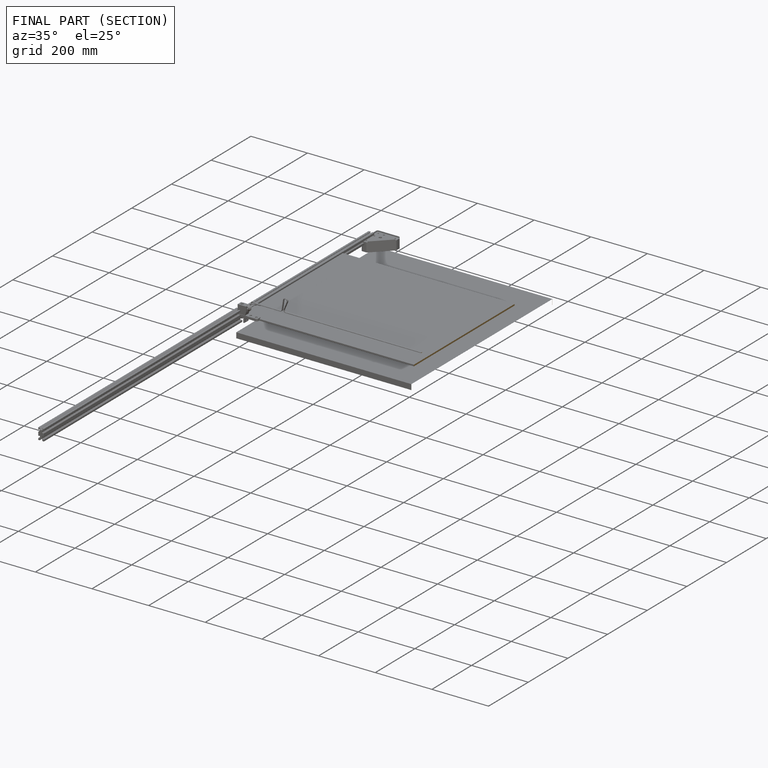
[diagram: finished part — half-section view (interior)]
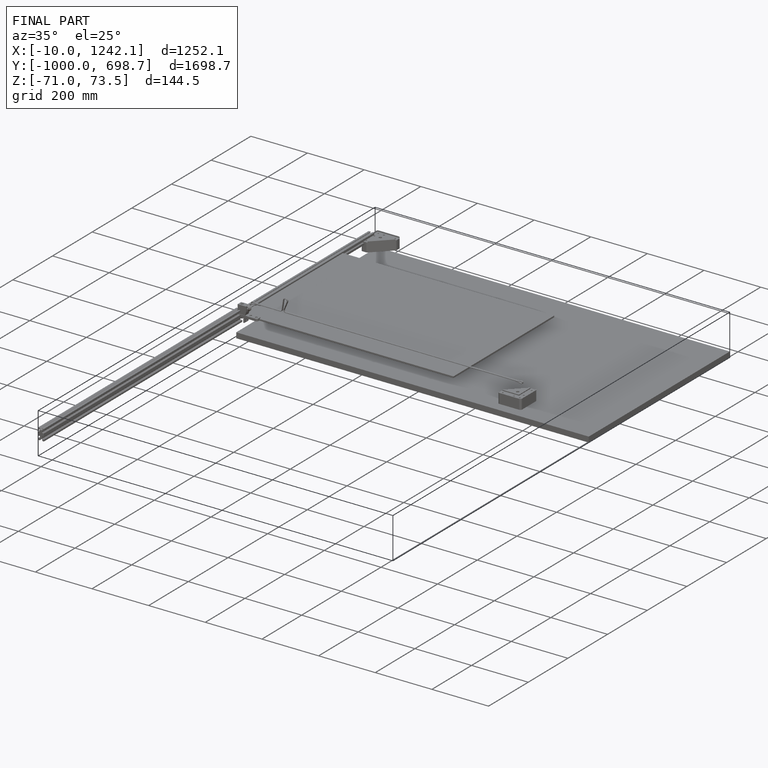
[diagram: finished part — iso view with bounding-box wireframe]
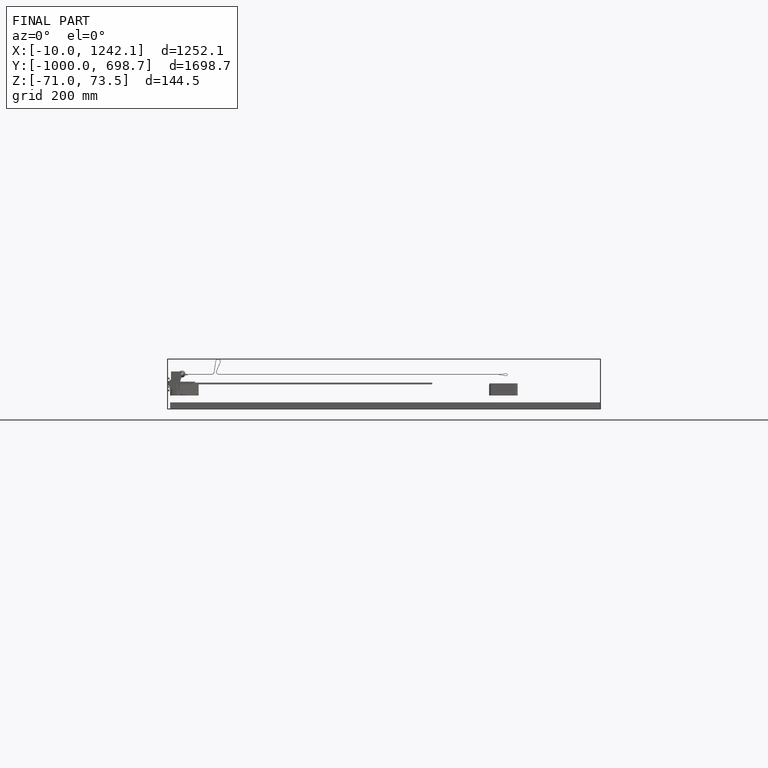
[diagram: finished part — front view with bounding-box wireframe]
